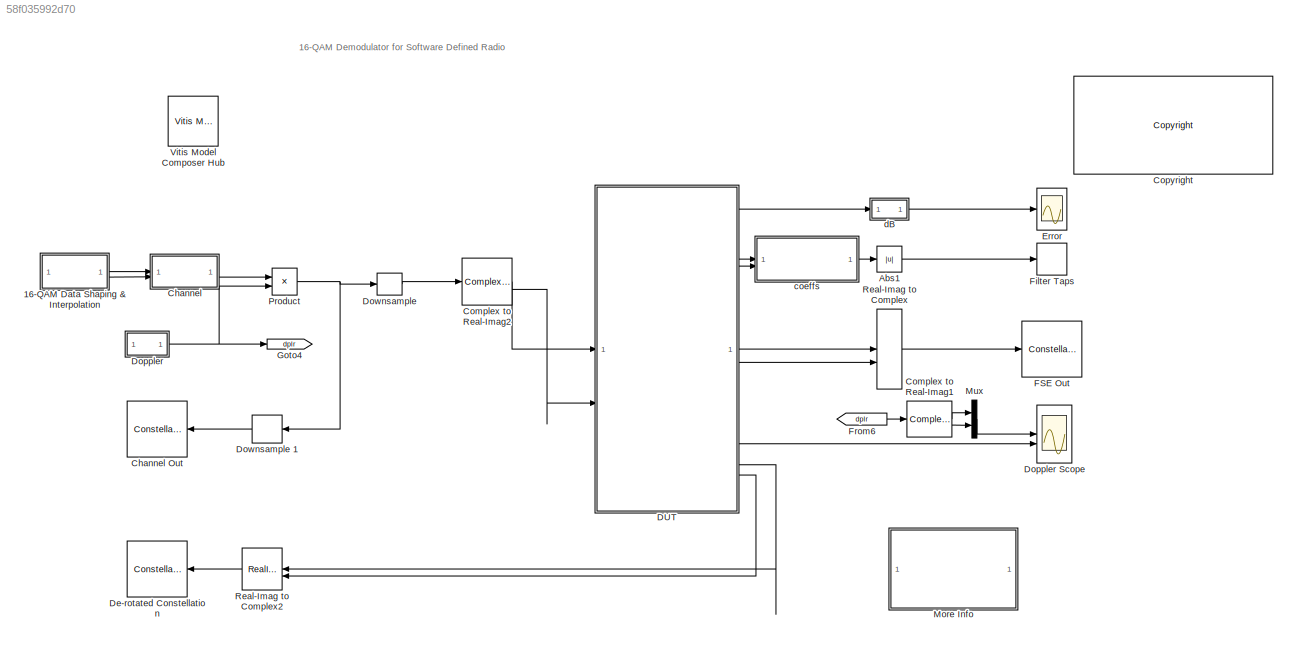
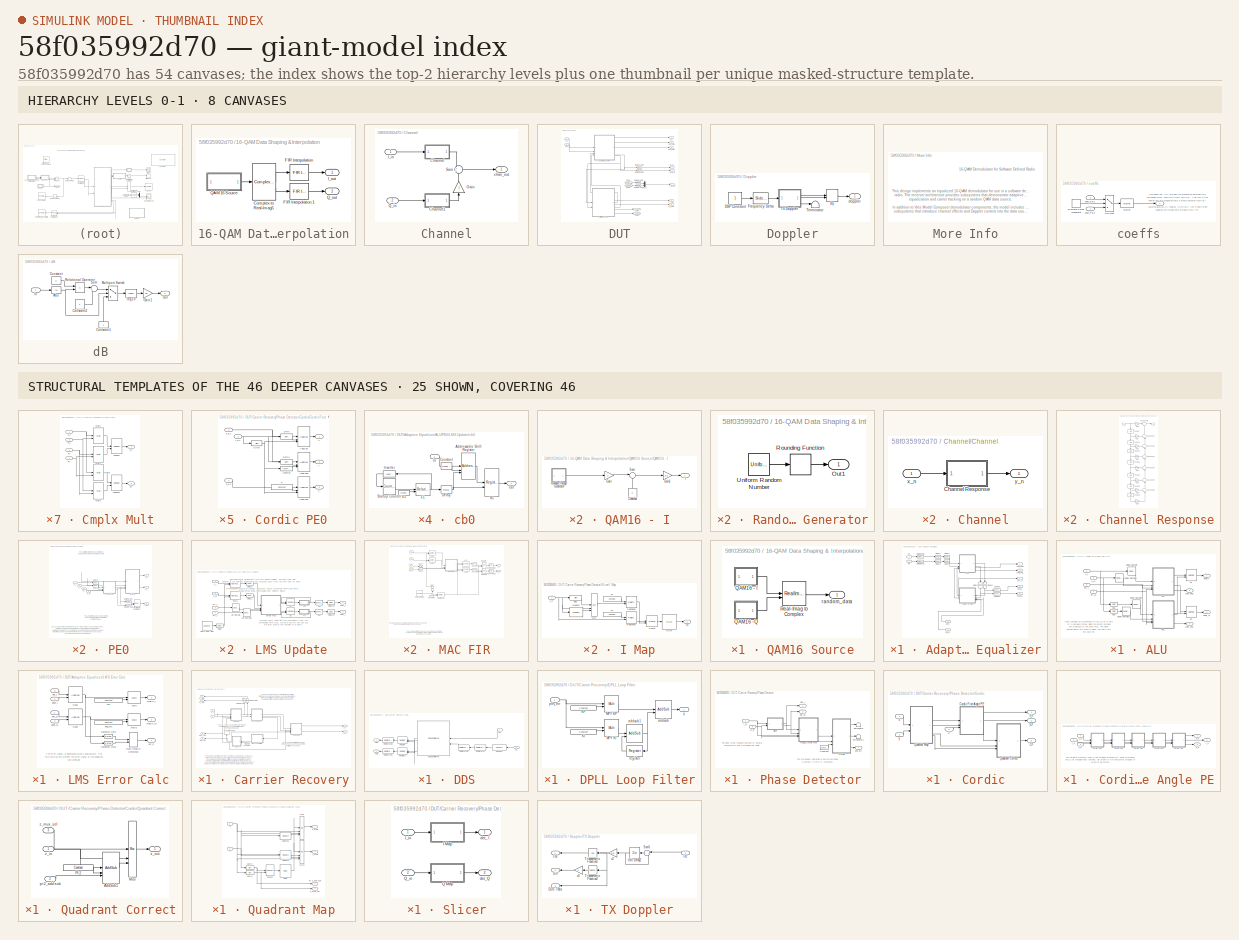
[diagram: thumbnail index - top-2 hierarchy levels (8 canvases) + 25 structural-template representatives of the remaining 46 canvases]
MODEL slx_58f035992d70
KIND model
CONFIG AbsTol = auto
CONFIG EnableMultiTasking = on
CONFIG FixedStep = auto
CONFIG MaxStep = auto
CONFIG MinStep = auto
CONFIG PreLoadFcn = QAM16_PreLoadFcn
CONFIG RelTol = 1e-3
CONFIG SampleTimeConstraint = Unconstrained
CONFIG SolverName = ode45
CONFIG StartTime = 0.0
CONFIG StopTime = 5000
BLOCK [SubSystem] 16-QAM Data Shaping & Interpolation
BLOCK [ComplexToRealImag] 16-QAM Data Shaping & Interpolation/Complex to Real-Imag5
BLOCK [Reference] 16-QAM Data Shaping & Interpolation/FIR Interpolation   REF=dspmlti4/FIR
Interpolation
  NameLocation = top
  SourceBlock = dspmlti4/FIR\nInterpolation
  SourceType = FIR Interpolation
  UserDataPersistent = on
BLOCK [Reference] 16-QAM Data Shaping & Interpolation/FIR Interpolation 1  REF=dspmlti4/FIR
Interpolation
  SourceBlock = dspmlti4/FIR\nInterpolation
  SourceType = FIR Interpolation
  UserDataPersistent = on
BLOCK [Outport] 16-QAM Data Shaping & Interpolation/I_out
  VectorParamsAs1DForOutWhenUnconnected = off
BLOCK [SubSystem] 16-QAM Data Shaping & Interpolation/QAM16 Source
BLOCK [SubSystem] 16-QAM Data Shaping & Interpolation/QAM16 Source/QAM16 - I
BLOCK [Constant] 16-QAM Data Shaping & Interpolation/QAM16 Source/QAM16 - I/Constant
  NameLocation = right
  Value = 3
BLOCK [Gain] 16-QAM Data Shaping & Interpolation/QAM16 Source/QAM16 - I/Gain
  Gain = 2
  OutDataTypeStr = Inherit: Same as input
  ParamDataTypeStr = Inherit: Same as input
  SaturateOnIntegerOverflow = on
BLOCK [Gain] 16-QAM Data Shaping & Interpolation/QAM16 Source/QAM16 - I/Gain1
  Gain = 1/3
  OutDataTypeStr = Inherit: Same as input
  ParamDataTypeStr = Inherit: Same as input
  SaturateOnIntegerOverflow = on
BLOCK [Outport] 16-QAM Data Shaping & Interpolation/QAM16 Source/QAM16 - I/I
  VectorParamsAs1DForOutWhenUnconnected = off
BLOCK [SubSystem] 16-QAM Data Shaping & Interpolation/QAM16 Source/QAM16 - I/Random Integer Generator
BLOCK [Outport] 16-QAM Data Shaping & Interpolation/QAM16 Source/QAM16 - I/Random Integer Generator/Out1
  VectorParamsAs1DForOutWhenUnconnected = off
BLOCK [Rounding] 16-QAM Data Shaping & Interpolation/QAM16 Source/QAM16 - I/Random Integer Generator/Rounding Function
  Operator = round
BLOCK [UniformRandomNumber] 16-QAM Data Shaping & Interpolation/QAM16 Source/QAM16 - I/Random Integer Generator/Uniform Random Number
  Maximum = M-1 + 0.49
  Minimum = -0.49
  SampleTime = Ts
  Seed = seed
BLOCK [Sum] 16-QAM Data Shaping & Interpolation/QAM16 Source/QAM16 - I/Sum
  InputSameDT = on
  Inputs = |+-
  OutDataTypeStr = Inherit: Same as first input
  SaturateOnIntegerOverflow = on
BLOCK [SubSystem] 16-QAM Data Shaping & Interpolation/QAM16 Source/QAM16 -Q
BLOCK [Constant] 16-QAM Data Shaping & Interpolation/QAM16 Source/QAM16 -Q/Constant
  NameLocation = right
  Value = 3
BLOCK [Gain] 16-QAM Data Shaping & Interpolation/QAM16 Source/QAM16 -Q/Gain
  Gain = 2
  OutDataTypeStr = Inherit: Same as input
  ParamDataTypeStr = Inherit: Same as input
  SaturateOnIntegerOverflow = on
BLOCK [Gain] 16-QAM Data Shaping & Interpolation/QAM16 Source/QAM16 -Q/Gain1
  Gain = 1/3
  OutDataTypeStr = Inherit: Same as input
  ParamDataTypeStr = Inherit: Same as input
  SaturateOnIntegerOverflow = on
BLOCK [Outport] 16-QAM Data Shaping & Interpolation/QAM16 Source/QAM16 -Q/Q
  VectorParamsAs1DForOutWhenUnconnected = off
BLOCK [SubSystem] 16-QAM Data Shaping & Interpolation/QAM16 Source/QAM16 -Q/Random Integer Generator
BLOCK [Outport] 16-QAM Data Shaping & Interpolation/QAM16 Source/QAM16 -Q/Random Integer Generator/Out1
  VectorParamsAs1DForOutWhenUnconnected = off
BLOCK [Rounding] 16-QAM Data Shaping & Interpolation/QAM16 Source/QAM16 -Q/Random Integer Generator/Rounding Function
  Operator = round
BLOCK [UniformRandomNumber] 16-QAM Data Shaping & Interpolation/QAM16 Source/QAM16 -Q/Random Integer Generator/Uniform Random Number
  Maximum = M-1 + 0.49
  Minimum = -0.49
  SampleTime = Ts
  Seed = seed
BLOCK [Sum] 16-QAM Data Shaping & Interpolation/QAM16 Source/QAM16 -Q/Sum
  InputSameDT = on
  Inputs = |+-
  OutDataTypeStr = Inherit: Same as first input
  SaturateOnIntegerOverflow = on
BLOCK [RealImagToComplex] 16-QAM Data Shaping & Interpolation/QAM16 Source/Real-Imag to Complex
BLOCK [Outport] 16-QAM Data Shaping & Interpolation/QAM16 Source/random_data
  VectorParamsAs1DForOutWhenUnconnected = off
BLOCK [Outport] 16-QAM Data Shaping & Interpolation/Q_out
  Port = 2
  VectorParamsAs1DForOutWhenUnconnected = off
BLOCK [Abs] Abs1
BLOCK [SubSystem] Channel
BLOCK [ConstellationDiagram] Channel Out
  DefaultConfigurationName = comm.scopes.ConstellationDiagramBlockCfg
  GraphicalSettings = {"GraphicalSettings":{"Style":{"AuxLineProperties":"struct","AxesProperties":"struct","Color":"[1 1 0.0666666666666667]","CurrentConfiguration":"extmgr.ConfigurationSet","GrReferenceConstellation":"16-QAM","LineColor":"[1 1 0.0666666666666667]","LineProperties":"struct","LineStyle":"-","LineWidth":"0.5","Marker":".","MarkerEdgeColor":"auto","MarkerFaceColor":"none","MarkerSize":"6","PhaseOffset":"...<+676ch>
  ReferenceConstellation = 16-QAM
  ScopeFrameLocation = window
  ScopeSpecificationString = comm.scopes.ConstellationDiagramBlockCfg('CurrentConfiguration', extmgr.ConfigurationSet(extmgr.Configuration('Core','General UI',true),extmgr.Configuration('Core','Source UI',true),extmgr.Configuration('Sources','WiredSimulink',true),extmgr.Configuration('Sources','SimulinkEvent',false),extmgr.Configuration('Sources','Simulink',false),extmgr.Configuration('Sources','Streaming',false),extmgr.Confi...<+1850ch>
  ShowReferenceConstellation = off
  SymbolsToDisplay = 1000
  SymbolsToDisplaySource = Property
  Visible = on
  WasSavedAsWebScope = on
  WindowPosition = [510.000000,97.000000,342.000000,335.000000,]
BLOCK [SubSystem] Channel/Channel
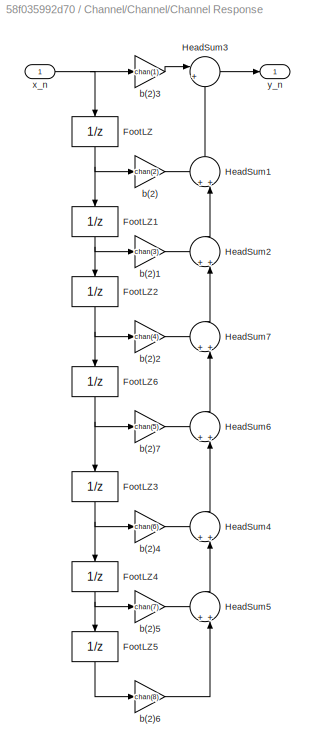
BLOCK [SubSystem] Channel/Channel/Channel Response
BLOCK [UnitDelay] Channel/Channel/Channel Response/FootLZ
  HasFrameUpgradeWarning = on
  NameLocation = right
BLOCK [UnitDelay] Channel/Channel/Channel Response/FootLZ1
  HasFrameUpgradeWarning = on
  NameLocation = right
  SampleTime = -1
BLOCK [UnitDelay] Channel/Channel/Channel Response/FootLZ2
  HasFrameUpgradeWarning = on
  NameLocation = right
  SampleTime = -1
BLOCK [UnitDelay] Channel/Channel/Channel Response/FootLZ3
  HasFrameUpgradeWarning = on
  NameLocation = right
BLOCK [UnitDelay] Channel/Channel/Channel Response/FootLZ4
  HasFrameUpgradeWarning = on
  NameLocation = right
  SampleTime = -1
BLOCK [UnitDelay] Channel/Channel/Channel Response/FootLZ5
  HasFrameUpgradeWarning = on
  NameLocation = right
  SampleTime = -1
BLOCK [UnitDelay] Channel/Channel/Channel Response/FootLZ6
  HasFrameUpgradeWarning = on
  NameLocation = right
  SampleTime = -1
BLOCK [Sum] Channel/Channel/Channel Response/HeadSum1
  InputSameDT = on
  Inputs = ++|
  NameLocation = right
  OutDataTypeStr = Inherit: Same as first input
  SaturateOnIntegerOverflow = on
BLOCK [Sum] Channel/Channel/Channel Response/HeadSum2
  InputSameDT = on
  Inputs = ++|
  NameLocation = right
  OutDataTypeStr = Inherit: Same as first input
  SaturateOnIntegerOverflow = on
BLOCK [Sum] Channel/Channel/Channel Response/HeadSum3
  InputSameDT = on
  Inputs = |++
  OutDataTypeStr = Inherit: Same as first input
  SaturateOnIntegerOverflow = on
BLOCK [Sum] Channel/Channel/Channel Response/HeadSum4
  InputSameDT = on
  Inputs = ++|
  NameLocation = right
  OutDataTypeStr = Inherit: Same as first input
  SaturateOnIntegerOverflow = on
BLOCK [Sum] Channel/Channel/Channel Response/HeadSum5
  InputSameDT = on
  Inputs = ++|
  NameLocation = right
  OutDataTypeStr = Inherit: Same as first input
  SaturateOnIntegerOverflow = on
BLOCK [Sum] Channel/Channel/Channel Response/HeadSum6
  InputSameDT = on
  Inputs = ++|
  NameLocation = right
  OutDataTypeStr = Inherit: Same as first input
  SaturateOnIntegerOverflow = on
BLOCK [Sum] Channel/Channel/Channel Response/HeadSum7
  InputSameDT = on
  Inputs = ++|
  NameLocation = right
  OutDataTypeStr = Inherit: Same as first input
  SaturateOnIntegerOverflow = on
BLOCK [Gain] Channel/Channel/Channel Response/b(2)
  Gain = chan(2)
  OutDataTypeStr = Inherit: Same as input
  ParamDataTypeStr = Inherit: Same as input
  SaturateOnIntegerOverflow = on
BLOCK [Gain] Channel/Channel/Channel Response/b(2)1
  Gain = chan(3)
  OutDataTypeStr = Inherit: Same as input
  ParamDataTypeStr = Inherit: Same as input
  SaturateOnIntegerOverflow = on
BLOCK [Gain] Channel/Channel/Channel Response/b(2)2
  Gain = chan(4)
  OutDataTypeStr = Inherit: Same as input
  ParamDataTypeStr = Inherit: Same as input
  SaturateOnIntegerOverflow = on
BLOCK [Gain] Channel/Channel/Channel Response/b(2)3
  Gain = chan(1)
  OutDataTypeStr = Inherit: Same as input
  ParamDataTypeStr = Inherit: Same as input
  SaturateOnIntegerOverflow = on
BLOCK [Gain] Channel/Channel/Channel Response/b(2)4
  Gain = chan(6)
  OutDataTypeStr = Inherit: Same as input
  ParamDataTypeStr = Inherit: Same as input
  SaturateOnIntegerOverflow = on
BLOCK [Gain] Channel/Channel/Channel Response/b(2)5
  Gain = chan(7)
  OutDataTypeStr = Inherit: Same as input
  ParamDataTypeStr = Inherit: Same as input
  SaturateOnIntegerOverflow = on
BLOCK [Gain] Channel/Channel/Channel Response/b(2)6
  Gain = chan(8)
  OutDataTypeStr = Inherit: Same as input
  ParamDataTypeStr = Inherit: Same as input
  SaturateOnIntegerOverflow = on
BLOCK [Gain] Channel/Channel/Channel Response/b(2)7
  Gain = chan(5)
  OutDataTypeStr = Inherit: Same as input
  ParamDataTypeStr = Inherit: Same as input
  SaturateOnIntegerOverflow = on
BLOCK [Inport] Channel/Channel/Channel Response/x_n
BLOCK [Outport] Channel/Channel/Channel Response/y_n
  VectorParamsAs1DForOutWhenUnconnected = off
BLOCK [Inport] Channel/Channel/x_n
BLOCK [Outport] Channel/Channel/y_n
  VectorParamsAs1DForOutWhenUnconnected = off
BLOCK [SubSystem] Channel/Channel1
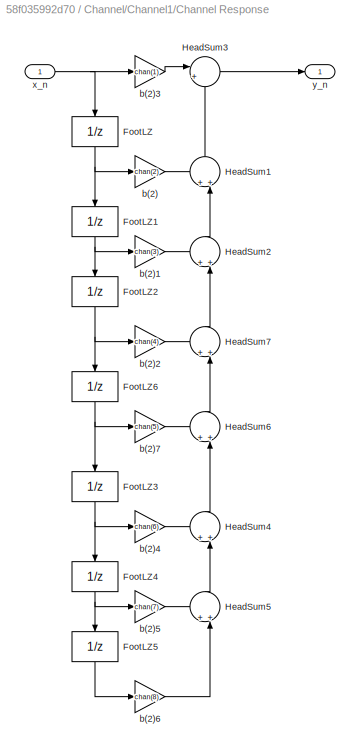
BLOCK [SubSystem] Channel/Channel1/Channel Response
BLOCK [UnitDelay] Channel/Channel1/Channel Response/FootLZ
  HasFrameUpgradeWarning = on
  NameLocation = right
BLOCK [UnitDelay] Channel/Channel1/Channel Response/FootLZ1
  HasFrameUpgradeWarning = on
  NameLocation = right
  SampleTime = -1
BLOCK [UnitDelay] Channel/Channel1/Channel Response/FootLZ2
  HasFrameUpgradeWarning = on
  NameLocation = right
  SampleTime = -1
BLOCK [UnitDelay] Channel/Channel1/Channel Response/FootLZ3
  HasFrameUpgradeWarning = on
  NameLocation = right
BLOCK [UnitDelay] Channel/Channel1/Channel Response/FootLZ4
  HasFrameUpgradeWarning = on
  NameLocation = right
  SampleTime = -1
BLOCK [UnitDelay] Channel/Channel1/Channel Response/FootLZ5
  HasFrameUpgradeWarning = on
  NameLocation = right
  SampleTime = -1
BLOCK [UnitDelay] Channel/Channel1/Channel Response/FootLZ6
  HasFrameUpgradeWarning = on
  NameLocation = right
  SampleTime = -1
BLOCK [Sum] Channel/Channel1/Channel Response/HeadSum1
  InputSameDT = on
  Inputs = ++|
  NameLocation = right
  OutDataTypeStr = Inherit: Same as first input
  SaturateOnIntegerOverflow = on
BLOCK [Sum] Channel/Channel1/Channel Response/HeadSum2
  InputSameDT = on
  Inputs = ++|
  NameLocation = right
  OutDataTypeStr = Inherit: Same as first input
  SaturateOnIntegerOverflow = on
BLOCK [Sum] Channel/Channel1/Channel Response/HeadSum3
  InputSameDT = on
  Inputs = |++
  OutDataTypeStr = Inherit: Same as first input
  SaturateOnIntegerOverflow = on
BLOCK [Sum] Channel/Channel1/Channel Response/HeadSum4
  InputSameDT = on
  Inputs = ++|
  NameLocation = right
  OutDataTypeStr = Inherit: Same as first input
  SaturateOnIntegerOverflow = on
BLOCK [Sum] Channel/Channel1/Channel Response/HeadSum5
  InputSameDT = on
  Inputs = ++|
  NameLocation = right
  OutDataTypeStr = Inherit: Same as first input
  SaturateOnIntegerOverflow = on
BLOCK [Sum] Channel/Channel1/Channel Response/HeadSum6
  InputSameDT = on
  Inputs = ++|
  NameLocation = right
  OutDataTypeStr = Inherit: Same as first input
  SaturateOnIntegerOverflow = on
BLOCK [Sum] Channel/Channel1/Channel Response/HeadSum7
  InputSameDT = on
  Inputs = ++|
  NameLocation = right
  OutDataTypeStr = Inherit: Same as first input
  SaturateOnIntegerOverflow = on
BLOCK [Gain] Channel/Channel1/Channel Response/b(2)
  Gain = chan(2)
  OutDataTypeStr = Inherit: Same as input
  ParamDataTypeStr = Inherit: Same as input
  SaturateOnIntegerOverflow = on
BLOCK [Gain] Channel/Channel1/Channel Response/b(2)1
  Gain = chan(3)
  OutDataTypeStr = Inherit: Same as input
  ParamDataTypeStr = Inherit: Same as input
  SaturateOnIntegerOverflow = on
BLOCK [Gain] Channel/Channel1/Channel Response/b(2)2
  Gain = chan(4)
  OutDataTypeStr = Inherit: Same as input
  ParamDataTypeStr = Inherit: Same as input
  SaturateOnIntegerOverflow = on
BLOCK [Gain] Channel/Channel1/Channel Response/b(2)3
  Gain = chan(1)
  OutDataTypeStr = Inherit: Same as input
  ParamDataTypeStr = Inherit: Same as input
  SaturateOnIntegerOverflow = on
BLOCK [Gain] Channel/Channel1/Channel Response/b(2)4
  Gain = chan(6)
  OutDataTypeStr = Inherit: Same as input
  ParamDataTypeStr = Inherit: Same as input
  SaturateOnIntegerOverflow = on
BLOCK [Gain] Channel/Channel1/Channel Response/b(2)5
  Gain = chan(7)
  OutDataTypeStr = Inherit: Same as input
  ParamDataTypeStr = Inherit: Same as input
  SaturateOnIntegerOverflow = on
BLOCK [Gain] Channel/Channel1/Channel Response/b(2)6
  Gain = chan(8)
  OutDataTypeStr = Inherit: Same as input
  ParamDataTypeStr = Inherit: Same as input
  SaturateOnIntegerOverflow = on
BLOCK [Gain] Channel/Channel1/Channel Response/b(2)7
  Gain = chan(5)
  OutDataTypeStr = Inherit: Same as input
  ParamDataTypeStr = Inherit: Same as input
  SaturateOnIntegerOverflow = on
BLOCK [Inport] Channel/Channel1/Channel Response/x_n
BLOCK [Outport] Channel/Channel1/Channel Response/y_n
  VectorParamsAs1DForOutWhenUnconnected = off
BLOCK [Inport] Channel/Channel1/x_n
BLOCK [Outport] Channel/Channel1/y_n
  VectorParamsAs1DForOutWhenUnconnected = off
BLOCK [Gain] Channel/Gain
  Gain = j
  NameLocation = right
  OutDataTypeStr = Inherit: Same as input
  ParamDataTypeStr = Inherit: Same as input
  SaturateOnIntegerOverflow = on
BLOCK [Inport] Channel/I_in
BLOCK [Inport] Channel/Q_in
  Port = 2
BLOCK [Sum] Channel/Sum
  InputSameDT = on
  OutDataTypeStr = Inherit: Same as first input
  SaturateOnIntegerOverflow = on
BLOCK [Outport] Channel/chan_out
  VectorParamsAs1DForOutWhenUnconnected = off
BLOCK [ComplexToRealImag] Complex to Real-Imag1
  NameLocation = top
BLOCK [ComplexToRealImag] Complex to Real-Imag2
BLOCK [Reference] <copyright redacted>
  SourceBlock = hdlUtilities/<copyright redacted>
  SourceType = Xilinx <copyright redacted>
BLOCK [SubSystem] DUT
BLOCK [SubSystem] DUT/Adaptive Equalizer
BLOCK [SubSystem] DUT/Adaptive Equalizer/ALU
BLOCK [Reference] DUT/Adaptive Equalizer/ALU/Down Sample  REF=hdlBasic/Down Sample
  SourceBlock = hdlBasic/Down Sample
  SourceType = Down Sampler Block
BLOCK [Reference] DUT/Adaptive Equalizer/ALU/Down Sample1  REF=hdlBasic/Down Sample
  SourceBlock = hdlBasic/Down Sample
  SourceType = Down Sampler Block
BLOCK [Reference] DUT/Adaptive Equalizer/ALU/Down Sample2  REF=hdlBasic/Down Sample
  SourceBlock = hdlBasic/Down Sample
  SourceType = Down Sampler Block
BLOCK [Reference] DUT/Adaptive Equalizer/ALU/Down Sample3  REF=hdlBasic/Down Sample
  SourceBlock = hdlBasic/Down Sample
  SourceType = Down Sampler Block
BLOCK [SubSystem] DUT/Adaptive Equalizer/ALU/PE0
BLOCK [Reference] DUT/Adaptive Equalizer/ALU/PE0/Delay3  REF=hdlBasic/Delay
  SourceBlock = hdlBasic/Delay
  SourceType = Delay Block
BLOCK [Reference] DUT/Adaptive Equalizer/ALU/PE0/Delay4  REF=hdlBasic/Delay
  SourceBlock = hdlBasic/Delay
  SourceType = Delay Block
BLOCK [Reference] DUT/Adaptive Equalizer/ALU/PE0/Gateway Out  REF=hdlBasic/Gateway Out
  SourceBlock = hdlBasic/Gateway Out
  SourceType = Gateway Out Block
BLOCK [Reference] DUT/Adaptive Equalizer/ALU/PE0/Gateway Out1  REF=hdlBasic/Gateway Out
  SourceBlock = hdlBasic/Gateway Out
  SourceType = Gateway Out Block
BLOCK [SubSystem] DUT/Adaptive Equalizer/ALU/PE0/LMS Update
BLOCK [SubSystem] DUT/Adaptive Equalizer/ALU/PE0/LMS Update/Cmplx Mult
BLOCK [Reference] DUT/Adaptive Equalizer/ALU/PE0/LMS Update/Cmplx Mult/AddSub  REF=hdlBasic/AddSub
  SourceBlock = hdlBasic/AddSub
  SourceType = Adder/Subtracter Block
BLOCK [Reference] DUT/Adaptive Equalizer/ALU/PE0/LMS Update/Cmplx Mult/AddSub1  REF=hdlBasic/AddSub
  SourceBlock = hdlBasic/AddSub
  SourceType = Adder/Subtracter Block
BLOCK [Reference] DUT/Adaptive Equalizer/ALU/PE0/LMS Update/Cmplx Mult/Mult1  REF=hdlBasic/Mult
  SourceBlock = hdlBasic/Mult
  SourceType = Multiplier Block
BLOCK [Reference] DUT/Adaptive Equalizer/ALU/PE0/LMS Update/Cmplx Mult/Mult2  REF=hdlBasic/Mult
  SourceBlock = hdlBasic/Mult
  SourceType = Multiplier Block
BLOCK [Reference] DUT/Adaptive Equalizer/ALU/PE0/LMS Update/Cmplx Mult/Mult3  REF=hdlBasic/Mult
  SourceBlock = hdlBasic/Mult
  SourceType = Multiplier Block
BLOCK [Reference] DUT/Adaptive Equalizer/ALU/PE0/LMS Update/Cmplx Mult/Mult4  REF=hdlBasic/Mult
  SourceBlock = hdlBasic/Mult
  SourceType = Multiplier Block
BLOCK [Inport] DUT/Adaptive Equalizer/ALU/PE0/LMS Update/Cmplx Mult/a_i
  Port = 2
BLOCK [Inport] DUT/Adaptive Equalizer/ALU/PE0/LMS Update/Cmplx Mult/a_r
BLOCK [Inport] DUT/Adaptive Equalizer/ALU/PE0/LMS Update/Cmplx Mult/b_i
  Port = 4
BLOCK [Inport] DUT/Adaptive Equalizer/ALU/PE0/LMS Update/Cmplx Mult/b_r
  Port = 3
BLOCK [Outport] DUT/Adaptive Equalizer/ALU/PE0/LMS Update/Cmplx Mult/p_i
  Port = 2
  VectorParamsAs1DForOutWhenUnconnected = off
BLOCK [Outport] DUT/Adaptive Equalizer/ALU/PE0/LMS Update/Cmplx Mult/p_r
  VectorParamsAs1DForOutWhenUnconnected = off
BLOCK [Reference] DUT/Adaptive Equalizer/ALU/PE0/LMS Update/Data Addr Gen  REF=hdlBasic/Counter
  SourceBlock = hdlBasic/Counter
  SourceType = Counter Block
BLOCK [Reference] DUT/Adaptive Equalizer/ALU/PE0/LMS Update/Delay  REF=hdlBasic/Delay
  SourceBlock = hdlBasic/Delay
  SourceType = Delay Block
BLOCK [Reference] DUT/Adaptive Equalizer/ALU/PE0/LMS Update/Delay1  REF=hdlBasic/Delay
  SourceBlock = hdlBasic/Delay
  SourceType = Delay Block
BLOCK [Reference] DUT/Adaptive Equalizer/ALU/PE0/LMS Update/Delay19  REF=hdlBasic/Delay
  SourceBlock = hdlBasic/Delay
  SourceType = Delay Block
BLOCK [Reference] DUT/Adaptive Equalizer/ALU/PE0/LMS Update/Delay20  REF=hdlBasic/Delay
  SourceBlock = hdlBasic/Delay
  SourceType = Delay Block
BLOCK [Reference] DUT/Adaptive Equalizer/ALU/PE0/LMS Update/Delay3  REF=hdlBasic/Delay
  SourceBlock = hdlBasic/Delay
  SourceType = Delay Block
BLOCK [Reference] DUT/Adaptive Equalizer/ALU/PE0/LMS Update/RVM0  REF=hdlBasic/Addressable Shift Register
  SourceBlock = hdlBasic/Addressable Shift Register
  SourceType = Addressable Shift Register Block
BLOCK [Reference] DUT/Adaptive Equalizer/ALU/PE0/LMS Update/RVM1  REF=hdlBasic/Addressable Shift Register
  SourceBlock = hdlBasic/Addressable Shift Register
  SourceType = Addressable Shift Register Block
BLOCK [Reference] DUT/Adaptive Equalizer/ALU/PE0/LMS Update/Up Sample  REF=hdlBasic/Up Sample
  SourceBlock = hdlBasic/Up Sample
  SourceType = Up Sampler Block
BLOCK [Reference] DUT/Adaptive Equalizer/ALU/PE0/LMS Update/Up Sample1  REF=hdlBasic/Up Sample
  SourceBlock = hdlBasic/Up Sample
  SourceType = Up Sampler Block
BLOCK [Reference] DUT/Adaptive Equalizer/ALU/PE0/LMS Update/a1  REF=hdlBasic/AddSub
  NameLocation = top
  SourceBlock = hdlBasic/AddSub
  SourceType = Adder/Subtracter Block
BLOCK [Reference] DUT/Adaptive Equalizer/ALU/PE0/LMS Update/a2  REF=hdlBasic/AddSub
  NameLocation = top
  SourceBlock = hdlBasic/AddSub
  SourceType = Adder/Subtracter Block
BLOCK [Reference] DUT/Adaptive Equalizer/ALU/PE0/LMS Update/c3  REF=hdlBasic/Convert
  NameLocation = top
  SourceBlock = hdlBasic/Convert
  SourceType = Type Converter Block
BLOCK [Reference] DUT/Adaptive Equalizer/ALU/PE0/LMS Update/c4  REF=hdlBasic/Convert
  SourceBlock = hdlBasic/Convert
  SourceType = Type Converter Block
BLOCK [SubSystem] DUT/Adaptive Equalizer/ALU/PE0/LMS Update/cb0
BLOCK [Reference] DUT/Adaptive Equalizer/ALU/PE0/LMS Update/cb0/Addressable Shift Register  REF=hdlBasic/Addressable Shift Register
  SourceBlock = hdlBasic/Addressable Shift Register
  SourceType = Addressable Shift Register Block
BLOCK [Reference] DUT/Adaptive Equalizer/ALU/PE0/LMS Update/cb0/Constant  REF=hdlBasic/Constant
  SourceBlock = hdlBasic/Constant
  SourceType = Constant Block Block
BLOCK [Reference] DUT/Adaptive Equalizer/ALU/PE0/LMS Update/cb0/Delay  REF=hdlBasic/Delay
  SourceBlock = hdlBasic/Delay
  SourceType = Delay Block
BLOCK [Reference] DUT/Adaptive Equalizer/ALU/PE0/LMS Update/cb0/F1  REF=hdlBasic/Relational
  SourceBlock = hdlBasic/Relational
  SourceType = Arithmetic Relational Operator Block
BLOCK [Inport] DUT/Adaptive Equalizer/ALU/PE0/LMS Update/cb0/In
BLOCK [Reference] DUT/Adaptive Equalizer/ALU/PE0/LMS Update/cb0/Inverter  REF=hdlBasic/Inverter
  NameLocation = top
  SourceBlock = hdlBasic/Inverter
  SourceType = Inverter Block
BLOCK [Reference] DUT/Adaptive Equalizer/ALU/PE0/LMS Update/cb0/K1  REF=hdlBasic/Constant
  SourceBlock = hdlBasic/Constant
  SourceType = Constant Block Block
BLOCK [Outport] DUT/Adaptive Equalizer/ALU/PE0/LMS Update/cb0/Out
  VectorParamsAs1DForOutWhenUnconnected = off
BLOCK [Reference] DUT/Adaptive Equalizer/ALU/PE0/LMS Update/cb0/R5  REF=hdlBasic/Register
  SourceBlock = hdlBasic/Register
  SourceType = Register Block
BLOCK [Reference] DUT/Adaptive Equalizer/ALU/PE0/LMS Update/cb0/Startup Counter  REF=hdlBasic/Counter
  SourceBlock = hdlBasic/Counter
  SourceType = Counter Block
BLOCK [SubSystem] DUT/Adaptive Equalizer/ALU/PE0/LMS Update/cb1
BLOCK [Reference] DUT/Adaptive Equalizer/ALU/PE0/LMS Update/cb1/Addressable Shift Register  REF=hdlBasic/Addressable Shift Register
  SourceBlock = hdlBasic/Addressable Shift Register
  SourceType = Addressable Shift Register Block
BLOCK [Reference] DUT/Adaptive Equalizer/ALU/PE0/LMS Update/cb1/Constant  REF=hdlBasic/Constant
  SourceBlock = hdlBasic/Constant
  SourceType = Constant Block Block
BLOCK [Reference] DUT/Adaptive Equalizer/ALU/PE0/LMS Update/cb1/Delay  REF=hdlBasic/Delay
  SourceBlock = hdlBasic/Delay
  SourceType = Delay Block
BLOCK [Reference] DUT/Adaptive Equalizer/ALU/PE0/LMS Update/cb1/F1  REF=hdlBasic/Relational
  SourceBlock = hdlBasic/Relational
  SourceType = Arithmetic Relational Operator Block
BLOCK [Inport] DUT/Adaptive Equalizer/ALU/PE0/LMS Update/cb1/In
BLOCK [Reference] DUT/Adaptive Equalizer/ALU/PE0/LMS Update/cb1/Inverter  REF=hdlBasic/Inverter
  NameLocation = top
  SourceBlock = hdlBasic/Inverter
  SourceType = Inverter Block
BLOCK [Reference] DUT/Adaptive Equalizer/ALU/PE0/LMS Update/cb1/K1  REF=hdlBasic/Constant
  SourceBlock = hdlBasic/Constant
  SourceType = Constant Block Block
BLOCK [Outport] DUT/Adaptive Equalizer/ALU/PE0/LMS Update/cb1/Out
  VectorParamsAs1DForOutWhenUnconnected = off
BLOCK [Reference] DUT/Adaptive Equalizer/ALU/PE0/LMS Update/cb1/R5  REF=hdlBasic/Register
  SourceBlock = hdlBasic/Register
  SourceType = Register Block
BLOCK [Reference] DUT/Adaptive Equalizer/ALU/PE0/LMS Update/cb1/Startup Counter  REF=hdlBasic/Counter
  SourceBlock = hdlBasic/Counter
  SourceType = Counter Block
BLOCK [Outport] DUT/Adaptive Equalizer/ALU/PE0/LMS Update/coef_i
  Port = 2
  VectorParamsAs1DForOutWhenUnconnected = off
BLOCK [Outport] DUT/Adaptive Equalizer/ALU/PE0/LMS Update/coef_r
  VectorParamsAs1DForOutWhenUnconnected = off
BLOCK [Inport] DUT/Adaptive Equalizer/ALU/PE0/LMS Update/err_i
  Port = 4
BLOCK [Inport] DUT/Adaptive Equalizer/ALU/PE0/LMS Update/err_r
  NameLocation = top
  Port = 3
BLOCK [Inport] DUT/Adaptive Equalizer/ALU/PE0/LMS Update/x_I
BLOCK [Inport] DUT/Adaptive Equalizer/ALU/PE0/LMS Update/x_Q
  Port = 2
BLOCK [SubSystem] DUT/Adaptive Equalizer/ALU/PE0/MAC FIR
BLOCK [Reference] DUT/Adaptive Equalizer/ALU/PE0/MAC FIR/ASR1  REF=hdlBasic/Addressable Shift Register
  SourceBlock = hdlBasic/Addressable Shift Register
  SourceType = Addressable Shift Register Block
BLOCK [Reference] DUT/Adaptive Equalizer/ALU/PE0/MAC FIR/ASR2  REF=hdlBasic/Addressable Shift Register
  SourceBlock = hdlBasic/Addressable Shift Register
  SourceType = Addressable Shift Register Block
BLOCK [Reference] DUT/Adaptive Equalizer/ALU/PE0/MAC FIR/Accr  REF=hdlBasic/Accumulator
  NameLocation = top
  SourceBlock = hdlBasic/Accumulator
  SourceType = Accumulator Block
BLOCK [Reference] DUT/Adaptive Equalizer/ALU/PE0/MAC FIR/Accr1  REF=hdlBasic/Accumulator
  NameLocation = top
  SourceBlock = hdlBasic/Accumulator
  SourceType = Accumulator Block
BLOCK [SubSystem] DUT/Adaptive Equalizer/ALU/PE0/MAC FIR/Cmplx Mult
BLOCK [Reference] DUT/Adaptive Equalizer/ALU/PE0/MAC FIR/Cmplx Mult/AddSub  REF=hdlBasic/AddSub
  SourceBlock = hdlBasic/AddSub
  SourceType = Adder/Subtracter Block
BLOCK [Reference] DUT/Adaptive Equalizer/ALU/PE0/MAC FIR/Cmplx Mult/AddSub1  REF=hdlBasic/AddSub
  SourceBlock = hdlBasic/AddSub
  SourceType = Adder/Subtracter Block
BLOCK [Reference] DUT/Adaptive Equalizer/ALU/PE0/MAC FIR/Cmplx Mult/Mult  REF=hdlBasic/Mult
  SourceBlock = hdlBasic/Mult
  SourceType = Multiplier Block
BLOCK [Reference] DUT/Adaptive Equalizer/ALU/PE0/MAC FIR/Cmplx Mult/Mult1  REF=hdlBasic/Mult
  SourceBlock = hdlBasic/Mult
  SourceType = Multiplier Block
BLOCK [Reference] DUT/Adaptive Equalizer/ALU/PE0/MAC FIR/Cmplx Mult/Mult2  REF=hdlBasic/Mult
  SourceBlock = hdlBasic/Mult
  SourceType = Multiplier Block
BLOCK [Reference] DUT/Adaptive Equalizer/ALU/PE0/MAC FIR/Cmplx Mult/Mult3  REF=hdlBasic/Mult
  SourceBlock = hdlBasic/Mult
  SourceType = Multiplier Block
BLOCK [Inport] DUT/Adaptive Equalizer/ALU/PE0/MAC FIR/Cmplx Mult/a_i
  Port = 2
BLOCK [Inport] DUT/Adaptive Equalizer/ALU/PE0/MAC FIR/Cmplx Mult/a_r
BLOCK [Inport] DUT/Adaptive Equalizer/ALU/PE0/MAC FIR/Cmplx Mult/b_i
  Port = 4
BLOCK [Inport] DUT/Adaptive Equalizer/ALU/PE0/MAC FIR/Cmplx Mult/b_r
  Port = 3
BLOCK [Outport] DUT/Adaptive Equalizer/ALU/PE0/MAC FIR/Cmplx Mult/p_i
  Port = 2
  VectorParamsAs1DForOutWhenUnconnected = off
BLOCK [Outport] DUT/Adaptive Equalizer/ALU/PE0/MAC FIR/Cmplx Mult/p_r
  VectorParamsAs1DForOutWhenUnconnected = off
BLOCK [Reference] DUT/Adaptive Equalizer/ALU/PE0/MAC FIR/Constant1  REF=hdlBasic/Constant
  SourceBlock = hdlBasic/Constant
  SourceType = Constant Block Block
BLOCK [Reference] DUT/Adaptive Equalizer/ALU/PE0/MAC FIR/Convert  REF=hdlBasic/Convert
  SourceBlock = hdlBasic/Convert
  SourceType = Type Converter Block
BLOCK [Reference] DUT/Adaptive Equalizer/ALU/PE0/MAC FIR/Convert1  REF=hdlBasic/Convert
  SourceBlock = hdlBasic/Convert
  SourceType = Type Converter Block
BLOCK [Reference] DUT/Adaptive Equalizer/ALU/PE0/MAC FIR/Data Addr Gen  REF=hdlBasic/Counter
  SourceBlock = hdlBasic/Counter
  SourceType = Counter Block
BLOCK [Reference] DUT/Adaptive Equalizer/ALU/PE0/MAC FIR/Delay  REF=hdlBasic/Delay
  NameLocation = right
  SourceBlock = hdlBasic/Delay
  SourceType = Delay Block
BLOCK [Reference] DUT/Adaptive Equalizer/ALU/PE0/MAC FIR/Delay1  REF=hdlBasic/Delay
  SourceBlock = hdlBasic/Delay
  SourceType = Delay Block
BLOCK [Reference] DUT/Adaptive Equalizer/ALU/PE0/MAC FIR/Delay2  REF=hdlBasic/Delay
  SourceBlock = hdlBasic/Delay
  SourceType = Delay Block
BLOCK [Reference] DUT/Adaptive Equalizer/ALU/PE0/MAC FIR/Down Sample  REF=hdlBasic/Down Sample
  SourceBlock = hdlBasic/Down Sample
  SourceType = Down Sampler Block
BLOCK [Reference] DUT/Adaptive Equalizer/ALU/PE0/MAC FIR/Down Sample1  REF=hdlBasic/Down Sample
  SourceBlock = hdlBasic/Down Sample
  SourceType = Down Sampler Block
BLOCK [Reference] DUT/Adaptive Equalizer/ALU/PE0/MAC FIR/Register  REF=hdlBasic/Register
  SourceBlock = hdlBasic/Register
  SourceType = Register Block
BLOCK [Reference] DUT/Adaptive Equalizer/ALU/PE0/MAC FIR/Register1  REF=hdlBasic/Register
  SourceBlock = hdlBasic/Register
  SourceType = Register Block
BLOCK [Reference] DUT/Adaptive Equalizer/ALU/PE0/MAC FIR/Relational1  REF=hdlBasic/Relational
  SourceBlock = hdlBasic/Relational
  SourceType = Arithmetic Relational Operator Block
BLOCK [Inport] DUT/Adaptive Equalizer/ALU/PE0/MAC FIR/coef_i
  Port = 4
BLOCK [Inport] DUT/Adaptive Equalizer/ALU/PE0/MAC FIR/coef_r
  NameLocation = top
  Port = 3
BLOCK [Inport] DUT/Adaptive Equalizer/ALU/PE0/MAC FIR/x_i
  Port = 2
BLOCK [Inport] DUT/Adaptive Equalizer/ALU/PE0/MAC FIR/x_r
BLOCK [Outport] DUT/Adaptive Equalizer/ALU/PE0/MAC FIR/y_i
  Port = 2
  VectorParamsAs1DForOutWhenUnconnected = off
BLOCK [Outport] DUT/Adaptive Equalizer/ALU/PE0/MAC FIR/y_r
  VectorParamsAs1DForOutWhenUnconnected = off
BLOCK [RealImagToComplex] DUT/Adaptive Equalizer/ALU/PE0/Real-Imag to Complex1
BLOCK [Outport] DUT/Adaptive Equalizer/ALU/PE0/coef
  Port = 3
  VectorParamsAs1DForOutWhenUnconnected = off
BLOCK [Outport] DUT/Adaptive Equalizer/ALU/PE0/d_i
  Port = 2
  VectorParamsAs1DForOutWhenUnconnected = off
BLOCK [Outport] DUT/Adaptive Equalizer/ALU/PE0/d_r
  VectorParamsAs1DForOutWhenUnconnected = off
BLOCK [Inport] DUT/Adaptive Equalizer/ALU/PE0/e_I
  Port = 3
BLOCK [Inport] DUT/Adaptive Equalizer/ALU/PE0/e_Q
  Port = 4
BLOCK [Inport] DUT/Adaptive Equalizer/ALU/PE0/x_i
  Port = 2
BLOCK [Inport] DUT/Adaptive Equalizer/ALU/PE0/x_r
BLOCK [SubSystem] DUT/Adaptive Equalizer/ALU/PE1
BLOCK [Reference] DUT/Adaptive Equalizer/ALU/PE1/Delay1  REF=hdlBasic/Delay
  SourceBlock = hdlBasic/Delay
  SourceType = Delay Block
BLOCK [Reference] DUT/Adaptive Equalizer/ALU/PE1/Delay2  REF=hdlBasic/Delay
  SourceBlock = hdlBasic/Delay
  SourceType = Delay Block
BLOCK [Reference] DUT/Adaptive Equalizer/ALU/PE1/Gateway Out2  REF=hdlBasic/Gateway Out
  SourceBlock = hdlBasic/Gateway Out
  SourceType = Gateway Out Block
BLOCK [Reference] DUT/Adaptive Equalizer/ALU/PE1/Gateway Out3  REF=hdlBasic/Gateway Out
  SourceBlock = hdlBasic/Gateway Out
  SourceType = Gateway Out Block
BLOCK [SubSystem] DUT/Adaptive Equalizer/ALU/PE1/LMS Update
BLOCK [SubSystem] DUT/Adaptive Equalizer/ALU/PE1/LMS Update/Cmplx Mult
BLOCK [Reference] DUT/Adaptive Equalizer/ALU/PE1/LMS Update/Cmplx Mult/AddSub  REF=hdlBasic/AddSub
  SourceBlock = hdlBasic/AddSub
  SourceType = Adder/Subtracter Block
BLOCK [Reference] DUT/Adaptive Equalizer/ALU/PE1/LMS Update/Cmplx Mult/AddSub1  REF=hdlBasic/AddSub
  SourceBlock = hdlBasic/AddSub
  SourceType = Adder/Subtracter Block
BLOCK [Reference] DUT/Adaptive Equalizer/ALU/PE1/LMS Update/Cmplx Mult/Mult1  REF=hdlBasic/Mult
  SourceBlock = hdlBasic/Mult
  SourceType = Multiplier Block
BLOCK [Reference] DUT/Adaptive Equalizer/ALU/PE1/LMS Update/Cmplx Mult/Mult2  REF=hdlBasic/Mult
  SourceBlock = hdlBasic/Mult
  SourceType = Multiplier Block
BLOCK [Reference] DUT/Adaptive Equalizer/ALU/PE1/LMS Update/Cmplx Mult/Mult3  REF=hdlBasic/Mult
  SourceBlock = hdlBasic/Mult
  SourceType = Multiplier Block
BLOCK [Reference] DUT/Adaptive Equalizer/ALU/PE1/LMS Update/Cmplx Mult/Mult4  REF=hdlBasic/Mult
  SourceBlock = hdlBasic/Mult
  SourceType = Multiplier Block
BLOCK [Inport] DUT/Adaptive Equalizer/ALU/PE1/LMS Update/Cmplx Mult/a_i
  Port = 2
BLOCK [Inport] DUT/Adaptive Equalizer/ALU/PE1/LMS Update/Cmplx Mult/a_r
BLOCK [Inport] DUT/Adaptive Equalizer/ALU/PE1/LMS Update/Cmplx Mult/b_i
  Port = 4
BLOCK [Inport] DUT/Adaptive Equalizer/ALU/PE1/LMS Update/Cmplx Mult/b_r
  Port = 3
BLOCK [Outport] DUT/Adaptive Equalizer/ALU/PE1/LMS Update/Cmplx Mult/p_i
  Port = 2
  VectorParamsAs1DForOutWhenUnconnected = off
BLOCK [Outport] DUT/Adaptive Equalizer/ALU/PE1/LMS Update/Cmplx Mult/p_r
  VectorParamsAs1DForOutWhenUnconnected = off
BLOCK [SubSystem] DUT/Adaptive Equalizer/ALU/PE1/LMS Update/Coeff Buffer1
  NameLocation = top
BLOCK [Reference] DUT/Adaptive Equalizer/ALU/PE1/LMS Update/Coeff Buffer1/Addressable Shift Register  REF=hdlBasic/Addressable Shift Register
  SourceBlock = hdlBasic/Addressable Shift Register
  SourceType = Addressable Shift Register Block
BLOCK [Reference] DUT/Adaptive Equalizer/ALU/PE1/LMS Update/Coeff Buffer1/Constant  REF=hdlBasic/Constant
  SourceBlock = hdlBasic/Constant
  SourceType = Constant Block Block
BLOCK [Reference] DUT/Adaptive Equalizer/ALU/PE1/LMS Update/Coeff Buffer1/Delay  REF=hdlBasic/Delay
  SourceBlock = hdlBasic/Delay
  SourceType = Delay Block
BLOCK [Reference] DUT/Adaptive Equalizer/ALU/PE1/LMS Update/Coeff Buffer1/F1  REF=hdlBasic/Relational
  SourceBlock = hdlBasic/Relational
  SourceType = Arithmetic Relational Operator Block
BLOCK [Inport] DUT/Adaptive Equalizer/ALU/PE1/LMS Update/Coeff Buffer1/In
BLOCK [Reference] DUT/Adaptive Equalizer/ALU/PE1/LMS Update/Coeff Buffer1/Inverter  REF=hdlBasic/Inverter
  NameLocation = top
  SourceBlock = hdlBasic/Inverter
  SourceType = Inverter Block
BLOCK [Reference] DUT/Adaptive Equalizer/ALU/PE1/LMS Update/Coeff Buffer1/K1  REF=hdlBasic/Constant
  SourceBlock = hdlBasic/Constant
  SourceType = Constant Block Block
BLOCK [Outport] DUT/Adaptive Equalizer/ALU/PE1/LMS Update/Coeff Buffer1/Out
  VectorParamsAs1DForOutWhenUnconnected = off
BLOCK [Reference] DUT/Adaptive Equalizer/ALU/PE1/LMS Update/Coeff Buffer1/R5  REF=hdlBasic/Register
  SourceBlock = hdlBasic/Register
  SourceType = Register Block
BLOCK [Reference] DUT/Adaptive Equalizer/ALU/PE1/LMS Update/Coeff Buffer1/Startup Counter  REF=hdlBasic/Counter
  SourceBlock = hdlBasic/Counter
  SourceType = Counter Block
BLOCK [SubSystem] DUT/Adaptive Equalizer/ALU/PE1/LMS Update/Coeff Buffer2
  NameLocation = top
BLOCK [Reference] DUT/Adaptive Equalizer/ALU/PE1/LMS Update/Coeff Buffer2/Addressable Shift Register  REF=hdlBasic/Addressable Shift Register
  SourceBlock = hdlBasic/Addressable Shift Register
  SourceType = Addressable Shift Register Block
BLOCK [Reference] DUT/Adaptive Equalizer/ALU/PE1/LMS Update/Coeff Buffer2/Constant  REF=hdlBasic/Constant
  SourceBlock = hdlBasic/Constant
  SourceType = Constant Block Block
BLOCK [Reference] DUT/Adaptive Equalizer/ALU/PE1/LMS Update/Coeff Buffer2/Delay  REF=hdlBasic/Delay
  SourceBlock = hdlBasic/Delay
  SourceType = Delay Block
BLOCK [Reference] DUT/Adaptive Equalizer/ALU/PE1/LMS Update/Coeff Buffer2/F1  REF=hdlBasic/Relational
  SourceBlock = hdlBasic/Relational
  SourceType = Arithmetic Relational Operator Block
BLOCK [Inport] DUT/Adaptive Equalizer/ALU/PE1/LMS Update/Coeff Buffer2/In
BLOCK [Reference] DUT/Adaptive Equalizer/ALU/PE1/LMS Update/Coeff Buffer2/Inverter  REF=hdlBasic/Inverter
  NameLocation = top
  SourceBlock = hdlBasic/Inverter
  SourceType = Inverter Block
BLOCK [Reference] DUT/Adaptive Equalizer/ALU/PE1/LMS Update/Coeff Buffer2/K1  REF=hdlBasic/Constant
  SourceBlock = hdlBasic/Constant
  SourceType = Constant Block Block
BLOCK [Outport] DUT/Adaptive Equalizer/ALU/PE1/LMS Update/Coeff Buffer2/Out
  VectorParamsAs1DForOutWhenUnconnected = off
BLOCK [Reference] DUT/Adaptive Equalizer/ALU/PE1/LMS Update/Coeff Buffer2/R5  REF=hdlBasic/Register
  SourceBlock = hdlBasic/Register
  SourceType = Register Block
BLOCK [Reference] DUT/Adaptive Equalizer/ALU/PE1/LMS Update/Coeff Buffer2/Startup Counter  REF=hdlBasic/Counter
  SourceBlock = hdlBasic/Counter
  SourceType = Counter Block
BLOCK [Reference] DUT/Adaptive Equalizer/ALU/PE1/LMS Update/Data Addr Gen  REF=hdlBasic/Counter
  SourceBlock = hdlBasic/Counter
  SourceType = Counter Block
BLOCK [Reference] DUT/Adaptive Equalizer/ALU/PE1/LMS Update/Delay  REF=hdlBasic/Delay
  SourceBlock = hdlBasic/Delay
  SourceType = Delay Block
BLOCK [Reference] DUT/Adaptive Equalizer/ALU/PE1/LMS Update/Delay1  REF=hdlBasic/Delay
  SourceBlock = hdlBasic/Delay
  SourceType = Delay Block
BLOCK [Reference] DUT/Adaptive Equalizer/ALU/PE1/LMS Update/Delay19  REF=hdlBasic/Delay
  SourceBlock = hdlBasic/Delay
  SourceType = Delay Block
BLOCK [Reference] DUT/Adaptive Equalizer/ALU/PE1/LMS Update/Delay20  REF=hdlBasic/Delay
  SourceBlock = hdlBasic/Delay
  SourceType = Delay Block
BLOCK [Reference] DUT/Adaptive Equalizer/ALU/PE1/LMS Update/Delay3  REF=hdlBasic/Delay
  SourceBlock = hdlBasic/Delay
  SourceType = Delay Block
BLOCK [Reference] DUT/Adaptive Equalizer/ALU/PE1/LMS Update/RVM0  REF=hdlBasic/Addressable Shift Register
  SourceBlock = hdlBasic/Addressable Shift Register
  SourceType = Addressable Shift Register Block
BLOCK [Reference] DUT/Adaptive Equalizer/ALU/PE1/LMS Update/RVM1  REF=hdlBasic/Addressable Shift Register
  SourceBlock = hdlBasic/Addressable Shift Register
  SourceType = Addressable Shift Register Block
BLOCK [Reference] DUT/Adaptive Equalizer/ALU/PE1/LMS Update/Up Sample  REF=hdlBasic/Up Sample
  SourceBlock = hdlBasic/Up Sample
  SourceType = Up Sampler Block
BLOCK [Reference] DUT/Adaptive Equalizer/ALU/PE1/LMS Update/Up Sample1  REF=hdlBasic/Up Sample
  SourceBlock = hdlBasic/Up Sample
  SourceType = Up Sampler Block
BLOCK [Reference] DUT/Adaptive Equalizer/ALU/PE1/LMS Update/a1  REF=hdlBasic/AddSub
  NameLocation = top
  SourceBlock = hdlBasic/AddSub
  SourceType = Adder/Subtracter Block
BLOCK [Reference] DUT/Adaptive Equalizer/ALU/PE1/LMS Update/a2  REF=hdlBasic/AddSub
  NameLocation = top
  SourceBlock = hdlBasic/AddSub
  SourceType = Adder/Subtracter Block
BLOCK [Reference] DUT/Adaptive Equalizer/ALU/PE1/LMS Update/c3  REF=hdlBasic/Convert
  NameLocation = top
  SourceBlock = hdlBasic/Convert
  SourceType = Type Converter Block
BLOCK [Reference] DUT/Adaptive Equalizer/ALU/PE1/LMS Update/c4  REF=hdlBasic/Convert
  SourceBlock = hdlBasic/Convert
  SourceType = Type Converter Block
BLOCK [Outport] DUT/Adaptive Equalizer/ALU/PE1/LMS Update/coef_i
  Port = 2
  VectorParamsAs1DForOutWhenUnconnected = off
BLOCK [Outport] DUT/Adaptive Equalizer/ALU/PE1/LMS Update/coef_r
  VectorParamsAs1DForOutWhenUnconnected = off
BLOCK [Inport] DUT/Adaptive Equalizer/ALU/PE1/LMS Update/err_i
  Port = 4
BLOCK [Inport] DUT/Adaptive Equalizer/ALU/PE1/LMS Update/err_r
  NameLocation = top
  Port = 3
BLOCK [Inport] DUT/Adaptive Equalizer/ALU/PE1/LMS Update/x_I
BLOCK [Inport] DUT/Adaptive Equalizer/ALU/PE1/LMS Update/x_Q
  Port = 2
BLOCK [SubSystem] DUT/Adaptive Equalizer/ALU/PE1/MAC FIR
BLOCK [Reference] DUT/Adaptive Equalizer/ALU/PE1/MAC FIR/ASR1  REF=hdlBasic/Addressable Shift Register
  SourceBlock = hdlBasic/Addressable Shift Register
  SourceType = Addressable Shift Register Block
BLOCK [Reference] DUT/Adaptive Equalizer/ALU/PE1/MAC FIR/ASR2  REF=hdlBasic/Addressable Shift Register
  SourceBlock = hdlBasic/Addressable Shift Register
  SourceType = Addressable Shift Register Block
BLOCK [Reference] DUT/Adaptive Equalizer/ALU/PE1/MAC FIR/Accr  REF=hdlBasic/Accumulator
  NameLocation = top
  SourceBlock = hdlBasic/Accumulator
  SourceType = Accumulator Block
BLOCK [Reference] DUT/Adaptive Equalizer/ALU/PE1/MAC FIR/Accr1  REF=hdlBasic/Accumulator
  NameLocation = top
  SourceBlock = hdlBasic/Accumulator
  SourceType = Accumulator Block
BLOCK [SubSystem] DUT/Adaptive Equalizer/ALU/PE1/MAC FIR/Cmplx Mult
BLOCK [Reference] DUT/Adaptive Equalizer/ALU/PE1/MAC FIR/Cmplx Mult/AddSub  REF=hdlBasic/AddSub
  SourceBlock = hdlBasic/AddSub
  SourceType = Adder/Subtracter Block
BLOCK [Reference] DUT/Adaptive Equalizer/ALU/PE1/MAC FIR/Cmplx Mult/AddSub1  REF=hdlBasic/AddSub
  SourceBlock = hdlBasic/AddSub
  SourceType = Adder/Subtracter Block
BLOCK [Reference] DUT/Adaptive Equalizer/ALU/PE1/MAC FIR/Cmplx Mult/Mult  REF=hdlBasic/Mult
  SourceBlock = hdlBasic/Mult
  SourceType = Multiplier Block
BLOCK [Reference] DUT/Adaptive Equalizer/ALU/PE1/MAC FIR/Cmplx Mult/Mult1  REF=hdlBasic/Mult
  SourceBlock = hdlBasic/Mult
  SourceType = Multiplier Block
BLOCK [Reference] DUT/Adaptive Equalizer/ALU/PE1/MAC FIR/Cmplx Mult/Mult2  REF=hdlBasic/Mult
  SourceBlock = hdlBasic/Mult
  SourceType = Multiplier Block
BLOCK [Reference] DUT/Adaptive Equalizer/ALU/PE1/MAC FIR/Cmplx Mult/Mult3  REF=hdlBasic/Mult
  SourceBlock = hdlBasic/Mult
  SourceType = Multiplier Block
BLOCK [Inport] DUT/Adaptive Equalizer/ALU/PE1/MAC FIR/Cmplx Mult/a_i
  Port = 2
BLOCK [Inport] DUT/Adaptive Equalizer/ALU/PE1/MAC FIR/Cmplx Mult/a_r
BLOCK [Inport] DUT/Adaptive Equalizer/ALU/PE1/MAC FIR/Cmplx Mult/b_i
  Port = 4
BLOCK [Inport] DUT/Adaptive Equalizer/ALU/PE1/MAC FIR/Cmplx Mult/b_r
  Port = 3
BLOCK [Outport] DUT/Adaptive Equalizer/ALU/PE1/MAC FIR/Cmplx Mult/p_i
  Port = 2
  VectorParamsAs1DForOutWhenUnconnected = off
BLOCK [Outport] DUT/Adaptive Equalizer/ALU/PE1/MAC FIR/Cmplx Mult/p_r
  VectorParamsAs1DForOutWhenUnconnected = off
BLOCK [Reference] DUT/Adaptive Equalizer/ALU/PE1/MAC FIR/Constant1  REF=hdlBasic/Constant
  SourceBlock = hdlBasic/Constant
  SourceType = Constant Block Block
BLOCK [Reference] DUT/Adaptive Equalizer/ALU/PE1/MAC FIR/Convert  REF=hdlBasic/Convert
  SourceBlock = hdlBasic/Convert
  SourceType = Type Converter Block
BLOCK [Reference] DUT/Adaptive Equalizer/ALU/PE1/MAC FIR/Convert1  REF=hdlBasic/Convert
  SourceBlock = hdlBasic/Convert
  SourceType = Type Converter Block
BLOCK [Reference] DUT/Adaptive Equalizer/ALU/PE1/MAC FIR/Data Addr Gen  REF=hdlBasic/Counter
  SourceBlock = hdlBasic/Counter
  SourceType = Counter Block
BLOCK [Reference] DUT/Adaptive Equalizer/ALU/PE1/MAC FIR/Delay  REF=hdlBasic/Delay
  NameLocation = right
  SourceBlock = hdlBasic/Delay
  SourceType = Delay Block
BLOCK [Reference] DUT/Adaptive Equalizer/ALU/PE1/MAC FIR/Delay1  REF=hdlBasic/Delay
  SourceBlock = hdlBasic/Delay
  SourceType = Delay Block
BLOCK [Reference] DUT/Adaptive Equalizer/ALU/PE1/MAC FIR/Delay2  REF=hdlBasic/Delay
  SourceBlock = hdlBasic/Delay
  SourceType = Delay Block
BLOCK [Reference] DUT/Adaptive Equalizer/ALU/PE1/MAC FIR/Down Sample  REF=hdlBasic/Down Sample
  SourceBlock = hdlBasic/Down Sample
  SourceType = Down Sampler Block
BLOCK [Reference] DUT/Adaptive Equalizer/ALU/PE1/MAC FIR/Down Sample1  REF=hdlBasic/Down Sample
  SourceBlock = hdlBasic/Down Sample
  SourceType = Down Sampler Block
BLOCK [Reference] DUT/Adaptive Equalizer/ALU/PE1/MAC FIR/Register  REF=hdlBasic/Register
  SourceBlock = hdlBasic/Register
  SourceType = Register Block
BLOCK [Reference] DUT/Adaptive Equalizer/ALU/PE1/MAC FIR/Register1  REF=hdlBasic/Register
  SourceBlock = hdlBasic/Register
  SourceType = Register Block
BLOCK [Reference] DUT/Adaptive Equalizer/ALU/PE1/MAC FIR/Relational1  REF=hdlBasic/Relational
  SourceBlock = hdlBasic/Relational
  SourceType = Arithmetic Relational Operator Block
BLOCK [Inport] DUT/Adaptive Equalizer/ALU/PE1/MAC FIR/coef_i
  Port = 4
BLOCK [Inport] DUT/Adaptive Equalizer/ALU/PE1/MAC FIR/coef_r
  NameLocation = top
  Port = 3
BLOCK [Inport] DUT/Adaptive Equalizer/ALU/PE1/MAC FIR/x_i
  Port = 2
BLOCK [Inport] DUT/Adaptive Equalizer/ALU/PE1/MAC FIR/x_r
BLOCK [Outport] DUT/Adaptive Equalizer/ALU/PE1/MAC FIR/y_i
  Port = 2
  VectorParamsAs1DForOutWhenUnconnected = off
BLOCK [Outport] DUT/Adaptive Equalizer/ALU/PE1/MAC FIR/y_r
  VectorParamsAs1DForOutWhenUnconnected = off
BLOCK [RealImagToComplex] DUT/Adaptive Equalizer/ALU/PE1/Real-Imag to Complex2
BLOCK [Outport] DUT/Adaptive Equalizer/ALU/PE1/coef
  Port = 3
  VectorParamsAs1DForOutWhenUnconnected = off
BLOCK [Outport] DUT/Adaptive Equalizer/ALU/PE1/d_i
  Port = 2
  VectorParamsAs1DForOutWhenUnconnected = off
BLOCK [Outport] DUT/Adaptive Equalizer/ALU/PE1/d_r
  VectorParamsAs1DForOutWhenUnconnected = off
BLOCK [Inport] DUT/Adaptive Equalizer/ALU/PE1/e_I
  Port = 3
BLOCK [Inport] DUT/Adaptive Equalizer/ALU/PE1/e_Q
  Port = 4
BLOCK [Inport] DUT/Adaptive Equalizer/ALU/PE1/x_i
  Port = 2
BLOCK [Inport] DUT/Adaptive Equalizer/ALU/PE1/x_r
BLOCK [Reference] DUT/Adaptive Equalizer/ALU/a1  REF=hdlBasic/AddSub
  SourceBlock = hdlBasic/AddSub
  SourceType = Adder/Subtracter Block
BLOCK [Reference] DUT/Adaptive Equalizer/ALU/a2  REF=hdlBasic/AddSub
  SourceBlock = hdlBasic/AddSub
  SourceType = Adder/Subtracter Block
BLOCK [Outport] DUT/Adaptive Equalizer/ALU/coef_PE0
  Port = 3
  VectorParamsAs1DForOutWhenUnconnected = off
BLOCK [Outport] DUT/Adaptive Equalizer/ALU/coef_PE1
  Port = 4
  VectorParamsAs1DForOutWhenUnconnected = off
BLOCK [Reference] DUT/Adaptive Equalizer/ALU/db1  REF=hdlBasic/Delay
  NameLocation = top
  SourceBlock = hdlBasic/Delay
  SourceType = Delay Block
BLOCK [Reference] DUT/Adaptive Equalizer/ALU/db2  REF=hdlBasic/Delay
  SourceBlock = hdlBasic/Delay
  SourceType = Delay Block
BLOCK [Outport] DUT/Adaptive Equalizer/ALU/dhat_I
  VectorParamsAs1DForOutWhenUnconnected = off
BLOCK [Outport] DUT/Adaptive Equalizer/ALU/dhat_Q
  Port = 2
  VectorParamsAs1DForOutWhenUnconnected = off
BLOCK [Inport] DUT/Adaptive Equalizer/ALU/err_I
  Port = 3
BLOCK [Inport] DUT/Adaptive Equalizer/ALU/err_Q
  Port = 4
BLOCK [Inport] DUT/Adaptive Equalizer/ALU/x_I
BLOCK [Inport] DUT/Adaptive Equalizer/ALU/x_Q
  Port = 2
BLOCK [Reference] DUT/Adaptive Equalizer/CNVRT3  REF=hdlBasic/Convert
  SourceBlock = hdlBasic/Convert
  SourceType = Type Converter Block
BLOCK [Reference] DUT/Adaptive Equalizer/CNVRT4  REF=hdlBasic/Convert
  SourceBlock = hdlBasic/Convert
  SourceType = Type Converter Block
BLOCK [Reference] DUT/Adaptive Equalizer/Delay1  REF=hdlBasic/Delay
  SourceBlock = hdlBasic/Delay
  SourceType = Delay Block
BLOCK [Reference] DUT/Adaptive Equalizer/Delay2  REF=hdlBasic/Delay
  SourceBlock = hdlBasic/Delay
  SourceType = Delay Block
BLOCK [Reference] DUT/Adaptive Equalizer/Delay3  REF=hdlBasic/Delay
  SourceBlock = hdlBasic/Delay
  SourceType = Delay Block
BLOCK [Reference] DUT/Adaptive Equalizer/Delay4  REF=hdlBasic/Delay
  SourceBlock = hdlBasic/Delay
  SourceType = Delay Block
BLOCK [Reference] DUT/Adaptive Equalizer/Delay8  REF=hdlBasic/Delay
  NameLocation = left
  SourceBlock = hdlBasic/Delay
  SourceType = Delay Block
BLOCK [Reference] DUT/Adaptive Equalizer/Delay9  REF=hdlBasic/Delay
  NameLocation = left
  SourceBlock = hdlBasic/Delay
  SourceType = Delay Block
BLOCK [Reference] DUT/Adaptive Equalizer/Gateway In1  REF=hdlBasic/Gateway In
  SourceBlock = hdlBasic/Gateway In
  SourceType = Gateway In Block
BLOCK [Reference] DUT/Adaptive Equalizer/Gateway In5  REF=hdlBasic/Gateway In
  SourceBlock = hdlBasic/Gateway In
  SourceType = Gateway In Block
BLOCK [Inport] DUT/Adaptive Equalizer/In1
BLOCK [Inport] DUT/Adaptive Equalizer/In2
  Port = 2
BLOCK [SubSystem] DUT/Adaptive Equalizer/LMS Error Calc
BLOCK [Reference] DUT/Adaptive Equalizer/LMS Error Calc/Gateway Out4  REF=hdlBasic/Gateway Out
  SourceBlock = hdlBasic/Gateway Out
  SourceType = Gateway Out Block
BLOCK [Reference] DUT/Adaptive Equalizer/LMS Error Calc/Gateway Out5  REF=hdlBasic/Gateway Out
  SourceBlock = hdlBasic/Gateway Out
  SourceType = Gateway Out Block
BLOCK [Reference] DUT/Adaptive Equalizer/LMS Error Calc/Mult  REF=hdlBasic/Mult
  SourceBlock = hdlBasic/Mult
  SourceType = Multiplier Block
BLOCK [Reference] DUT/Adaptive Equalizer/LMS Error Calc/Mult1  REF=hdlBasic/Mult
  SourceBlock = hdlBasic/Mult
  SourceType = Multiplier Block
BLOCK [RealImagToComplex] DUT/Adaptive Equalizer/LMS Error Calc/Real-Imag to Complex2
BLOCK [Reference] DUT/Adaptive Equalizer/LMS Error Calc/Sub1  REF=hdlBasic/AddSub
  SourceBlock = hdlBasic/AddSub
  SourceType = Adder/Subtracter Block
BLOCK [Reference] DUT/Adaptive Equalizer/LMS Error Calc/Sub2  REF=hdlBasic/AddSub
  SourceBlock = hdlBasic/AddSub
  SourceType = Adder/Subtracter Block
BLOCK [Inport] DUT/Adaptive Equalizer/LMS Error Calc/det_I
  NameLocation = top
  Port = 3
BLOCK [Inport] DUT/Adaptive Equalizer/LMS Error Calc/det_Q
  NameLocation = top
  Port = 4
BLOCK [Inport] DUT/Adaptive Equalizer/LMS Error Calc/dhat_I
BLOCK [Inport] DUT/Adaptive Equalizer/LMS Error Calc/dhat_Q
  Port = 2
BLOCK [Outport] DUT/Adaptive Equalizer/LMS Error Calc/err_n
  Port = 3
  VectorParamsAs1DForOutWhenUnconnected = off
BLOCK [Reference] DUT/Adaptive Equalizer/LMS Error Calc/mu  REF=hdlBasic/Constant
  SourceBlock = hdlBasic/Constant
  SourceType = Constant Block Block
BLOCK [Outport] DUT/Adaptive Equalizer/LMS Error Calc/muErr_I
  VectorParamsAs1DForOutWhenUnconnected = off
BLOCK [Outport] DUT/Adaptive Equalizer/LMS Error Calc/muErr_Q
  Port = 2
  VectorParamsAs1DForOutWhenUnconnected = off
BLOCK [Reference] DUT/Adaptive Equalizer/LMS Error Calc/neg_mu  REF=hdlBasic/Constant
  SourceBlock = hdlBasic/Constant
  SourceType = Constant Block Block
BLOCK [Outport] DUT/Adaptive Equalizer/coef_PE0
  Port = 2
BLOCK [Outport] DUT/Adaptive Equalizer/coef_PE1
  Port = 3
BLOCK [Inport] DUT/Adaptive Equalizer/det_I
  Port = 3
BLOCK [Inport] DUT/Adaptive Equalizer/det_Q
  Port = 4
BLOCK [Outport] DUT/Adaptive Equalizer/dhat_I
  Port = 4
BLOCK [Outport] DUT/Adaptive Equalizer/dhat_Q
  Port = 5
BLOCK [Outport] DUT/Adaptive Equalizer/err_n
BLOCK [SubSystem] DUT/Carrier Recovery
BLOCK [SubSystem] DUT/Carrier Recovery/Cmplx Mult
BLOCK [Reference] DUT/Carrier Recovery/Cmplx Mult/AddSub  REF=hdlBasic/AddSub
  SourceBlock = hdlBasic/AddSub
  SourceType = Adder/Subtracter Block
BLOCK [Reference] DUT/Carrier Recovery/Cmplx Mult/AddSub1  REF=hdlBasic/AddSub
  SourceBlock = hdlBasic/AddSub
  SourceType = Adder/Subtracter Block
BLOCK [Reference] DUT/Carrier Recovery/Cmplx Mult/Mult1  REF=hdlBasic/Mult
  SourceBlock = hdlBasic/Mult
  SourceType = Multiplier Block
BLOCK [Reference] DUT/Carrier Recovery/Cmplx Mult/Mult2  REF=hdlBasic/Mult
  SourceBlock = hdlBasic/Mult
  SourceType = Multiplier Block
BLOCK [Reference] DUT/Carrier Recovery/Cmplx Mult/Mult3  REF=hdlBasic/Mult
  SourceBlock = hdlBasic/Mult
  SourceType = Multiplier Block
BLOCK [Reference] DUT/Carrier Recovery/Cmplx Mult/Mult4  REF=hdlBasic/Mult
  SourceBlock = hdlBasic/Mult
  SourceType = Multiplier Block
BLOCK [Inport] DUT/Carrier Recovery/Cmplx Mult/a_i
  Port = 2
BLOCK [Inport] DUT/Carrier Recovery/Cmplx Mult/a_r
BLOCK [Inport] DUT/Carrier Recovery/Cmplx Mult/b_i
  Port = 4
BLOCK [Inport] DUT/Carrier Recovery/Cmplx Mult/b_r
  Port = 3
BLOCK [Outport] DUT/Carrier Recovery/Cmplx Mult/p_i
  Port = 2
  VectorParamsAs1DForOutWhenUnconnected = off
BLOCK [Outport] DUT/Carrier Recovery/Cmplx Mult/p_r
  VectorParamsAs1DForOutWhenUnconnected = off
BLOCK [SubSystem] DUT/Carrier Recovery/Cmplx Mult1
BLOCK [Reference] DUT/Carrier Recovery/Cmplx Mult1/AddSub  REF=hdlBasic/AddSub
  SourceBlock = hdlBasic/AddSub
  SourceType = Adder/Subtracter Block
BLOCK [Reference] DUT/Carrier Recovery/Cmplx Mult1/AddSub1  REF=hdlBasic/AddSub
  SourceBlock = hdlBasic/AddSub
  SourceType = Adder/Subtracter Block
BLOCK [Reference] DUT/Carrier Recovery/Cmplx Mult1/Mult1  REF=hdlBasic/Mult
  SourceBlock = hdlBasic/Mult
  SourceType = Multiplier Block
BLOCK [Reference] DUT/Carrier Recovery/Cmplx Mult1/Mult2  REF=hdlBasic/Mult
  SourceBlock = hdlBasic/Mult
  SourceType = Multiplier Block
BLOCK [Reference] DUT/Carrier Recovery/Cmplx Mult1/Mult3  REF=hdlBasic/Mult
  SourceBlock = hdlBasic/Mult
  SourceType = Multiplier Block
BLOCK [Reference] DUT/Carrier Recovery/Cmplx Mult1/Mult4  REF=hdlBasic/Mult
  SourceBlock = hdlBasic/Mult
  SourceType = Multiplier Block
BLOCK [Inport] DUT/Carrier Recovery/Cmplx Mult1/a_i
  Port = 2
BLOCK [Inport] DUT/Carrier Recovery/Cmplx Mult1/a_r
BLOCK [Inport] DUT/Carrier Recovery/Cmplx Mult1/b_i
  Port = 4
BLOCK [Inport] DUT/Carrier Recovery/Cmplx Mult1/b_r
  Port = 3
BLOCK [Outport] DUT/Carrier Recovery/Cmplx Mult1/p_i
  Port = 2
  VectorParamsAs1DForOutWhenUnconnected = off
BLOCK [Outport] DUT/Carrier Recovery/Cmplx Mult1/p_r
  VectorParamsAs1DForOutWhenUnconnected = off
BLOCK [Reference] DUT/Carrier Recovery/Constant  REF=hdlBasic/Constant
  NameLocation = top
  SourceBlock = hdlBasic/Constant
  SourceType = Constant Block Block
BLOCK [SubSystem] DUT/Carrier Recovery/DDS
BLOCK [Reference] DUT/Carrier Recovery/DDS/Convert  REF=hdlBasic/Convert
  SourceBlock = hdlBasic/Convert
  SourceType = Type Converter Block
BLOCK [Reference] DUT/Carrier Recovery/DDS/DDS Compiler 6.0   REF=hdlDSPIP/DDS Compiler 6.0 
  SourceBlock = hdlDSPIP/DDS Compiler 6.0
  SourceType = DDS Compiler 6.0 Block
BLOCK [Inport] DUT/Carrier Recovery/DDS/In1
BLOCK [Inport] DUT/Carrier Recovery/DDS/In2
  Port = 2
BLOCK [Outport] DUT/Carrier Recovery/DDS/Out1
  VectorParamsAs1DForOutWhenUnconnected = off
BLOCK [Outport] DUT/Carrier Recovery/DDS/Out2
  Port = 2
  VectorParamsAs1DForOutWhenUnconnected = off
BLOCK [Reference] DUT/Carrier Recovery/DDS/Register  REF=hdlBasic/Register
  NameLocation = top
  SourceBlock = hdlBasic/Register
  SourceType = Register Block
BLOCK [Reference] DUT/Carrier Recovery/DDS/Register1  REF=hdlBasic/Register
  NameLocation = top
  SourceBlock = hdlBasic/Register
  SourceType = Register Block
BLOCK [Reference] DUT/Carrier Recovery/DDS/Reinterpret  REF=hdlBasic/Reinterpret
  SourceBlock = hdlBasic/Reinterpret
  SourceType = Type Reinterpreter Block
BLOCK [Reference] DUT/Carrier Recovery/DDS/Reinterpret1  REF=hdlBasic/Reinterpret
  SourceBlock = hdlBasic/Reinterpret
  SourceType = Type Reinterpreter Block
BLOCK [Reference] DUT/Carrier Recovery/DDS/Reinterpret2  REF=hdlBasic/Reinterpret
  SourceBlock = hdlBasic/Reinterpret
  SourceType = Type Reinterpreter Block
BLOCK [Reference] DUT/Carrier Recovery/DDS/Reinterpret3  REF=hdlBasic/Reinterpret
  SourceBlock = hdlBasic/Reinterpret
  SourceType = Type Reinterpreter Block
BLOCK [SubSystem] DUT/Carrier Recovery/DPLL Loop Filter
BLOCK [Reference] DUT/Carrier Recovery/DPLL Loop Filter/KI  REF=hdlBasic/Constant
  Priority = 5
  SourceBlock = hdlBasic/Constant
  SourceType = Constant Block Block
BLOCK [Reference] DUT/Carrier Recovery/DPLL Loop Filter/KP  REF=hdlBasic/Constant
  Priority = 5
  SourceBlock = hdlBasic/Constant
  SourceType = Constant Block Block
BLOCK [Reference] DUT/Carrier Recovery/DPLL Loop Filter/MPY KI  REF=hdlBasic/Mult
  SourceBlock = hdlBasic/Mult
  SourceType = Multiplier Block
BLOCK [Reference] DUT/Carrier Recovery/DPLL Loop Filter/MPY KP  REF=hdlBasic/Mult
  SourceBlock = hdlBasic/Mult
  SourceType = Multiplier Block
BLOCK [Reference] DUT/Carrier Recovery/DPLL Loop Filter/addsub  REF=hdlBasic/AddSub
  SourceBlock = hdlBasic/AddSub
  SourceType = Adder/Subtracter Block
BLOCK [Reference] DUT/Carrier Recovery/DPLL Loop Filter/addsub1  REF=hdlBasic/AddSub
  SourceBlock = hdlBasic/AddSub
  SourceType = Adder/Subtracter Block
BLOCK [Inport] DUT/Carrier Recovery/DPLL Loop Filter/phs_err
BLOCK [Reference] DUT/Carrier Recovery/DPLL Loop Filter/register  REF=hdlBasic/Register
  SourceBlock = hdlBasic/Register
  SourceType = Register Block
BLOCK [Outport] DUT/Carrier Recovery/DPLL Loop Filter/y
  VectorParamsAs1DForOutWhenUnconnected = off
BLOCK [Reference] DUT/Carrier Recovery/Gateway Out4  REF=hdlBasic/Gateway Out
  NameLocation = right
  SourceBlock = hdlBasic/Gateway Out
  SourceType = Gateway Out Block
BLOCK [Reference] DUT/Carrier Recovery/Gateway Out5  REF=hdlBasic/Gateway Out
  NameLocation = right
  SourceBlock = hdlBasic/Gateway Out
  SourceType = Gateway Out Block
BLOCK [Reference] DUT/Carrier Recovery/Negate  REF=hdlBasic/Negate
  NameLocation = right
  SourceBlock = hdlBasic/Negate
  SourceType = Negate Block Block
BLOCK [SubSystem] DUT/Carrier Recovery/Phase Detector
BLOCK [Reference] DUT/Carrier Recovery/Phase Detector/Constant  REF=hdlBasic/Constant
  SourceBlock = hdlBasic/Constant
  SourceType = Constant Block Block
BLOCK [SubSystem] DUT/Carrier Recovery/Phase Detector/Cordic
BLOCK [SubSystem] DUT/Carrier Recovery/Phase Detector/Cordic/Cordic Fine Angle PE
BLOCK [SubSystem] DUT/Carrier Recovery/Phase Detector/Cordic/Cordic Fine Angle PE/Cordic PE0
BLOCK [Reference] DUT/Carrier Recovery/Phase Detector/Cordic/Cordic Fine Angle PE/Cordic PE0/AddSub  REF=hdlBasic/AddSub
  SourceBlock = hdlBasic/AddSub
  SourceType = Adder/Subtracter Block
BLOCK [Reference] DUT/Carrier Recovery/Phase Detector/Cordic/Cordic Fine Angle PE/Cordic PE0/AddSub1  REF=hdlBasic/AddSub
  SourceBlock = hdlBasic/AddSub
  SourceType = Adder/Subtracter Block
BLOCK [Reference] DUT/Carrier Recovery/Phase Detector/Cordic/Cordic Fine Angle PE/Cordic PE0/AddSub2  REF=hdlBasic/AddSub
  SourceBlock = hdlBasic/AddSub
  SourceType = Adder/Subtracter Block
BLOCK [Reference] DUT/Carrier Recovery/Phase Detector/Cordic/Cordic Fine Angle PE/Cordic PE0/Inverter  REF=hdlBasic/Inverter
  SourceBlock = hdlBasic/Inverter
  SourceType = Inverter Block
BLOCK [Reference] DUT/Carrier Recovery/Phase Detector/Cordic/Cordic Fine Angle PE/Cordic PE0/K  REF=hdlBasic/Constant
  SourceBlock = hdlBasic/Constant
  SourceType = Constant Block Block
BLOCK [Reference] DUT/Carrier Recovery/Phase Detector/Cordic/Cordic Fine Angle PE/Cordic PE0/Shift  REF=hdlBasic/Shift
  SourceBlock = hdlBasic/Shift
  SourceType = Binary Shift Operator Block
BLOCK [Reference] DUT/Carrier Recovery/Phase Detector/Cordic/Cordic Fine Angle PE/Cordic PE0/Shift1  REF=hdlBasic/Shift
  SourceBlock = hdlBasic/Shift
  SourceType = Binary Shift Operator Block
BLOCK [Reference] DUT/Carrier Recovery/Phase Detector/Cordic/Cordic Fine Angle PE/Cordic PE0/Slice  REF=hdlBasic/Slice
  SourceBlock = hdlBasic/Slice
  SourceType = Bit Slice Extractor Block
BLOCK [Outport] DUT/Carrier Recovery/Phase Detector/Cordic/Cordic Fine Angle PE/Cordic PE0/x
  VectorParamsAs1DForOutWhenUnconnected = off
BLOCK [Inport] DUT/Carrier Recovery/Phase Detector/Cordic/Cordic Fine Angle PE/Cordic PE0/x_n-1
BLOCK [Outport] DUT/Carrier Recovery/Phase Detector/Cordic/Cordic Fine Angle PE/Cordic PE0/y
  Port = 2
  VectorParamsAs1DForOutWhenUnconnected = off
BLOCK [Inport] DUT/Carrier Recovery/Phase Detector/Cordic/Cordic Fine Angle PE/Cordic PE0/y_n-1
  Port = 2
BLOCK [Outport] DUT/Carrier Recovery/Phase Detector/Cordic/Cordic Fine Angle PE/Cordic PE0/z
  Port = 3
  VectorParamsAs1DForOutWhenUnconnected = off
BLOCK [Inport] DUT/Carrier Recovery/Phase Detector/Cordic/Cordic Fine Angle PE/Cordic PE0/z_n-1
  Port = 3
BLOCK [SubSystem] DUT/Carrier Recovery/Phase Detector/Cordic/Cordic Fine Angle PE/Cordic PE1
BLOCK [Reference] DUT/Carrier Recovery/Phase Detector/Cordic/Cordic Fine Angle PE/Cordic PE1/AddSub  REF=hdlBasic/AddSub
  SourceBlock = hdlBasic/AddSub
  SourceType = Adder/Subtracter Block
BLOCK [Reference] DUT/Carrier Recovery/Phase Detector/Cordic/Cordic Fine Angle PE/Cordic PE1/AddSub1  REF=hdlBasic/AddSub
  SourceBlock = hdlBasic/AddSub
  SourceType = Adder/Subtracter Block
BLOCK [Reference] DUT/Carrier Recovery/Phase Detector/Cordic/Cordic Fine Angle PE/Cordic PE1/AddSub2  REF=hdlBasic/AddSub
  SourceBlock = hdlBasic/AddSub
  SourceType = Adder/Subtracter Block
BLOCK [Reference] DUT/Carrier Recovery/Phase Detector/Cordic/Cordic Fine Angle PE/Cordic PE1/Inverter  REF=hdlBasic/Inverter
  SourceBlock = hdlBasic/Inverter
  SourceType = Inverter Block
BLOCK [Reference] DUT/Carrier Recovery/Phase Detector/Cordic/Cordic Fine Angle PE/Cordic PE1/K  REF=hdlBasic/Constant
  SourceBlock = hdlBasic/Constant
  SourceType = Constant Block Block
BLOCK [Reference] DUT/Carrier Recovery/Phase Detector/Cordic/Cordic Fine Angle PE/Cordic PE1/Shift  REF=hdlBasic/Shift
  SourceBlock = hdlBasic/Shift
  SourceType = Binary Shift Operator Block
BLOCK [Reference] DUT/Carrier Recovery/Phase Detector/Cordic/Cordic Fine Angle PE/Cordic PE1/Shift1  REF=hdlBasic/Shift
  SourceBlock = hdlBasic/Shift
  SourceType = Binary Shift Operator Block
BLOCK [Reference] DUT/Carrier Recovery/Phase Detector/Cordic/Cordic Fine Angle PE/Cordic PE1/Slice  REF=hdlBasic/Slice
  SourceBlock = hdlBasic/Slice
  SourceType = Bit Slice Extractor Block
BLOCK [Outport] DUT/Carrier Recovery/Phase Detector/Cordic/Cordic Fine Angle PE/Cordic PE1/x
  VectorParamsAs1DForOutWhenUnconnected = off
BLOCK [Inport] DUT/Carrier Recovery/Phase Detector/Cordic/Cordic Fine Angle PE/Cordic PE1/x_n-1
BLOCK [Outport] DUT/Carrier Recovery/Phase Detector/Cordic/Cordic Fine Angle PE/Cordic PE1/y
  Port = 2
  VectorParamsAs1DForOutWhenUnconnected = off
BLOCK [Inport] DUT/Carrier Recovery/Phase Detector/Cordic/Cordic Fine Angle PE/Cordic PE1/y_n-1
  Port = 2
BLOCK [Outport] DUT/Carrier Recovery/Phase Detector/Cordic/Cordic Fine Angle PE/Cordic PE1/z
  Port = 3
  VectorParamsAs1DForOutWhenUnconnected = off
BLOCK [Inport] DUT/Carrier Recovery/Phase Detector/Cordic/Cordic Fine Angle PE/Cordic PE1/z_n-1
  Port = 3
BLOCK [SubSystem] DUT/Carrier Recovery/Phase Detector/Cordic/Cordic Fine Angle PE/Cordic PE2
BLOCK [Reference] DUT/Carrier Recovery/Phase Detector/Cordic/Cordic Fine Angle PE/Cordic PE2/AddSub  REF=hdlBasic/AddSub
  SourceBlock = hdlBasic/AddSub
  SourceType = Adder/Subtracter Block
BLOCK [Reference] DUT/Carrier Recovery/Phase Detector/Cordic/Cordic Fine Angle PE/Cordic PE2/AddSub1  REF=hdlBasic/AddSub
  SourceBlock = hdlBasic/AddSub
  SourceType = Adder/Subtracter Block
BLOCK [Reference] DUT/Carrier Recovery/Phase Detector/Cordic/Cordic Fine Angle PE/Cordic PE2/AddSub2  REF=hdlBasic/AddSub
  SourceBlock = hdlBasic/AddSub
  SourceType = Adder/Subtracter Block
BLOCK [Reference] DUT/Carrier Recovery/Phase Detector/Cordic/Cordic Fine Angle PE/Cordic PE2/Inverter  REF=hdlBasic/Inverter
  SourceBlock = hdlBasic/Inverter
  SourceType = Inverter Block
BLOCK [Reference] DUT/Carrier Recovery/Phase Detector/Cordic/Cordic Fine Angle PE/Cordic PE2/K  REF=hdlBasic/Constant
  SourceBlock = hdlBasic/Constant
  SourceType = Constant Block Block
BLOCK [Reference] DUT/Carrier Recovery/Phase Detector/Cordic/Cordic Fine Angle PE/Cordic PE2/Shift  REF=hdlBasic/Shift
  SourceBlock = hdlBasic/Shift
  SourceType = Binary Shift Operator Block
BLOCK [Reference] DUT/Carrier Recovery/Phase Detector/Cordic/Cordic Fine Angle PE/Cordic PE2/Shift1  REF=hdlBasic/Shift
  SourceBlock = hdlBasic/Shift
  SourceType = Binary Shift Operator Block
BLOCK [Reference] DUT/Carrier Recovery/Phase Detector/Cordic/Cordic Fine Angle PE/Cordic PE2/Slice  REF=hdlBasic/Slice
  SourceBlock = hdlBasic/Slice
  SourceType = Bit Slice Extractor Block
BLOCK [Outport] DUT/Carrier Recovery/Phase Detector/Cordic/Cordic Fine Angle PE/Cordic PE2/x
  VectorParamsAs1DForOutWhenUnconnected = off
BLOCK [Inport] DUT/Carrier Recovery/Phase Detector/Cordic/Cordic Fine Angle PE/Cordic PE2/x_n-1
BLOCK [Outport] DUT/Carrier Recovery/Phase Detector/Cordic/Cordic Fine Angle PE/Cordic PE2/y
  Port = 2
  VectorParamsAs1DForOutWhenUnconnected = off
BLOCK [Inport] DUT/Carrier Recovery/Phase Detector/Cordic/Cordic Fine Angle PE/Cordic PE2/y_n-1
  Port = 2
BLOCK [Outport] DUT/Carrier Recovery/Phase Detector/Cordic/Cordic Fine Angle PE/Cordic PE2/z
  Port = 3
  VectorParamsAs1DForOutWhenUnconnected = off
BLOCK [Inport] DUT/Carrier Recovery/Phase Detector/Cordic/Cordic Fine Angle PE/Cordic PE2/z_n-1
  Port = 3
BLOCK [SubSystem] DUT/Carrier Recovery/Phase Detector/Cordic/Cordic Fine Angle PE/Cordic PE3
BLOCK [Reference] DUT/Carrier Recovery/Phase Detector/Cordic/Cordic Fine Angle PE/Cordic PE3/AddSub  REF=hdlBasic/AddSub
  SourceBlock = hdlBasic/AddSub
  SourceType = Adder/Subtracter Block
BLOCK [Reference] DUT/Carrier Recovery/Phase Detector/Cordic/Cordic Fine Angle PE/Cordic PE3/AddSub1  REF=hdlBasic/AddSub
  SourceBlock = hdlBasic/AddSub
  SourceType = Adder/Subtracter Block
BLOCK [Reference] DUT/Carrier Recovery/Phase Detector/Cordic/Cordic Fine Angle PE/Cordic PE3/AddSub2  REF=hdlBasic/AddSub
  SourceBlock = hdlBasic/AddSub
  SourceType = Adder/Subtracter Block
BLOCK [Reference] DUT/Carrier Recovery/Phase Detector/Cordic/Cordic Fine Angle PE/Cordic PE3/Inverter  REF=hdlBasic/Inverter
  SourceBlock = hdlBasic/Inverter
  SourceType = Inverter Block
BLOCK [Reference] DUT/Carrier Recovery/Phase Detector/Cordic/Cordic Fine Angle PE/Cordic PE3/K  REF=hdlBasic/Constant
  SourceBlock = hdlBasic/Constant
  SourceType = Constant Block Block
BLOCK [Reference] DUT/Carrier Recovery/Phase Detector/Cordic/Cordic Fine Angle PE/Cordic PE3/Shift  REF=hdlBasic/Shift
  SourceBlock = hdlBasic/Shift
  SourceType = Binary Shift Operator Block
BLOCK [Reference] DUT/Carrier Recovery/Phase Detector/Cordic/Cordic Fine Angle PE/Cordic PE3/Shift1  REF=hdlBasic/Shift
  SourceBlock = hdlBasic/Shift
  SourceType = Binary Shift Operator Block
BLOCK [Reference] DUT/Carrier Recovery/Phase Detector/Cordic/Cordic Fine Angle PE/Cordic PE3/Slice  REF=hdlBasic/Slice
  SourceBlock = hdlBasic/Slice
  SourceType = Bit Slice Extractor Block
BLOCK [Outport] DUT/Carrier Recovery/Phase Detector/Cordic/Cordic Fine Angle PE/Cordic PE3/x
  VectorParamsAs1DForOutWhenUnconnected = off
BLOCK [Inport] DUT/Carrier Recovery/Phase Detector/Cordic/Cordic Fine Angle PE/Cordic PE3/x_n-1
BLOCK [Outport] DUT/Carrier Recovery/Phase Detector/Cordic/Cordic Fine Angle PE/Cordic PE3/y
  Port = 2
  VectorParamsAs1DForOutWhenUnconnected = off
BLOCK [Inport] DUT/Carrier Recovery/Phase Detector/Cordic/Cordic Fine Angle PE/Cordic PE3/y_n-1
  Port = 2
BLOCK [Outport] DUT/Carrier Recovery/Phase Detector/Cordic/Cordic Fine Angle PE/Cordic PE3/z
  Port = 3
  VectorParamsAs1DForOutWhenUnconnected = off
BLOCK [Inport] DUT/Carrier Recovery/Phase Detector/Cordic/Cordic Fine Angle PE/Cordic PE3/z_n-1
  Port = 3
BLOCK [SubSystem] DUT/Carrier Recovery/Phase Detector/Cordic/Cordic Fine Angle PE/Cordic PE4
BLOCK [Reference] DUT/Carrier Recovery/Phase Detector/Cordic/Cordic Fine Angle PE/Cordic PE4/AddSub  REF=hdlBasic/AddSub
  SourceBlock = hdlBasic/AddSub
  SourceType = Adder/Subtracter Block
BLOCK [Reference] DUT/Carrier Recovery/Phase Detector/Cordic/Cordic Fine Angle PE/Cordic PE4/AddSub1  REF=hdlBasic/AddSub
  SourceBlock = hdlBasic/AddSub
  SourceType = Adder/Subtracter Block
BLOCK [Reference] DUT/Carrier Recovery/Phase Detector/Cordic/Cordic Fine Angle PE/Cordic PE4/AddSub2  REF=hdlBasic/AddSub
  SourceBlock = hdlBasic/AddSub
  SourceType = Adder/Subtracter Block
BLOCK [Reference] DUT/Carrier Recovery/Phase Detector/Cordic/Cordic Fine Angle PE/Cordic PE4/Inverter  REF=hdlBasic/Inverter
  SourceBlock = hdlBasic/Inverter
  SourceType = Inverter Block
BLOCK [Reference] DUT/Carrier Recovery/Phase Detector/Cordic/Cordic Fine Angle PE/Cordic PE4/K  REF=hdlBasic/Constant
  SourceBlock = hdlBasic/Constant
  SourceType = Constant Block Block
BLOCK [Reference] DUT/Carrier Recovery/Phase Detector/Cordic/Cordic Fine Angle PE/Cordic PE4/Shift  REF=hdlBasic/Shift
  SourceBlock = hdlBasic/Shift
  SourceType = Binary Shift Operator Block
BLOCK [Reference] DUT/Carrier Recovery/Phase Detector/Cordic/Cordic Fine Angle PE/Cordic PE4/Shift1  REF=hdlBasic/Shift
  SourceBlock = hdlBasic/Shift
  SourceType = Binary Shift Operator Block
BLOCK [Reference] DUT/Carrier Recovery/Phase Detector/Cordic/Cordic Fine Angle PE/Cordic PE4/Slice  REF=hdlBasic/Slice
  SourceBlock = hdlBasic/Slice
  SourceType = Bit Slice Extractor Block
BLOCK [Outport] DUT/Carrier Recovery/Phase Detector/Cordic/Cordic Fine Angle PE/Cordic PE4/x
  VectorParamsAs1DForOutWhenUnconnected = off
BLOCK [Inport] DUT/Carrier Recovery/Phase Detector/Cordic/Cordic Fine Angle PE/Cordic PE4/x_n-1
BLOCK [Outport] DUT/Carrier Recovery/Phase Detector/Cordic/Cordic Fine Angle PE/Cordic PE4/y
  Port = 2
  VectorParamsAs1DForOutWhenUnconnected = off
BLOCK [Inport] DUT/Carrier Recovery/Phase Detector/Cordic/Cordic Fine Angle PE/Cordic PE4/y_n-1
  Port = 2
BLOCK [Outport] DUT/Carrier Recovery/Phase Detector/Cordic/Cordic Fine Angle PE/Cordic PE4/z
  Port = 3
  VectorParamsAs1DForOutWhenUnconnected = off
BLOCK [Inport] DUT/Carrier Recovery/Phase Detector/Cordic/Cordic Fine Angle PE/Cordic PE4/z_n-1
  Port = 3
BLOCK [Inport] DUT/Carrier Recovery/Phase Detector/Cordic/Cordic Fine Angle PE/x_0
  NameLocation = top
BLOCK [Outport] DUT/Carrier Recovery/Phase Detector/Cordic/Cordic Fine Angle PE/x_n
  NameLocation = top
  VectorParamsAs1DForOutWhenUnconnected = off
BLOCK [Inport] DUT/Carrier Recovery/Phase Detector/Cordic/Cordic Fine Angle PE/y_0
  Port = 2
BLOCK [Outport] DUT/Carrier Recovery/Phase Detector/Cordic/Cordic Fine Angle PE/y_n
  Port = 2
  VectorParamsAs1DForOutWhenUnconnected = off
BLOCK [Inport] DUT/Carrier Recovery/Phase Detector/Cordic/Cordic Fine Angle PE/z_0
  Port = 3
BLOCK [Outport] DUT/Carrier Recovery/Phase Detector/Cordic/Cordic Fine Angle PE/z_n
  Port = 3
  VectorParamsAs1DForOutWhenUnconnected = off
BLOCK [SubSystem] DUT/Carrier Recovery/Phase Detector/Cordic/Quadrant Correct
BLOCK [Reference] DUT/Carrier Recovery/Phase Detector/Cordic/Quadrant Correct/AddSub1  REF=hdlBasic/AddSub
  SourceBlock = hdlBasic/AddSub
  SourceType = Adder/Subtracter Block
BLOCK [Reference] DUT/Carrier Recovery/Phase Detector/Cordic/Quadrant Correct/Mux  REF=hdlBasic/Mux
  SourceBlock = hdlBasic/Mux
  SourceType = Bus Multiplexer Block
BLOCK [Reference] DUT/Carrier Recovery/Phase Detector/Cordic/Quadrant Correct/PI:2  REF=hdlBasic/Constant
  NameLocation = top
  SourceBlock = hdlBasic/Constant
  SourceType = Constant Block Block
BLOCK [Inport] DUT/Carrier Recovery/Phase Detector/Cordic/Quadrant Correct/pi:2_add:sub
  Port = 2
BLOCK [Inport] DUT/Carrier Recovery/Phase Detector/Cordic/Quadrant Correct/z_in
BLOCK [Inport] DUT/Carrier Recovery/Phase Detector/Cordic/Quadrant Correct/z_mux_sel
  Port = 3
BLOCK [Outport] DUT/Carrier Recovery/Phase Detector/Cordic/Quadrant Correct/z_out
  VectorParamsAs1DForOutWhenUnconnected = off
BLOCK [SubSystem] DUT/Carrier Recovery/Phase Detector/Cordic/Quadrant Map
BLOCK [Outport] DUT/Carrier Recovery/Phase Detector/Cordic/Quadrant Map/ PI:2_add:sub
  NameLocation = top
  Port = 3
  VectorParamsAs1DForOutWhenUnconnected = off
BLOCK [Reference] DUT/Carrier Recovery/Phase Detector/Cordic/Quadrant Map/Concat  REF=hdlBasic/Concat
  SourceBlock = hdlBasic/Concat
  SourceType = Bus Concatenator Block
BLOCK [Reference] DUT/Carrier Recovery/Phase Detector/Cordic/Quadrant Map/Mux  REF=hdlBasic/Mux
  SourceBlock = hdlBasic/Mux
  SourceType = Bus Multiplexer Block
BLOCK [Reference] DUT/Carrier Recovery/Phase Detector/Cordic/Quadrant Map/Mux1  REF=hdlBasic/Mux
  SourceBlock = hdlBasic/Mux
  SourceType = Bus Multiplexer Block
BLOCK [Reference] DUT/Carrier Recovery/Phase Detector/Cordic/Quadrant Map/Negate  REF=hdlBasic/Negate
  SourceBlock = hdlBasic/Negate
  SourceType = Negate Block Block
BLOCK [Reference] DUT/Carrier Recovery/Phase Detector/Cordic/Quadrant Map/Negate1  REF=hdlBasic/Negate
  SourceBlock = hdlBasic/Negate
  SourceType = Negate Block Block
BLOCK [Reference] DUT/Carrier Recovery/Phase Detector/Cordic/Quadrant Map/ROM  REF=hdlBasic/ROM
  SourceBlock = hdlBasic/ROM
  SourceType = Single Port Read-Only Memory Block
BLOCK [Reference] DUT/Carrier Recovery/Phase Detector/Cordic/Quadrant Map/sgn(x)  REF=hdlBasic/Slice
  SourceBlock = hdlBasic/Slice
  SourceType = Bit Slice Extractor Block
BLOCK [Reference] DUT/Carrier Recovery/Phase Detector/Cordic/Quadrant Map/sgn(y)  REF=hdlBasic/Slice
  NameLocation = top
  SourceBlock = hdlBasic/Slice
  SourceType = Bit Slice Extractor Block
BLOCK [Inport] DUT/Carrier Recovery/Phase Detector/Cordic/Quadrant Map/x
BLOCK [Outport] DUT/Carrier Recovery/Phase Detector/Cordic/Quadrant Map/x_map
  VectorParamsAs1DForOutWhenUnconnected = off
BLOCK [Inport] DUT/Carrier Recovery/Phase Detector/Cordic/Quadrant Map/y
  Port = 2
BLOCK [Outport] DUT/Carrier Recovery/Phase Detector/Cordic/Quadrant Map/y_map
  Port = 2
  VectorParamsAs1DForOutWhenUnconnected = off
BLOCK [Outport] DUT/Carrier Recovery/Phase Detector/Cordic/Quadrant Map/z_mux_sel
  Port = 4
  VectorParamsAs1DForOutWhenUnconnected = off
BLOCK [Inport] DUT/Carrier Recovery/Phase Detector/Cordic/x
BLOCK [Outport] DUT/Carrier Recovery/Phase Detector/Cordic/x_n
  NameLocation = top
  VectorParamsAs1DForOutWhenUnconnected = off
BLOCK [Inport] DUT/Carrier Recovery/Phase Detector/Cordic/y
  Port = 2
BLOCK [Outport] DUT/Carrier Recovery/Phase Detector/Cordic/y_n
  Port = 2
  VectorParamsAs1DForOutWhenUnconnected = off
BLOCK [Inport] DUT/Carrier Recovery/Phase Detector/Cordic/z
  Port = 3
BLOCK [Outport] DUT/Carrier Recovery/Phase Detector/Cordic/z_n
  Port = 3
  VectorParamsAs1DForOutWhenUnconnected = off
BLOCK [Inport] DUT/Carrier Recovery/Phase Detector/I_in
BLOCK [SubSystem] DUT/Carrier Recovery/Phase Detector/NegB_Cmplx Mult
BLOCK [Reference] DUT/Carrier Recovery/Phase Detector/NegB_Cmplx Mult/AddSub  REF=hdlBasic/AddSub
  SourceBlock = hdlBasic/AddSub
  SourceType = Adder/Subtracter Block
BLOCK [Reference] DUT/Carrier Recovery/Phase Detector/NegB_Cmplx Mult/AddSub1  REF=hdlBasic/AddSub
  SourceBlock = hdlBasic/AddSub
  SourceType = Adder/Subtracter Block
BLOCK [Reference] DUT/Carrier Recovery/Phase Detector/NegB_Cmplx Mult/Mult1  REF=hdlBasic/Mult
  SourceBlock = hdlBasic/Mult
  SourceType = Multiplier Block
BLOCK [Reference] DUT/Carrier Recovery/Phase Detector/NegB_Cmplx Mult/Mult2  REF=hdlBasic/Mult
  SourceBlock = hdlBasic/Mult
  SourceType = Multiplier Block
BLOCK [Reference] DUT/Carrier Recovery/Phase Detector/NegB_Cmplx Mult/Mult3  REF=hdlBasic/Mult
  SourceBlock = hdlBasic/Mult
  SourceType = Multiplier Block
BLOCK [Reference] DUT/Carrier Recovery/Phase Detector/NegB_Cmplx Mult/Mult4  REF=hdlBasic/Mult
  SourceBlock = hdlBasic/Mult
  SourceType = Multiplier Block
BLOCK [Inport] DUT/Carrier Recovery/Phase Detector/NegB_Cmplx Mult/a_i
  Port = 2
BLOCK [Inport] DUT/Carrier Recovery/Phase Detector/NegB_Cmplx Mult/a_r
BLOCK [Inport] DUT/Carrier Recovery/Phase Detector/NegB_Cmplx Mult/b_i
  Port = 4
BLOCK [Inport] DUT/Carrier Recovery/Phase Detector/NegB_Cmplx Mult/b_r
  Port = 3
BLOCK [Outport] DUT/Carrier Recovery/Phase Detector/NegB_Cmplx Mult/p_i
  Port = 2
  VectorParamsAs1DForOutWhenUnconnected = off
BLOCK [Outport] DUT/Carrier Recovery/Phase Detector/NegB_Cmplx Mult/p_r
  VectorParamsAs1DForOutWhenUnconnected = off
BLOCK [Inport] DUT/Carrier Recovery/Phase Detector/Q_in
  Port = 2
BLOCK [SubSystem] DUT/Carrier Recovery/Phase Detector/Slicer
  NameLocation = top
BLOCK [SubSystem] DUT/Carrier Recovery/Phase Detector/Slicer/I Map
BLOCK [Reference] DUT/Carrier Recovery/Phase Detector/Slicer/I Map/Concat  REF=hdlBasic/Concat
  SourceBlock = hdlBasic/Concat
  SourceType = Bus Concatenator Block
BLOCK [Reference] DUT/Carrier Recovery/Phase Detector/Slicer/I Map/Mux  REF=hdlBasic/Mux
  SourceBlock = hdlBasic/Mux
  SourceType = Bus Multiplexer Block
BLOCK [Reference] DUT/Carrier Recovery/Phase Detector/Slicer/I Map/Negate  REF=hdlBasic/Negate
  SourceBlock = hdlBasic/Negate
  SourceType = Negate Block Block
BLOCK [Reference] DUT/Carrier Recovery/Phase Detector/Slicer/I Map/ROM  REF=hdlBasic/ROM
  SourceBlock = hdlBasic/ROM
  SourceType = Single Port Read-Only Memory Block
BLOCK [Reference] DUT/Carrier Recovery/Phase Detector/Slicer/I Map/Relational  REF=hdlBasic/Relational
  SourceBlock = hdlBasic/Relational
  SourceType = Arithmetic Relational Operator Block
BLOCK [Reference] DUT/Carrier Recovery/Phase Detector/Slicer/I Map/Relational1  REF=hdlBasic/Relational
  SourceBlock = hdlBasic/Relational
  SourceType = Arithmetic Relational Operator Block
BLOCK [Reference] DUT/Carrier Recovery/Phase Detector/Slicer/I Map/Slice  REF=hdlBasic/Slice
  NameLocation = top
  SourceBlock = hdlBasic/Slice
  SourceType = Bit Slice Extractor Block
BLOCK [Outport] DUT/Carrier Recovery/Phase Detector/Slicer/I Map/det
  VectorParamsAs1DForOutWhenUnconnected = off
BLOCK [Reference] DUT/Carrier Recovery/Phase Detector/Slicer/I Map/k1  REF=hdlBasic/Constant
  SourceBlock = hdlBasic/Constant
  SourceType = Constant Block Block
BLOCK [Reference] DUT/Carrier Recovery/Phase Detector/Slicer/I Map/k2  REF=hdlBasic/Constant
  SourceBlock = hdlBasic/Constant
  SourceType = Constant Block Block
BLOCK [Inport] DUT/Carrier Recovery/Phase Detector/Slicer/I Map/x_n
BLOCK [Inport] DUT/Carrier Recovery/Phase Detector/Slicer/I_in
BLOCK [SubSystem] DUT/Carrier Recovery/Phase Detector/Slicer/Q Map
BLOCK [Reference] DUT/Carrier Recovery/Phase Detector/Slicer/Q Map/Concat  REF=hdlBasic/Concat
  SourceBlock = hdlBasic/Concat
  SourceType = Bus Concatenator Block
BLOCK [Reference] DUT/Carrier Recovery/Phase Detector/Slicer/Q Map/Mux  REF=hdlBasic/Mux
  SourceBlock = hdlBasic/Mux
  SourceType = Bus Multiplexer Block
BLOCK [Reference] DUT/Carrier Recovery/Phase Detector/Slicer/Q Map/Negate  REF=hdlBasic/Negate
  SourceBlock = hdlBasic/Negate
  SourceType = Negate Block Block
BLOCK [Reference] DUT/Carrier Recovery/Phase Detector/Slicer/Q Map/ROM  REF=hdlBasic/ROM
  SourceBlock = hdlBasic/ROM
  SourceType = Single Port Read-Only Memory Block
BLOCK [Reference] DUT/Carrier Recovery/Phase Detector/Slicer/Q Map/Relational  REF=hdlBasic/Relational
  SourceBlock = hdlBasic/Relational
  SourceType = Arithmetic Relational Operator Block
BLOCK [Reference] DUT/Carrier Recovery/Phase Detector/Slicer/Q Map/Relational1  REF=hdlBasic/Relational
  SourceBlock = hdlBasic/Relational
  SourceType = Arithmetic Relational Operator Block
BLOCK [Reference] DUT/Carrier Recovery/Phase Detector/Slicer/Q Map/Slice  REF=hdlBasic/Slice
  NameLocation = top
  SourceBlock = hdlBasic/Slice
  SourceType = Bit Slice Extractor Block
BLOCK [Outport] DUT/Carrier Recovery/Phase Detector/Slicer/Q Map/det
  VectorParamsAs1DForOutWhenUnconnected = off
BLOCK [Reference] DUT/Carrier Recovery/Phase Detector/Slicer/Q Map/k1  REF=hdlBasic/Constant
  SourceBlock = hdlBasic/Constant
  SourceType = Constant Block Block
BLOCK [Reference] DUT/Carrier Recovery/Phase Detector/Slicer/Q Map/k2  REF=hdlBasic/Constant
  SourceBlock = hdlBasic/Constant
  SourceType = Constant Block Block
BLOCK [Inport] DUT/Carrier Recovery/Phase Detector/Slicer/Q Map/x_n
BLOCK [Inport] DUT/Carrier Recovery/Phase Detector/Slicer/Q_in
  Port = 2
BLOCK [Outport] DUT/Carrier Recovery/Phase Detector/Slicer/det_ I
  VectorParamsAs1DForOutWhenUnconnected = off
BLOCK [Outport] DUT/Carrier Recovery/Phase Detector/Slicer/det_Q
  Port = 2
  VectorParamsAs1DForOutWhenUnconnected = off
BLOCK [Terminator] DUT/Carrier Recovery/Phase Detector/Terminator
BLOCK [Terminator] DUT/Carrier Recovery/Phase Detector/Terminator1
BLOCK [Outport] DUT/Carrier Recovery/Phase Detector/det_I
  NameLocation = top
  VectorParamsAs1DForOutWhenUnconnected = off
BLOCK [Outport] DUT/Carrier Recovery/Phase Detector/det_Q
  Port = 2
  VectorParamsAs1DForOutWhenUnconnected = off
BLOCK [Outport] DUT/Carrier Recovery/Phase Detector/phs_err
  Port = 3
  VectorParamsAs1DForOutWhenUnconnected = off
BLOCK [Inport] DUT/Carrier Recovery/a_i
  Port = 2
BLOCK [Inport] DUT/Carrier Recovery/a_r
BLOCK [Outport] DUT/Carrier Recovery/dds_cos
  Port = 5
BLOCK [Outport] DUT/Carrier Recovery/dds_sin
  Port = 6
BLOCK [Outport] DUT/Carrier Recovery/p_i
  Port = 2
BLOCK [Outport] DUT/Carrier Recovery/p_i_inter
  Port = 4
BLOCK [Outport] DUT/Carrier Recovery/p_r
BLOCK [Outport] DUT/Carrier Recovery/p_r_inter
  Port = 3
BLOCK [From] DUT/From4
  GotoTag = cnvrt_I
BLOCK [From] DUT/From5
  GotoTag = cnvrt_Q
BLOCK [Reference] DUT/Gateway Out1  REF=hdlBasic/Gateway Out
  SourceBlock = hdlBasic/Gateway Out
  SourceType = Gateway Out Block
BLOCK [Reference] DUT/Gateway Out2  REF=hdlBasic/Gateway Out
  SourceBlock = hdlBasic/Gateway Out
  SourceType = Gateway Out Block
BLOCK [Reference] DUT/Gateway Out3  REF=hdlBasic/Gateway Out
  SourceBlock = hdlBasic/Gateway Out
  SourceType = Gateway Out Block
BLOCK [Reference] DUT/Gateway Out9  REF=hdlBasic/Gateway Out
  SourceBlock = hdlBasic/Gateway Out
  SourceType = Gateway Out Block
BLOCK [Goto] DUT/Goto1
  GotoTag = cnvrt_I
BLOCK [Goto] DUT/Goto2
  GotoTag = cnvrt_Q
BLOCK [Outport] DUT/I_Q_mux
  Port = 7
BLOCK [Inport] DUT/In1
BLOCK [Inport] DUT/In2
  Port = 2
BLOCK [Mux] DUT/Mux1
  DisplayOption = bar
  Inputs = 2
BLOCK [Outport] DUT/coef_PE0
  Port = 2
BLOCK [Outport] DUT/coef_PE1
  Port = 3
BLOCK [Outport] DUT/dhat_I
  Port = 4
BLOCK [Outport] DUT/dhat_Q
  Port = 5
BLOCK [Outport] DUT/err_n
BLOCK [Outport] DUT/p_i_inter
  Port = 8
BLOCK [Outport] DUT/p_r_inter
  Port = 6
BLOCK [ConstellationDiagram] De-rotated Constellation
  DefaultConfigurationName = comm.scopes.ConstellationDiagramBlockCfg
  GraphicalSettings = {"GraphicalSettings":{"Style":{"AuxLineProperties":"struct","AxesProperties":"struct","Color":"[1 1 0.0666666666666667]","CurrentConfiguration":"extmgr.ConfigurationSet","GrReferenceConstellation":"16-QAM","LineColor":"[1 1 0.0666666666666667]","LineProperties":"struct","LineStyle":"-","LineWidth":"0.5","Marker":".","MarkerEdgeColor":"auto","MarkerFaceColor":"none","MarkerSize":"6","PhaseOffset":"...<+677ch>
  ReferenceConstellation = 16-QAM
  ScopeFrameLocation = window
  ScopeSpecificationString = comm.scopes.ConstellationDiagramBlockCfg('CurrentConfiguration', extmgr.ConfigurationSet(extmgr.Configuration('Core','General UI',true),extmgr.Configuration('Core','Source UI',true),extmgr.Configuration('Sources','WiredSimulink',true),extmgr.Configuration('Sources','Simulink',false),extmgr.Configuration('Sources','SPTool',false),extmgr.Configuration('Sources','Workspace',false),extmgr.Configuratio...<+1822ch>
  SymbolsToDisplay = 1000
  SymbolsToDisplaySource = Property
  Visible = on
  WasSavedAsWebScope = on
  WindowPosition = [176.000000,360.000000,339.000000,337.000000,]
BLOCK [SubSystem] Doppler
BLOCK [Scope] Doppler Scope
  Floating = off
  NumInputPorts = 2
  ScopeSpecificationString = Simulink.scopes.TimeScopeBlockCfg('CurrentConfiguration', extmgr.ConfigurationSet(extmgr.Configuration('Core','General UI',true),extmgr.Configuration('Sources','WiredSimulink',true,'DataLoggingVariableName','ScopeData1','DataLoggingLimitDataPoints',true,'DataLoggingDecimateData',true,'DataLoggingDecimation','1','DataLoggingSaveFormat','Structure With Time'),extmgr.Configuration('Visuals','Time Dom...<+2306ch>
BLOCK [Constant] Doppler/DSP Constant
  SampleTime = 1
  VectorParams1D = off
BLOCK [Reference] Doppler/Frequency Delta  REF=simulink/Math
Operations/Slider
Gain
  SourceBlock = simulink/Math\nOperations/Slider\nGain
  SourceType = Slider Gain
BLOCK [RealImagToComplex] Doppler/R:I
BLOCK [SubSystem] Doppler/TX Doppler
BLOCK [Outport] Doppler/TX Doppler/Cos
  VectorParamsAs1DForOutWhenUnconnected = off
BLOCK [Outport] Doppler/TX Doppler/DDS Theta
  Port = 3
  VectorParamsAs1DForOutWhenUnconnected = off
BLOCK [Inport] Doppler/TX Doppler/In1
BLOCK [Outport] Doppler/TX Doppler/Sin
  Port = 2
  VectorParamsAs1DForOutWhenUnconnected = off
BLOCK [Sum] Doppler/TX Doppler/Sum5
  InputSameDT = on
  Inputs = |++
  OutDataTypeStr = Inherit: Same as first input
  SaturateOnIntegerOverflow = on
BLOCK [Trigonometry] Doppler/TX Doppler/Trigonometric Function1
  Operator = cos
BLOCK [Trigonometry] Doppler/TX Doppler/Trigonometric Function2
BLOCK [UnitDelay] Doppler/TX Doppler/Unit Delay2
  HasFrameUpgradeWarning = on
BLOCK [Gain] Doppler/TX Doppler/c2
  Gain = 2*pi
  OutDataTypeStr = Inherit: Same as input
  ParamDataTypeStr = Inherit: Same as input
  SaturateOnIntegerOverflow = on
BLOCK [Gain] Doppler/TX Doppler/c3
  OutDataTypeStr = Inherit: Same as input
  ParamDataTypeStr = Inherit: Same as input
  SaturateOnIntegerOverflow = on
BLOCK [Terminator] Doppler/Terminator
BLOCK [Outport] Doppler/doppler
  VectorParamsAs1DForOutWhenUnconnected = off
BLOCK [DownSample] Downsample 
  InputProcessing = Elements as channels (sample based)
  RateOptions = Allow multirate processing
  UserDataPersistent = on
BLOCK [DownSample] Downsample 1
  InputProcessing = Elements as channels (sample based)
  N = 4
  NameLocation = top
  RateOptions = Allow multirate processing
  UserDataPersistent = on
BLOCK [Scope] Error
  Floating = off
  NameLocation = top
  NumInputPorts = 1
  ScopeSpecificationString = Simulink.scopes.TimeScopeBlockCfg('CurrentConfiguration', extmgr.ConfigurationSet(extmgr.Configuration('Core','General UI',true),extmgr.Configuration('Sources','WiredSimulink',true,'DataLoggingLimitDataPoints',true,'DataLoggingDecimateData',true,'DataLoggingDecimation','1','DataLoggingSaveFormat','Structure With Time'),extmgr.Configuration('Visuals','Time Domain',true,'SerializedDisplays',{struct(...<+1486ch>
BLOCK [ConstellationDiagram] FSE Out
  DefaultConfigurationName = comm.scopes.ConstellationDiagramBlockCfg
  GraphicalSettings = {"GraphicalSettings":{"Style":{"AuxLineProperties":"struct","AxesProperties":"struct","Color":"[1 1 0.0666666666666667]","CurrentConfiguration":"extmgr.ConfigurationSet","GrReferenceConstellation":"16-QAM","LineColor":"[1 1 0.0666666666666667]","LineProperties":"struct","LineStyle":"-","LineWidth":"0.5","Marker":".","MarkerEdgeColor":"auto","MarkerFaceColor":"none","MarkerSize":"6","PhaseOffset":"...<+677ch>
  ReferenceConstellation = 16-QAM
  ScopeFrameLocation = window
  ScopeSpecificationString = comm.scopes.ConstellationDiagramBlockCfg('CurrentConfiguration', extmgr.ConfigurationSet(extmgr.Configuration('Core','General UI',true),extmgr.Configuration('Core','Source UI',true),extmgr.Configuration('Sources','WiredSimulink',true),extmgr.Configuration('Sources','SimulinkEvent',false),extmgr.Configuration('Sources','Streaming',false),extmgr.Configuration('Sources','File',false),extmgr.Configura...<+1851ch>
  ShowReferenceConstellation = off
  SymbolsToDisplay = 1000
  SymbolsToDisplaySource = Property
  Visible = on
  WasSavedAsWebScope = on
  WindowPosition = [845.000000,304.000000,340.000000,342.000000,]
BLOCK [ArrayPlot] Filter Taps
  AxesScaling = Manual
  DefaultConfigurationName = dsp.scopes.ArrayPlotBlockSpecification
  GraphicalSettings = {'Style':{'AxesColor':[0,0,0],'LabelsColor':[0.686274509803922,0.686274509803922,0.686274509803922],'LineColor':[[1,1,0.0666666666666667],[66,260,329,270],[66,260,329,270]],'LineStyle':[':'],'LineWidth':[0.75],'Marker':['.',',6,',',',',','none']}}
  MaximizeAxes = On
  PlotType = Line
  ScopeFrameLocation = window
  Visible = on
  WasSavedAsWebScope = on
  WindowPosition = [66.000000,260.000000,329.000000,270.000000,]
  XLabel = Samples
  YLabel = Filter Coefficients
  YLimits = [0.005979,1.0369]
BLOCK [From] From6
  GotoTag = dplr
BLOCK [Goto] Goto4
  GotoTag = dplr
BLOCK [SubSystem] More Info
BLOCK [Mux] Mux
  DisplayOption = bar
  Inputs = 2
BLOCK [Product] Product
  InputSameDT = on
  OutDataTypeStr = Inherit: Same as first input
  SaturateOnIntegerOverflow = on
BLOCK [RealImagToComplex] Real-Imag to Complex
BLOCK [RealImagToComplex] Real-Imag to Complex2
BLOCK [Reference] Vitis Model Composer Hub  REF=vmcUtilities/Vitis Model Composer Hub
  SourceBlock = vmcUtilities/Vitis Model Composer Hub
  SourceType = VMC Hub
  Tag = genX
  UserDataPersistent = on
BLOCK [SubSystem] coeffs
BLOCK [Buffer] coeffs/Buffer
  N = 8
BLOCK [DiscretePulseGenerator] coeffs/Discrete Pulse Generator
  SampleTime = .5
BLOCK [Switch] coeffs/Switch1
  Threshold = .5
BLOCK [Inport] coeffs/coef_PE0
BLOCK [Inport] coeffs/coef_PE1
  Port = 2
BLOCK [Outport] coeffs/coeffs
BLOCK [SubSystem] dB
BLOCK [Abs] dB/Abs
BLOCK [Constant] dB/Constant
  Value = 0
BLOCK [Constant] dB/Constant1
  NameLocation = right
BLOCK [Constant] dB/Constant2
BLOCK [Gain] dB/Gain1
  Gain = 20
  OutDataTypeStr = Inherit: Same as input
  ParamDataTypeStr = Inherit: Same as input
  SaturateOnIntegerOverflow = on
BLOCK [Inport] dB/In
BLOCK [MultiPortSwitch] dB/Multiport Switch
  Inputs = 2
BLOCK [Outport] dB/Out
  VectorParamsAs1DForOutWhenUnconnected = off
BLOCK [RelationalOperator] dB/Relational Operator
  Operator = ==
BLOCK [Sum] dB/Sum
  InputSameDT = on
  Inputs = |++
  OutDataTypeStr = Inherit: Same as first input
  SaturateOnIntegerOverflow = on
BLOCK [Math] dB/log10
  NameLocation = top
  Operator = log10
  SignedPower = on
ANNOTATION (root): 16-QAM Demodulator for Software Defined Radio
ANNOTATION DUT/Adaptive Equalizer/ALU: Input samples are presented to the ALU at a rate of 2 samples/symbol, while the output samples are produced at the baud rate. The Down Sample blocks are used to adjust the data rate into each PE.
ANNOTATION DUT/Adaptive Equalizer/ALU/PE0: Each LMS and FIR have their own local copy of the complex channel data. The reason is hardware performance related, and in particular associated with the desire to pipeline the design to achieve a suitable clock frequency. The memory systems in the FIR and LMS processors are skewed in time with respect to each other. This effectively decouples the processes and permits the filter and LMS engines t...<+23ch>
ANNOTATION DUT/Adaptive Equalizer/ALU/PE0: The LMS error is used in conjunction with delayed input data to update the filter coefficient values.
ANNOTATION DUT/Adaptive Equalizer/ALU/PE0: The LMS filter coefficients and current input data samples are presented to the MAC FIR.
ANNOTATION DUT/Adaptive Equalizer/ALU/PE0/LMS Update: The input data, along with the coefficients from the preceeding time-step, stored in buffers cb1 and cb2 are later used in the complex MAC filters.
ANNOTATION DUT/Adaptive Equalizer/ALU/PE0/LMS Update: This subsystem implements the LMS update engine. The Data Addr Gen counter is the address generator that accesses data from the two (one for each of the in-phase and quadrature signals) regressor vector memories RVM0 and RVM1 implemented using Addressable Shift Register blocks.
ANNOTATION DUT/Adaptive Equalizer/ALU/PE0/MAC FIR: The Data Addr Gen counter generates the address values for the input sample memories, ASR1 and ASR2.
ANNOTATION DUT/Adaptive Equalizer/ALU/PE0/MAC FIR: The sample data from ASR1 and ASR2 are presented to the complex MAC along with the current coefficient data to compute the required convolution.
ANNOTATION DUT/Adaptive Equalizer/LMS Error Calc: The error signal is generated using a subtractors. The two multipliers weight the error signal by the adaption rate constant.
ANNOTATION DUT/Carrier Recovery: Every complex multiplier in the model is implemented using 4 dedicated Virtex-II multipliers and 2 adders.
ANNOTATION DUT/Carrier Recovery: The DPLL employs a proportional plus integral loop filter formed by a scaled digital integrator and a scaled direct path.
ANNOTATION DUT/Carrier Recovery: The Doppler content of the signal means that the equalizer slicer cannot be used to drive the decision directed LMS coefficient update. The required decisions must be supplied by the detector in the carrier recovery loop. Further, these decisions must be available at the same rotation rate, and direction, as the received constellation. To achieve this, the DDS output is conjugated to produce a het...<+115ch>
ANNOTATION DUT/Carrier Recovery: The Phase Detector subsystem strips the modulation from the received signal and produces a signal proportional to the phase difference between the locally generated quadrature carriers and those of the received signal.
ANNOTATION DUT/Carrier Recovery/Phase Detector: The arctangent operation is performed using a custom CORDIC processor.
ANNOTATION DUT/Carrier Recovery/Phase Detector: The slicer circuit consistis primarily of several comparators and a small look-up table.
ANNOTATION DUT/Carrier Recovery/Phase Detector/Cordic/Cordic Fine Angle PE: The CORDIC processor uses a fully unfolded architecture, using 5 iterations and 11-bit precision input samples. Bit-growth to the final output precision of 16-bits is permitted.
ANNOTATION More Info: 16-QAM Demodulator for Software Defined Radio
ANNOTATION More Info: This design implements an equalized 16-QAM demodulator for use in a software defined radio. The receiver architecture provides subsystems that demonstrate adaptive channel equalization and carrier tracking on a random QAM data source. In addition to Vitis Model Composer demodulator components, the model includes Simulink subsystems that introduce channel effects and Doppler content into the data s...<+443ch>
ANNOTATION coeffs: The equalizer ALU divides the processing between two polyphase arms. each with their own PE. The four filter operations are scheduled onto a single complex multiply -accumulate (MAC) engine. Similarly, the 4 coefficient updates are folded onto a single LMS PE.
LINE 16-QAM Data Shaping & Interpolation/Complex to Real-Imag5:1 -> 16-QAM Data Shaping & Interpolation/FIR Interpolation :1
LINE 16-QAM Data Shaping & Interpolation/Complex to Real-Imag5:2 -> 16-QAM Data Shaping & Interpolation/FIR Interpolation 1:1
LINE 16-QAM Data Shaping & Interpolation/FIR Interpolation 1:1 -> 16-QAM Data Shaping & Interpolation/Q_out:1
LINE 16-QAM Data Shaping & Interpolation/FIR Interpolation :1 -> 16-QAM Data Shaping & Interpolation/I_out:1
LINE 16-QAM Data Shaping & Interpolation/QAM16 Source/QAM16 - I/Constant:1 -> 16-QAM Data Shaping & Interpolation/QAM16 Source/QAM16 - I/Sum:2
LINE 16-QAM Data Shaping & Interpolation/QAM16 Source/QAM16 - I/Gain1:1 -> 16-QAM Data Shaping & Interpolation/QAM16 Source/QAM16 - I/I:1
LINE 16-QAM Data Shaping & Interpolation/QAM16 Source/QAM16 - I/Gain:1 -> 16-QAM Data Shaping & Interpolation/QAM16 Source/QAM16 - I/Sum:1
LINE 16-QAM Data Shaping & Interpolation/QAM16 Source/QAM16 - I/Random Integer Generator/Rounding Function:1 -> 16-QAM Data Shaping & Interpolation/QAM16 Source/QAM16 - I/Random Integer Generator/Out1:1
LINE 16-QAM Data Shaping & Interpolation/QAM16 Source/QAM16 - I/Random Integer Generator/Uniform Random Number:1 -> 16-QAM Data Shaping & Interpolation/QAM16 Source/QAM16 - I/Random Integer Generator/Rounding Function:1
LINE 16-QAM Data Shaping & Interpolation/QAM16 Source/QAM16 - I/Random Integer Generator:1 -> 16-QAM Data Shaping & Interpolation/QAM16 Source/QAM16 - I/Gain:1
LINE 16-QAM Data Shaping & Interpolation/QAM16 Source/QAM16 - I/Sum:1 -> 16-QAM Data Shaping & Interpolation/QAM16 Source/QAM16 - I/Gain1:1
LINE 16-QAM Data Shaping & Interpolation/QAM16 Source/QAM16 - I:1 -> 16-QAM Data Shaping & Interpolation/QAM16 Source/Real-Imag to Complex:1
LINE 16-QAM Data Shaping & Interpolation/QAM16 Source/QAM16 -Q/Constant:1 -> 16-QAM Data Shaping & Interpolation/QAM16 Source/QAM16 -Q/Sum:2
LINE 16-QAM Data Shaping & Interpolation/QAM16 Source/QAM16 -Q/Gain1:1 -> 16-QAM Data Shaping & Interpolation/QAM16 Source/QAM16 -Q/Q:1
LINE 16-QAM Data Shaping & Interpolation/QAM16 Source/QAM16 -Q/Gain:1 -> 16-QAM Data Shaping & Interpolation/QAM16 Source/QAM16 -Q/Sum:1
LINE 16-QAM Data Shaping & Interpolation/QAM16 Source/QAM16 -Q/Random Integer Generator/Rounding Function:1 -> 16-QAM Data Shaping & Interpolation/QAM16 Source/QAM16 -Q/Random Integer Generator/Out1:1
LINE 16-QAM Data Shaping & Interpolation/QAM16 Source/QAM16 -Q/Random Integer Generator/Uniform Random Number:1 -> 16-QAM Data Shaping & Interpolation/QAM16 Source/QAM16 -Q/Random Integer Generator/Rounding Function:1
LINE 16-QAM Data Shaping & Interpolation/QAM16 Source/QAM16 -Q/Random Integer Generator:1 -> 16-QAM Data Shaping & Interpolation/QAM16 Source/QAM16 -Q/Gain:1
LINE 16-QAM Data Shaping & Interpolation/QAM16 Source/QAM16 -Q/Sum:1 -> 16-QAM Data Shaping & Interpolation/QAM16 Source/QAM16 -Q/Gain1:1
LINE 16-QAM Data Shaping & Interpolation/QAM16 Source/QAM16 -Q:1 -> 16-QAM Data Shaping & Interpolation/QAM16 Source/Real-Imag to Complex:2
LINE 16-QAM Data Shaping & Interpolation/QAM16 Source/Real-Imag to Complex:1 -> 16-QAM Data Shaping & Interpolation/QAM16 Source/random_data:1
LINE 16-QAM Data Shaping & Interpolation/QAM16 Source:1 -> 16-QAM Data Shaping & Interpolation/Complex to Real-Imag5:1
LINE 16-QAM Data Shaping & Interpolation:1 -> Channel:1
LINE 16-QAM Data Shaping & Interpolation:2 -> Channel:2
LINE Abs1:1 -> Filter Taps:1
NET Channel/Channel/Channel Response/FootLZ1:1 -> Channel/Channel/Channel Response/FootLZ2:1, Channel/Channel/Channel Response/b(2)1:1
NET Channel/Channel/Channel Response/FootLZ2:1 -> Channel/Channel/Channel Response/FootLZ6:1, Channel/Channel/Channel Response/b(2)2:1
NET Channel/Channel/Channel Response/FootLZ3:1 -> Channel/Channel/Channel Response/FootLZ4:1, Channel/Channel/Channel Response/b(2)4:1
NET Channel/Channel/Channel Response/FootLZ4:1 -> Channel/Channel/Channel Response/FootLZ5:1, Channel/Channel/Channel Response/b(2)5:1
LINE Channel/Channel/Channel Response/FootLZ5:1 -> Channel/Channel/Channel Response/b(2)6:1
NET Channel/Channel/Channel Response/FootLZ6:1 -> Channel/Channel/Channel Response/FootLZ3:1, Channel/Channel/Channel Response/b(2)7:1
NET Channel/Channel/Channel Response/FootLZ:1 -> Channel/Channel/Channel Response/FootLZ1:1, Channel/Channel/Channel Response/b(2):1
LINE Channel/Channel/Channel Response/HeadSum1:1 -> Channel/Channel/Channel Response/HeadSum3:2
LINE Channel/Channel/Channel Response/HeadSum2:1 -> Channel/Channel/Channel Response/HeadSum1:2
LINE Channel/Channel/Channel Response/HeadSum3:1 -> Channel/Channel/Channel Response/y_n:1
LINE Channel/Channel/Channel Response/HeadSum4:1 -> Channel/Channel/Channel Response/HeadSum6:2
LINE Channel/Channel/Channel Response/HeadSum5:1 -> Channel/Channel/Channel Response/HeadSum4:2
LINE Channel/Channel/Channel Response/HeadSum6:1 -> Channel/Channel/Channel Response/HeadSum7:2
LINE Channel/Channel/Channel Response/HeadSum7:1 -> Channel/Channel/Channel Response/HeadSum2:2
LINE Channel/Channel/Channel Response/b(2)1:1 -> Channel/Channel/Channel Response/HeadSum2:1
LINE Channel/Channel/Channel Response/b(2)2:1 -> Channel/Channel/Channel Response/HeadSum7:1
LINE Channel/Channel/Channel Response/b(2)3:1 -> Channel/Channel/Channel Response/HeadSum3:1
LINE Channel/Channel/Channel Response/b(2)4:1 -> Channel/Channel/Channel Response/HeadSum4:1
LINE Channel/Channel/Channel Response/b(2)5:1 -> Channel/Channel/Channel Response/HeadSum5:1
LINE Channel/Channel/Channel Response/b(2)6:1 -> Channel/Channel/Channel Response/HeadSum5:2
LINE Channel/Channel/Channel Response/b(2)7:1 -> Channel/Channel/Channel Response/HeadSum6:1
LINE Channel/Channel/Channel Response/b(2):1 -> Channel/Channel/Channel Response/HeadSum1:1
NET Channel/Channel/Channel Response/x_n:1 -> Channel/Channel/Channel Response/FootLZ:1, Channel/Channel/Channel Response/b(2)3:1
LINE Channel/Channel/Channel Response:1 -> Channel/Channel/y_n:1
LINE Channel/Channel/x_n:1 -> Channel/Channel/Channel Response:1
NET Channel/Channel1/Channel Response/FootLZ1:1 -> Channel/Channel1/Channel Response/FootLZ2:1, Channel/Channel1/Channel Response/b(2)1:1
NET Channel/Channel1/Channel Response/FootLZ2:1 -> Channel/Channel1/Channel Response/FootLZ6:1, Channel/Channel1/Channel Response/b(2)2:1
NET Channel/Channel1/Channel Response/FootLZ3:1 -> Channel/Channel1/Channel Response/FootLZ4:1, Channel/Channel1/Channel Response/b(2)4:1
NET Channel/Channel1/Channel Response/FootLZ4:1 -> Channel/Channel1/Channel Response/FootLZ5:1, Channel/Channel1/Channel Response/b(2)5:1
LINE Channel/Channel1/Channel Response/FootLZ5:1 -> Channel/Channel1/Channel Response/b(2)6:1
NET Channel/Channel1/Channel Response/FootLZ6:1 -> Channel/Channel1/Channel Response/FootLZ3:1, Channel/Channel1/Channel Response/b(2)7:1
NET Channel/Channel1/Channel Response/FootLZ:1 -> Channel/Channel1/Channel Response/FootLZ1:1, Channel/Channel1/Channel Response/b(2):1
LINE Channel/Channel1/Channel Response/HeadSum1:1 -> Channel/Channel1/Channel Response/HeadSum3:2
LINE Channel/Channel1/Channel Response/HeadSum2:1 -> Channel/Channel1/Channel Response/HeadSum1:2
LINE Channel/Channel1/Channel Response/HeadSum3:1 -> Channel/Channel1/Channel Response/y_n:1
LINE Channel/Channel1/Channel Response/HeadSum4:1 -> Channel/Channel1/Channel Response/HeadSum6:2
LINE Channel/Channel1/Channel Response/HeadSum5:1 -> Channel/Channel1/Channel Response/HeadSum4:2
LINE Channel/Channel1/Channel Response/HeadSum6:1 -> Channel/Channel1/Channel Response/HeadSum7:2
LINE Channel/Channel1/Channel Response/HeadSum7:1 -> Channel/Channel1/Channel Response/HeadSum2:2
LINE Channel/Channel1/Channel Response/b(2)1:1 -> Channel/Channel1/Channel Response/HeadSum2:1
LINE Channel/Channel1/Channel Response/b(2)2:1 -> Channel/Channel1/Channel Response/HeadSum7:1
LINE Channel/Channel1/Channel Response/b(2)3:1 -> Channel/Channel1/Channel Response/HeadSum3:1
LINE Channel/Channel1/Channel Response/b(2)4:1 -> Channel/Channel1/Channel Response/HeadSum4:1
LINE Channel/Channel1/Channel Response/b(2)5:1 -> Channel/Channel1/Channel Response/HeadSum5:1
LINE Channel/Channel1/Channel Response/b(2)6:1 -> Channel/Channel1/Channel Response/HeadSum5:2
LINE Channel/Channel1/Channel Response/b(2)7:1 -> Channel/Channel1/Channel Response/HeadSum6:1
LINE Channel/Channel1/Channel Response/b(2):1 -> Channel/Channel1/Channel Response/HeadSum1:1
NET Channel/Channel1/Channel Response/x_n:1 -> Channel/Channel1/Channel Response/FootLZ:1, Channel/Channel1/Channel Response/b(2)3:1
LINE Channel/Channel1/Channel Response:1 -> Channel/Channel1/y_n:1
LINE Channel/Channel1/x_n:1 -> Channel/Channel1/Channel Response:1
LINE Channel/Channel1:1 -> Channel/Gain:1
LINE Channel/Channel:1 -> Channel/Sum:1
LINE Channel/Gain:1 -> Channel/Sum:2
LINE Channel/I_in:1 -> Channel/Channel:1
LINE Channel/Q_in:1 -> Channel/Channel1:1
LINE Channel/Sum:1 -> Channel/chan_out:1
LINE Channel:1 -> Product:1
LINE Complex to Real-Imag1:1 -> Mux:1
LINE Complex to Real-Imag1:2 -> Mux:2
LINE Complex to Real-Imag2:1 -> DUT:1
LINE Complex to Real-Imag2:2 -> DUT:2
LINE DUT/Adaptive Equalizer/ALU/Down Sample1:1 -> DUT/Adaptive Equalizer/ALU/PE0:2
LINE DUT/Adaptive Equalizer/ALU/Down Sample2:1 -> DUT/Adaptive Equalizer/ALU/PE1:1
LINE DUT/Adaptive Equalizer/ALU/Down Sample3:1 -> DUT/Adaptive Equalizer/ALU/PE1:2
LINE DUT/Adaptive Equalizer/ALU/Down Sample:1 -> DUT/Adaptive Equalizer/ALU/PE0:1
LINE DUT/Adaptive Equalizer/ALU/PE0/Delay3:1 -> DUT/Adaptive Equalizer/ALU/PE0/LMS Update:1
LINE DUT/Adaptive Equalizer/ALU/PE0/Delay4:1 -> DUT/Adaptive Equalizer/ALU/PE0/LMS Update:2
LINE DUT/Adaptive Equalizer/ALU/PE0/Gateway Out1:1 -> DUT/Adaptive Equalizer/ALU/PE0/Real-Imag to Complex1:2
LINE DUT/Adaptive Equalizer/ALU/PE0/Gateway Out:1 -> DUT/Adaptive Equalizer/ALU/PE0/Real-Imag to Complex1:1
LINE DUT/Adaptive Equalizer/ALU/PE0/LMS Update/Cmplx Mult/AddSub1:1 -> DUT/Adaptive Equalizer/ALU/PE0/LMS Update/Cmplx Mult/p_i:1
LINE DUT/Adaptive Equalizer/ALU/PE0/LMS Update/Cmplx Mult/AddSub:1 -> DUT/Adaptive Equalizer/ALU/PE0/LMS Update/Cmplx Mult/p_r:1
LINE DUT/Adaptive Equalizer/ALU/PE0/LMS Update/Cmplx Mult/Mult1:1 -> DUT/Adaptive Equalizer/ALU/PE0/LMS Update/Cmplx Mult/AddSub:2
LINE DUT/Adaptive Equalizer/ALU/PE0/LMS Update/Cmplx Mult/Mult2:1 -> DUT/Adaptive Equalizer/ALU/PE0/LMS Update/Cmplx Mult/AddSub1:1
LINE DUT/Adaptive Equalizer/ALU/PE0/LMS Update/Cmplx Mult/Mult3:1 -> DUT/Adaptive Equalizer/ALU/PE0/LMS Update/Cmplx Mult/AddSub1:2
LINE DUT/Adaptive Equalizer/ALU/PE0/LMS Update/Cmplx Mult/Mult4:1 -> DUT/Adaptive Equalizer/ALU/PE0/LMS Update/Cmplx Mult/AddSub:1
NET DUT/Adaptive Equalizer/ALU/PE0/LMS Update/Cmplx Mult/a_i:1 -> DUT/Adaptive Equalizer/ALU/PE0/LMS Update/Cmplx Mult/Mult1:1, DUT/Adaptive Equalizer/ALU/PE0/LMS Update/Cmplx Mult/Mult3:2
NET DUT/Adaptive Equalizer/ALU/PE0/LMS Update/Cmplx Mult/a_r:1 -> DUT/Adaptive Equalizer/ALU/PE0/LMS Update/Cmplx Mult/Mult2:1, DUT/Adaptive Equalizer/ALU/PE0/LMS Update/Cmplx Mult/Mult4:1
NET DUT/Adaptive Equalizer/ALU/PE0/LMS Update/Cmplx Mult/b_i:1 -> DUT/Adaptive Equalizer/ALU/PE0/LMS Update/Cmplx Mult/Mult1:2, DUT/Adaptive Equalizer/ALU/PE0/LMS Update/Cmplx Mult/Mult2:2
NET DUT/Adaptive Equalizer/ALU/PE0/LMS Update/Cmplx Mult/b_r:1 -> DUT/Adaptive Equalizer/ALU/PE0/LMS Update/Cmplx Mult/Mult3:1, DUT/Adaptive Equalizer/ALU/PE0/LMS Update/Cmplx Mult/Mult4:2
LINE DUT/Adaptive Equalizer/ALU/PE0/LMS Update/Cmplx Mult:1 -> DUT/Adaptive Equalizer/ALU/PE0/LMS Update/a1:1
LINE DUT/Adaptive Equalizer/ALU/PE0/LMS Update/Cmplx Mult:2 -> DUT/Adaptive Equalizer/ALU/PE0/LMS Update/a2:1
LINE DUT/Adaptive Equalizer/ALU/PE0/LMS Update/Data Addr Gen:1 -> DUT/Adaptive Equalizer/ALU/PE0/LMS Update/Delay:1
LINE DUT/Adaptive Equalizer/ALU/PE0/LMS Update/Delay19:1 -> DUT/Adaptive Equalizer/ALU/PE0/LMS Update/coef_i:1
LINE DUT/Adaptive Equalizer/ALU/PE0/LMS Update/Delay1:1 -> DUT/Adaptive Equalizer/ALU/PE0/LMS Update/Cmplx Mult:2
LINE DUT/Adaptive Equalizer/ALU/PE0/LMS Update/Delay20:1 -> DUT/Adaptive Equalizer/ALU/PE0/LMS Update/coef_r:1
LINE DUT/Adaptive Equalizer/ALU/PE0/LMS Update/Delay3:1 -> DUT/Adaptive Equalizer/ALU/PE0/LMS Update/Cmplx Mult:1
NET DUT/Adaptive Equalizer/ALU/PE0/LMS Update/Delay:1 -> DUT/Adaptive Equalizer/ALU/PE0/LMS Update/RVM0:2, DUT/Adaptive Equalizer/ALU/PE0/LMS Update/RVM1:2
LINE DUT/Adaptive Equalizer/ALU/PE0/LMS Update/RVM0:1 -> DUT/Adaptive Equalizer/ALU/PE0/LMS Update/Delay3:1
LINE DUT/Adaptive Equalizer/ALU/PE0/LMS Update/RVM1:1 -> DUT/Adaptive Equalizer/ALU/PE0/LMS Update/Delay1:1
LINE DUT/Adaptive Equalizer/ALU/PE0/LMS Update/Up Sample1:1 -> DUT/Adaptive Equalizer/ALU/PE0/LMS Update/Cmplx Mult:4
LINE DUT/Adaptive Equalizer/ALU/PE0/LMS Update/Up Sample:1 -> DUT/Adaptive Equalizer/ALU/PE0/LMS Update/Cmplx Mult:3
LINE DUT/Adaptive Equalizer/ALU/PE0/LMS Update/a1:1 -> DUT/Adaptive Equalizer/ALU/PE0/LMS Update/cb0:1
LINE DUT/Adaptive Equalizer/ALU/PE0/LMS Update/a2:1 -> DUT/Adaptive Equalizer/ALU/PE0/LMS Update/cb1:1
LINE DUT/Adaptive Equalizer/ALU/PE0/LMS Update/c3:1 -> DUT/Adaptive Equalizer/ALU/PE0/LMS Update/Delay20:1
LINE DUT/Adaptive Equalizer/ALU/PE0/LMS Update/c4:1 -> DUT/Adaptive Equalizer/ALU/PE0/LMS Update/Delay19:1
LINE DUT/Adaptive Equalizer/ALU/PE0/LMS Update/cb0/Addressable Shift Register:1 -> DUT/Adaptive Equalizer/ALU/PE0/LMS Update/cb0/R5:1
LINE DUT/Adaptive Equalizer/ALU/PE0/LMS Update/cb0/Constant:1 -> DUT/Adaptive Equalizer/ALU/PE0/LMS Update/cb0/Addressable Shift Register:2
NET DUT/Adaptive Equalizer/ALU/PE0/LMS Update/cb0/Delay:1 -> DUT/Adaptive Equalizer/ALU/PE0/LMS Update/cb0/Addressable Shift Register:3, DUT/Adaptive Equalizer/ALU/PE0/LMS Update/cb0/R5:2
NET DUT/Adaptive Equalizer/ALU/PE0/LMS Update/cb0/F1:1 -> DUT/Adaptive Equalizer/ALU/PE0/LMS Update/cb0/Delay:1, DUT/Adaptive Equalizer/ALU/PE0/LMS Update/cb0/Inverter:1
LINE DUT/Adaptive Equalizer/ALU/PE0/LMS Update/cb0/In:1 -> DUT/Adaptive Equalizer/ALU/PE0/LMS Update/cb0/Addressable Shift Register:1
LINE DUT/Adaptive Equalizer/ALU/PE0/LMS Update/cb0/Inverter:1 -> DUT/Adaptive Equalizer/ALU/PE0/LMS Update/cb0/Startup Counter:1
LINE DUT/Adaptive Equalizer/ALU/PE0/LMS Update/cb0/K1:1 -> DUT/Adaptive Equalizer/ALU/PE0/LMS Update/cb0/F1:2
LINE DUT/Adaptive Equalizer/ALU/PE0/LMS Update/cb0/R5:1 -> DUT/Adaptive Equalizer/ALU/PE0/LMS Update/cb0/Out:1
LINE DUT/Adaptive Equalizer/ALU/PE0/LMS Update/cb0/Startup Counter:1 -> DUT/Adaptive Equalizer/ALU/PE0/LMS Update/cb0/F1:1
NET DUT/Adaptive Equalizer/ALU/PE0/LMS Update/cb0:1 -> DUT/Adaptive Equalizer/ALU/PE0/LMS Update/a1:2, DUT/Adaptive Equalizer/ALU/PE0/LMS Update/c3:1
LINE DUT/Adaptive Equalizer/ALU/PE0/LMS Update/cb1/Addressable Shift Register:1 -> DUT/Adaptive Equalizer/ALU/PE0/LMS Update/cb1/R5:1
LINE DUT/Adaptive Equalizer/ALU/PE0/LMS Update/cb1/Constant:1 -> DUT/Adaptive Equalizer/ALU/PE0/LMS Update/cb1/Addressable Shift Register:2
NET DUT/Adaptive Equalizer/ALU/PE0/LMS Update/cb1/Delay:1 -> DUT/Adaptive Equalizer/ALU/PE0/LMS Update/cb1/Addressable Shift Register:3, DUT/Adaptive Equalizer/ALU/PE0/LMS Update/cb1/R5:2
NET DUT/Adaptive Equalizer/ALU/PE0/LMS Update/cb1/F1:1 -> DUT/Adaptive Equalizer/ALU/PE0/LMS Update/cb1/Delay:1, DUT/Adaptive Equalizer/ALU/PE0/LMS Update/cb1/Inverter:1
LINE DUT/Adaptive Equalizer/ALU/PE0/LMS Update/cb1/In:1 -> DUT/Adaptive Equalizer/ALU/PE0/LMS Update/cb1/Addressable Shift Register:1
LINE DUT/Adaptive Equalizer/ALU/PE0/LMS Update/cb1/Inverter:1 -> DUT/Adaptive Equalizer/ALU/PE0/LMS Update/cb1/Startup Counter:1
LINE DUT/Adaptive Equalizer/ALU/PE0/LMS Update/cb1/K1:1 -> DUT/Adaptive Equalizer/ALU/PE0/LMS Update/cb1/F1:2
LINE DUT/Adaptive Equalizer/ALU/PE0/LMS Update/cb1/R5:1 -> DUT/Adaptive Equalizer/ALU/PE0/LMS Update/cb1/Out:1
LINE DUT/Adaptive Equalizer/ALU/PE0/LMS Update/cb1/Startup Counter:1 -> DUT/Adaptive Equalizer/ALU/PE0/LMS Update/cb1/F1:1
NET DUT/Adaptive Equalizer/ALU/PE0/LMS Update/cb1:1 -> DUT/Adaptive Equalizer/ALU/PE0/LMS Update/a2:2, DUT/Adaptive Equalizer/ALU/PE0/LMS Update/c4:1
LINE DUT/Adaptive Equalizer/ALU/PE0/LMS Update/err_i:1 -> DUT/Adaptive Equalizer/ALU/PE0/LMS Update/Up Sample1:1
LINE DUT/Adaptive Equalizer/ALU/PE0/LMS Update/err_r:1 -> DUT/Adaptive Equalizer/ALU/PE0/LMS Update/Up Sample:1
LINE DUT/Adaptive Equalizer/ALU/PE0/LMS Update/x_I:1 -> DUT/Adaptive Equalizer/ALU/PE0/LMS Update/RVM0:1
LINE DUT/Adaptive Equalizer/ALU/PE0/LMS Update/x_Q:1 -> DUT/Adaptive Equalizer/ALU/PE0/LMS Update/RVM1:1
NET DUT/Adaptive Equalizer/ALU/PE0/LMS Update:1 -> DUT/Adaptive Equalizer/ALU/PE0/Gateway Out:1, DUT/Adaptive Equalizer/ALU/PE0/MAC FIR:3
NET DUT/Adaptive Equalizer/ALU/PE0/LMS Update:2 -> DUT/Adaptive Equalizer/ALU/PE0/Gateway Out1:1, DUT/Adaptive Equalizer/ALU/PE0/MAC FIR:4
LINE DUT/Adaptive Equalizer/ALU/PE0/MAC FIR/ASR1:1 -> DUT/Adaptive Equalizer/ALU/PE0/MAC FIR/Cmplx Mult:1
LINE DUT/Adaptive Equalizer/ALU/PE0/MAC FIR/ASR2:1 -> DUT/Adaptive Equalizer/ALU/PE0/MAC FIR/Cmplx Mult:2
LINE DUT/Adaptive Equalizer/ALU/PE0/MAC FIR/Accr1:1 -> DUT/Adaptive Equalizer/ALU/PE0/MAC FIR/Convert1:1
LINE DUT/Adaptive Equalizer/ALU/PE0/MAC FIR/Accr:1 -> DUT/Adaptive Equalizer/ALU/PE0/MAC FIR/Convert:1
LINE DUT/Adaptive Equalizer/ALU/PE0/MAC FIR/Cmplx Mult/AddSub1:1 -> DUT/Adaptive Equalizer/ALU/PE0/MAC FIR/Cmplx Mult/p_i:1
LINE DUT/Adaptive Equalizer/ALU/PE0/MAC FIR/Cmplx Mult/AddSub:1 -> DUT/Adaptive Equalizer/ALU/PE0/MAC FIR/Cmplx Mult/p_r:1
LINE DUT/Adaptive Equalizer/ALU/PE0/MAC FIR/Cmplx Mult/Mult1:1 -> DUT/Adaptive Equalizer/ALU/PE0/MAC FIR/Cmplx Mult/AddSub:2
LINE DUT/Adaptive Equalizer/ALU/PE0/MAC FIR/Cmplx Mult/Mult2:1 -> DUT/Adaptive Equalizer/ALU/PE0/MAC FIR/Cmplx Mult/AddSub1:2
LINE DUT/Adaptive Equalizer/ALU/PE0/MAC FIR/Cmplx Mult/Mult3:1 -> DUT/Adaptive Equalizer/ALU/PE0/MAC FIR/Cmplx Mult/AddSub1:1
LINE DUT/Adaptive Equalizer/ALU/PE0/MAC FIR/Cmplx Mult/Mult:1 -> DUT/Adaptive Equalizer/ALU/PE0/MAC FIR/Cmplx Mult/AddSub:1
NET DUT/Adaptive Equalizer/ALU/PE0/MAC FIR/Cmplx Mult/a_i:1 -> DUT/Adaptive Equalizer/ALU/PE0/MAC FIR/Cmplx Mult/Mult1:1, DUT/Adaptive Equalizer/ALU/PE0/MAC FIR/Cmplx Mult/Mult3:2
NET DUT/Adaptive Equalizer/ALU/PE0/MAC FIR/Cmplx Mult/a_r:1 -> DUT/Adaptive Equalizer/ALU/PE0/MAC FIR/Cmplx Mult/Mult2:1, DUT/Adaptive Equalizer/ALU/PE0/MAC FIR/Cmplx Mult/Mult:1
NET DUT/Adaptive Equalizer/ALU/PE0/MAC FIR/Cmplx Mult/b_i:1 -> DUT/Adaptive Equalizer/ALU/PE0/MAC FIR/Cmplx Mult/Mult1:2, DUT/Adaptive Equalizer/ALU/PE0/MAC FIR/Cmplx Mult/Mult2:2
NET DUT/Adaptive Equalizer/ALU/PE0/MAC FIR/Cmplx Mult/b_r:1 -> DUT/Adaptive Equalizer/ALU/PE0/MAC FIR/Cmplx Mult/Mult3:1, DUT/Adaptive Equalizer/ALU/PE0/MAC FIR/Cmplx Mult/Mult:2
LINE DUT/Adaptive Equalizer/ALU/PE0/MAC FIR/Cmplx Mult:1 -> DUT/Adaptive Equalizer/ALU/PE0/MAC FIR/Accr:1
LINE DUT/Adaptive Equalizer/ALU/PE0/MAC FIR/Cmplx Mult:2 -> DUT/Adaptive Equalizer/ALU/PE0/MAC FIR/Accr1:1
LINE DUT/Adaptive Equalizer/ALU/PE0/MAC FIR/Constant1:1 -> DUT/Adaptive Equalizer/ALU/PE0/MAC FIR/Relational1:2
LINE DUT/Adaptive Equalizer/ALU/PE0/MAC FIR/Convert1:1 -> DUT/Adaptive Equalizer/ALU/PE0/MAC FIR/Register1:1
LINE DUT/Adaptive Equalizer/ALU/PE0/MAC FIR/Convert:1 -> DUT/Adaptive Equalizer/ALU/PE0/MAC FIR/Register:1
NET DUT/Adaptive Equalizer/ALU/PE0/MAC FIR/Data Addr Gen:1 -> DUT/Adaptive Equalizer/ALU/PE0/MAC FIR/Delay:1, DUT/Adaptive Equalizer/ALU/PE0/MAC FIR/Relational1:1
LINE DUT/Adaptive Equalizer/ALU/PE0/MAC FIR/Delay1:1 -> DUT/Adaptive Equalizer/ALU/PE0/MAC FIR/Cmplx Mult:3
LINE DUT/Adaptive Equalizer/ALU/PE0/MAC FIR/Delay2:1 -> DUT/Adaptive Equalizer/ALU/PE0/MAC FIR/Cmplx Mult:4
NET DUT/Adaptive Equalizer/ALU/PE0/MAC FIR/Delay:1 -> DUT/Adaptive Equalizer/ALU/PE0/MAC FIR/ASR1:2, DUT/Adaptive Equalizer/ALU/PE0/MAC FIR/ASR2:2
LINE DUT/Adaptive Equalizer/ALU/PE0/MAC FIR/Down Sample1:1 -> DUT/Adaptive Equalizer/ALU/PE0/MAC FIR/y_i:1
LINE DUT/Adaptive Equalizer/ALU/PE0/MAC FIR/Down Sample:1 -> DUT/Adaptive Equalizer/ALU/PE0/MAC FIR/y_r:1
LINE DUT/Adaptive Equalizer/ALU/PE0/MAC FIR/Register1:1 -> DUT/Adaptive Equalizer/ALU/PE0/MAC FIR/Down Sample1:1
LINE DUT/Adaptive Equalizer/ALU/PE0/MAC FIR/Register:1 -> DUT/Adaptive Equalizer/ALU/PE0/MAC FIR/Down Sample:1
NET DUT/Adaptive Equalizer/ALU/PE0/MAC FIR/Relational1:1 -> DUT/Adaptive Equalizer/ALU/PE0/MAC FIR/Accr1:2, DUT/Adaptive Equalizer/ALU/PE0/MAC FIR/Accr:2, DUT/Adaptive Equalizer/ALU/PE0/MAC FIR/Register1:2, DUT/Adaptive Equalizer/ALU/PE0/MAC FIR/Register:2
LINE DUT/Adaptive Equalizer/ALU/PE0/MAC FIR/coef_i:1 -> DUT/Adaptive Equalizer/ALU/PE0/MAC FIR/Delay2:1
LINE DUT/Adaptive Equalizer/ALU/PE0/MAC FIR/coef_r:1 -> DUT/Adaptive Equalizer/ALU/PE0/MAC FIR/Delay1:1
LINE DUT/Adaptive Equalizer/ALU/PE0/MAC FIR/x_i:1 -> DUT/Adaptive Equalizer/ALU/PE0/MAC FIR/ASR2:1
LINE DUT/Adaptive Equalizer/ALU/PE0/MAC FIR/x_r:1 -> DUT/Adaptive Equalizer/ALU/PE0/MAC FIR/ASR1:1
LINE DUT/Adaptive Equalizer/ALU/PE0/MAC FIR:1 -> DUT/Adaptive Equalizer/ALU/PE0/d_r:1
LINE DUT/Adaptive Equalizer/ALU/PE0/MAC FIR:2 -> DUT/Adaptive Equalizer/ALU/PE0/d_i:1
LINE DUT/Adaptive Equalizer/ALU/PE0/Real-Imag to Complex1:1 -> DUT/Adaptive Equalizer/ALU/PE0/coef:1
LINE DUT/Adaptive Equalizer/ALU/PE0/e_I:1 -> DUT/Adaptive Equalizer/ALU/PE0/LMS Update:3
LINE DUT/Adaptive Equalizer/ALU/PE0/e_Q:1 -> DUT/Adaptive Equalizer/ALU/PE0/LMS Update:4
NET DUT/Adaptive Equalizer/ALU/PE0/x_i:1 -> DUT/Adaptive Equalizer/ALU/PE0/Delay4:1, DUT/Adaptive Equalizer/ALU/PE0/MAC FIR:2
NET DUT/Adaptive Equalizer/ALU/PE0/x_r:1 -> DUT/Adaptive Equalizer/ALU/PE0/Delay3:1, DUT/Adaptive Equalizer/ALU/PE0/MAC FIR:1
LINE DUT/Adaptive Equalizer/ALU/PE0:1 -> DUT/Adaptive Equalizer/ALU/a1:1
LINE DUT/Adaptive Equalizer/ALU/PE0:2 -> DUT/Adaptive Equalizer/ALU/a2:1
LINE DUT/Adaptive Equalizer/ALU/PE0:3 -> DUT/Adaptive Equalizer/ALU/coef_PE0:1
LINE DUT/Adaptive Equalizer/ALU/PE1/Delay1:1 -> DUT/Adaptive Equalizer/ALU/PE1/LMS Update:1
LINE DUT/Adaptive Equalizer/ALU/PE1/Delay2:1 -> DUT/Adaptive Equalizer/ALU/PE1/LMS Update:2
LINE DUT/Adaptive Equalizer/ALU/PE1/Gateway Out2:1 -> DUT/Adaptive Equalizer/ALU/PE1/Real-Imag to Complex2:1
LINE DUT/Adaptive Equalizer/ALU/PE1/Gateway Out3:1 -> DUT/Adaptive Equalizer/ALU/PE1/Real-Imag to Complex2:2
LINE DUT/Adaptive Equalizer/ALU/PE1/LMS Update/Cmplx Mult/AddSub1:1 -> DUT/Adaptive Equalizer/ALU/PE1/LMS Update/Cmplx Mult/p_i:1
LINE DUT/Adaptive Equalizer/ALU/PE1/LMS Update/Cmplx Mult/AddSub:1 -> DUT/Adaptive Equalizer/ALU/PE1/LMS Update/Cmplx Mult/p_r:1
LINE DUT/Adaptive Equalizer/ALU/PE1/LMS Update/Cmplx Mult/Mult1:1 -> DUT/Adaptive Equalizer/ALU/PE1/LMS Update/Cmplx Mult/AddSub:2
LINE DUT/Adaptive Equalizer/ALU/PE1/LMS Update/Cmplx Mult/Mult2:1 -> DUT/Adaptive Equalizer/ALU/PE1/LMS Update/Cmplx Mult/AddSub1:1
LINE DUT/Adaptive Equalizer/ALU/PE1/LMS Update/Cmplx Mult/Mult3:1 -> DUT/Adaptive Equalizer/ALU/PE1/LMS Update/Cmplx Mult/AddSub1:2
LINE DUT/Adaptive Equalizer/ALU/PE1/LMS Update/Cmplx Mult/Mult4:1 -> DUT/Adaptive Equalizer/ALU/PE1/LMS Update/Cmplx Mult/AddSub:1
NET DUT/Adaptive Equalizer/ALU/PE1/LMS Update/Cmplx Mult/a_i:1 -> DUT/Adaptive Equalizer/ALU/PE1/LMS Update/Cmplx Mult/Mult1:1, DUT/Adaptive Equalizer/ALU/PE1/LMS Update/Cmplx Mult/Mult3:2
NET DUT/Adaptive Equalizer/ALU/PE1/LMS Update/Cmplx Mult/a_r:1 -> DUT/Adaptive Equalizer/ALU/PE1/LMS Update/Cmplx Mult/Mult2:1, DUT/Adaptive Equalizer/ALU/PE1/LMS Update/Cmplx Mult/Mult4:1
NET DUT/Adaptive Equalizer/ALU/PE1/LMS Update/Cmplx Mult/b_i:1 -> DUT/Adaptive Equalizer/ALU/PE1/LMS Update/Cmplx Mult/Mult1:2, DUT/Adaptive Equalizer/ALU/PE1/LMS Update/Cmplx Mult/Mult2:2
NET DUT/Adaptive Equalizer/ALU/PE1/LMS Update/Cmplx Mult/b_r:1 -> DUT/Adaptive Equalizer/ALU/PE1/LMS Update/Cmplx Mult/Mult3:1, DUT/Adaptive Equalizer/ALU/PE1/LMS Update/Cmplx Mult/Mult4:2
LINE DUT/Adaptive Equalizer/ALU/PE1/LMS Update/Cmplx Mult:1 -> DUT/Adaptive Equalizer/ALU/PE1/LMS Update/a1:1
LINE DUT/Adaptive Equalizer/ALU/PE1/LMS Update/Cmplx Mult:2 -> DUT/Adaptive Equalizer/ALU/PE1/LMS Update/a2:1
LINE DUT/Adaptive Equalizer/ALU/PE1/LMS Update/Coeff Buffer1/Addressable Shift Register:1 -> DUT/Adaptive Equalizer/ALU/PE1/LMS Update/Coeff Buffer1/R5:1
LINE DUT/Adaptive Equalizer/ALU/PE1/LMS Update/Coeff Buffer1/Constant:1 -> DUT/Adaptive Equalizer/ALU/PE1/LMS Update/Coeff Buffer1/Addressable Shift Register:2
NET DUT/Adaptive Equalizer/ALU/PE1/LMS Update/Coeff Buffer1/Delay:1 -> DUT/Adaptive Equalizer/ALU/PE1/LMS Update/Coeff Buffer1/Addressable Shift Register:3, DUT/Adaptive Equalizer/ALU/PE1/LMS Update/Coeff Buffer1/R5:2
NET DUT/Adaptive Equalizer/ALU/PE1/LMS Update/Coeff Buffer1/F1:1 -> DUT/Adaptive Equalizer/ALU/PE1/LMS Update/Coeff Buffer1/Delay:1, DUT/Adaptive Equalizer/ALU/PE1/LMS Update/Coeff Buffer1/Inverter:1
LINE DUT/Adaptive Equalizer/ALU/PE1/LMS Update/Coeff Buffer1/In:1 -> DUT/Adaptive Equalizer/ALU/PE1/LMS Update/Coeff Buffer1/Addressable Shift Register:1
LINE DUT/Adaptive Equalizer/ALU/PE1/LMS Update/Coeff Buffer1/Inverter:1 -> DUT/Adaptive Equalizer/ALU/PE1/LMS Update/Coeff Buffer1/Startup Counter:1
LINE DUT/Adaptive Equalizer/ALU/PE1/LMS Update/Coeff Buffer1/K1:1 -> DUT/Adaptive Equalizer/ALU/PE1/LMS Update/Coeff Buffer1/F1:2
LINE DUT/Adaptive Equalizer/ALU/PE1/LMS Update/Coeff Buffer1/R5:1 -> DUT/Adaptive Equalizer/ALU/PE1/LMS Update/Coeff Buffer1/Out:1
LINE DUT/Adaptive Equalizer/ALU/PE1/LMS Update/Coeff Buffer1/Startup Counter:1 -> DUT/Adaptive Equalizer/ALU/PE1/LMS Update/Coeff Buffer1/F1:1
NET DUT/Adaptive Equalizer/ALU/PE1/LMS Update/Coeff Buffer1:1 -> DUT/Adaptive Equalizer/ALU/PE1/LMS Update/a2:2, DUT/Adaptive Equalizer/ALU/PE1/LMS Update/c4:1
LINE DUT/Adaptive Equalizer/ALU/PE1/LMS Update/Coeff Buffer2/Addressable Shift Register:1 -> DUT/Adaptive Equalizer/ALU/PE1/LMS Update/Coeff Buffer2/R5:1
LINE DUT/Adaptive Equalizer/ALU/PE1/LMS Update/Coeff Buffer2/Constant:1 -> DUT/Adaptive Equalizer/ALU/PE1/LMS Update/Coeff Buffer2/Addressable Shift Register:2
NET DUT/Adaptive Equalizer/ALU/PE1/LMS Update/Coeff Buffer2/Delay:1 -> DUT/Adaptive Equalizer/ALU/PE1/LMS Update/Coeff Buffer2/Addressable Shift Register:3, DUT/Adaptive Equalizer/ALU/PE1/LMS Update/Coeff Buffer2/R5:2
NET DUT/Adaptive Equalizer/ALU/PE1/LMS Update/Coeff Buffer2/F1:1 -> DUT/Adaptive Equalizer/ALU/PE1/LMS Update/Coeff Buffer2/Delay:1, DUT/Adaptive Equalizer/ALU/PE1/LMS Update/Coeff Buffer2/Inverter:1
LINE DUT/Adaptive Equalizer/ALU/PE1/LMS Update/Coeff Buffer2/In:1 -> DUT/Adaptive Equalizer/ALU/PE1/LMS Update/Coeff Buffer2/Addressable Shift Register:1
LINE DUT/Adaptive Equalizer/ALU/PE1/LMS Update/Coeff Buffer2/Inverter:1 -> DUT/Adaptive Equalizer/ALU/PE1/LMS Update/Coeff Buffer2/Startup Counter:1
LINE DUT/Adaptive Equalizer/ALU/PE1/LMS Update/Coeff Buffer2/K1:1 -> DUT/Adaptive Equalizer/ALU/PE1/LMS Update/Coeff Buffer2/F1:2
LINE DUT/Adaptive Equalizer/ALU/PE1/LMS Update/Coeff Buffer2/R5:1 -> DUT/Adaptive Equalizer/ALU/PE1/LMS Update/Coeff Buffer2/Out:1
LINE DUT/Adaptive Equalizer/ALU/PE1/LMS Update/Coeff Buffer2/Startup Counter:1 -> DUT/Adaptive Equalizer/ALU/PE1/LMS Update/Coeff Buffer2/F1:1
NET DUT/Adaptive Equalizer/ALU/PE1/LMS Update/Coeff Buffer2:1 -> DUT/Adaptive Equalizer/ALU/PE1/LMS Update/a1:2, DUT/Adaptive Equalizer/ALU/PE1/LMS Update/c3:1
LINE DUT/Adaptive Equalizer/ALU/PE1/LMS Update/Data Addr Gen:1 -> DUT/Adaptive Equalizer/ALU/PE1/LMS Update/Delay:1
LINE DUT/Adaptive Equalizer/ALU/PE1/LMS Update/Delay19:1 -> DUT/Adaptive Equalizer/ALU/PE1/LMS Update/coef_i:1
LINE DUT/Adaptive Equalizer/ALU/PE1/LMS Update/Delay1:1 -> DUT/Adaptive Equalizer/ALU/PE1/LMS Update/Cmplx Mult:2
LINE DUT/Adaptive Equalizer/ALU/PE1/LMS Update/Delay20:1 -> DUT/Adaptive Equalizer/ALU/PE1/LMS Update/coef_r:1
LINE DUT/Adaptive Equalizer/ALU/PE1/LMS Update/Delay3:1 -> DUT/Adaptive Equalizer/ALU/PE1/LMS Update/Cmplx Mult:1
NET DUT/Adaptive Equalizer/ALU/PE1/LMS Update/Delay:1 -> DUT/Adaptive Equalizer/ALU/PE1/LMS Update/RVM0:2, DUT/Adaptive Equalizer/ALU/PE1/LMS Update/RVM1:2
LINE DUT/Adaptive Equalizer/ALU/PE1/LMS Update/RVM0:1 -> DUT/Adaptive Equalizer/ALU/PE1/LMS Update/Delay3:1
LINE DUT/Adaptive Equalizer/ALU/PE1/LMS Update/RVM1:1 -> DUT/Adaptive Equalizer/ALU/PE1/LMS Update/Delay1:1
LINE DUT/Adaptive Equalizer/ALU/PE1/LMS Update/Up Sample1:1 -> DUT/Adaptive Equalizer/ALU/PE1/LMS Update/Cmplx Mult:4
LINE DUT/Adaptive Equalizer/ALU/PE1/LMS Update/Up Sample:1 -> DUT/Adaptive Equalizer/ALU/PE1/LMS Update/Cmplx Mult:3
LINE DUT/Adaptive Equalizer/ALU/PE1/LMS Update/a1:1 -> DUT/Adaptive Equalizer/ALU/PE1/LMS Update/Coeff Buffer2:1
LINE DUT/Adaptive Equalizer/ALU/PE1/LMS Update/a2:1 -> DUT/Adaptive Equalizer/ALU/PE1/LMS Update/Coeff Buffer1:1
LINE DUT/Adaptive Equalizer/ALU/PE1/LMS Update/c3:1 -> DUT/Adaptive Equalizer/ALU/PE1/LMS Update/Delay20:1
LINE DUT/Adaptive Equalizer/ALU/PE1/LMS Update/c4:1 -> DUT/Adaptive Equalizer/ALU/PE1/LMS Update/Delay19:1
LINE DUT/Adaptive Equalizer/ALU/PE1/LMS Update/err_i:1 -> DUT/Adaptive Equalizer/ALU/PE1/LMS Update/Up Sample1:1
LINE DUT/Adaptive Equalizer/ALU/PE1/LMS Update/err_r:1 -> DUT/Adaptive Equalizer/ALU/PE1/LMS Update/Up Sample:1
LINE DUT/Adaptive Equalizer/ALU/PE1/LMS Update/x_I:1 -> DUT/Adaptive Equalizer/ALU/PE1/LMS Update/RVM0:1
LINE DUT/Adaptive Equalizer/ALU/PE1/LMS Update/x_Q:1 -> DUT/Adaptive Equalizer/ALU/PE1/LMS Update/RVM1:1
NET DUT/Adaptive Equalizer/ALU/PE1/LMS Update:1 -> DUT/Adaptive Equalizer/ALU/PE1/Gateway Out2:1, DUT/Adaptive Equalizer/ALU/PE1/MAC FIR:3
NET DUT/Adaptive Equalizer/ALU/PE1/LMS Update:2 -> DUT/Adaptive Equalizer/ALU/PE1/Gateway Out3:1, DUT/Adaptive Equalizer/ALU/PE1/MAC FIR:4
LINE DUT/Adaptive Equalizer/ALU/PE1/MAC FIR/ASR1:1 -> DUT/Adaptive Equalizer/ALU/PE1/MAC FIR/Cmplx Mult:1
LINE DUT/Adaptive Equalizer/ALU/PE1/MAC FIR/ASR2:1 -> DUT/Adaptive Equalizer/ALU/PE1/MAC FIR/Cmplx Mult:2
LINE DUT/Adaptive Equalizer/ALU/PE1/MAC FIR/Accr1:1 -> DUT/Adaptive Equalizer/ALU/PE1/MAC FIR/Convert1:1
LINE DUT/Adaptive Equalizer/ALU/PE1/MAC FIR/Accr:1 -> DUT/Adaptive Equalizer/ALU/PE1/MAC FIR/Convert:1
LINE DUT/Adaptive Equalizer/ALU/PE1/MAC FIR/Cmplx Mult/AddSub1:1 -> DUT/Adaptive Equalizer/ALU/PE1/MAC FIR/Cmplx Mult/p_i:1
LINE DUT/Adaptive Equalizer/ALU/PE1/MAC FIR/Cmplx Mult/AddSub:1 -> DUT/Adaptive Equalizer/ALU/PE1/MAC FIR/Cmplx Mult/p_r:1
LINE DUT/Adaptive Equalizer/ALU/PE1/MAC FIR/Cmplx Mult/Mult1:1 -> DUT/Adaptive Equalizer/ALU/PE1/MAC FIR/Cmplx Mult/AddSub:2
LINE DUT/Adaptive Equalizer/ALU/PE1/MAC FIR/Cmplx Mult/Mult2:1 -> DUT/Adaptive Equalizer/ALU/PE1/MAC FIR/Cmplx Mult/AddSub1:2
LINE DUT/Adaptive Equalizer/ALU/PE1/MAC FIR/Cmplx Mult/Mult3:1 -> DUT/Adaptive Equalizer/ALU/PE1/MAC FIR/Cmplx Mult/AddSub1:1
LINE DUT/Adaptive Equalizer/ALU/PE1/MAC FIR/Cmplx Mult/Mult:1 -> DUT/Adaptive Equalizer/ALU/PE1/MAC FIR/Cmplx Mult/AddSub:1
NET DUT/Adaptive Equalizer/ALU/PE1/MAC FIR/Cmplx Mult/a_i:1 -> DUT/Adaptive Equalizer/ALU/PE1/MAC FIR/Cmplx Mult/Mult1:1, DUT/Adaptive Equalizer/ALU/PE1/MAC FIR/Cmplx Mult/Mult3:2
NET DUT/Adaptive Equalizer/ALU/PE1/MAC FIR/Cmplx Mult/a_r:1 -> DUT/Adaptive Equalizer/ALU/PE1/MAC FIR/Cmplx Mult/Mult2:1, DUT/Adaptive Equalizer/ALU/PE1/MAC FIR/Cmplx Mult/Mult:1
NET DUT/Adaptive Equalizer/ALU/PE1/MAC FIR/Cmplx Mult/b_i:1 -> DUT/Adaptive Equalizer/ALU/PE1/MAC FIR/Cmplx Mult/Mult1:2, DUT/Adaptive Equalizer/ALU/PE1/MAC FIR/Cmplx Mult/Mult2:2
NET DUT/Adaptive Equalizer/ALU/PE1/MAC FIR/Cmplx Mult/b_r:1 -> DUT/Adaptive Equalizer/ALU/PE1/MAC FIR/Cmplx Mult/Mult3:1, DUT/Adaptive Equalizer/ALU/PE1/MAC FIR/Cmplx Mult/Mult:2
LINE DUT/Adaptive Equalizer/ALU/PE1/MAC FIR/Cmplx Mult:1 -> DUT/Adaptive Equalizer/ALU/PE1/MAC FIR/Accr:1
LINE DUT/Adaptive Equalizer/ALU/PE1/MAC FIR/Cmplx Mult:2 -> DUT/Adaptive Equalizer/ALU/PE1/MAC FIR/Accr1:1
LINE DUT/Adaptive Equalizer/ALU/PE1/MAC FIR/Constant1:1 -> DUT/Adaptive Equalizer/ALU/PE1/MAC FIR/Relational1:2
LINE DUT/Adaptive Equalizer/ALU/PE1/MAC FIR/Convert1:1 -> DUT/Adaptive Equalizer/ALU/PE1/MAC FIR/Register1:1
LINE DUT/Adaptive Equalizer/ALU/PE1/MAC FIR/Convert:1 -> DUT/Adaptive Equalizer/ALU/PE1/MAC FIR/Register:1
NET DUT/Adaptive Equalizer/ALU/PE1/MAC FIR/Data Addr Gen:1 -> DUT/Adaptive Equalizer/ALU/PE1/MAC FIR/Delay:1, DUT/Adaptive Equalizer/ALU/PE1/MAC FIR/Relational1:1
LINE DUT/Adaptive Equalizer/ALU/PE1/MAC FIR/Delay1:1 -> DUT/Adaptive Equalizer/ALU/PE1/MAC FIR/Cmplx Mult:3
LINE DUT/Adaptive Equalizer/ALU/PE1/MAC FIR/Delay2:1 -> DUT/Adaptive Equalizer/ALU/PE1/MAC FIR/Cmplx Mult:4
NET DUT/Adaptive Equalizer/ALU/PE1/MAC FIR/Delay:1 -> DUT/Adaptive Equalizer/ALU/PE1/MAC FIR/ASR1:2, DUT/Adaptive Equalizer/ALU/PE1/MAC FIR/ASR2:2
LINE DUT/Adaptive Equalizer/ALU/PE1/MAC FIR/Down Sample1:1 -> DUT/Adaptive Equalizer/ALU/PE1/MAC FIR/y_i:1
LINE DUT/Adaptive Equalizer/ALU/PE1/MAC FIR/Down Sample:1 -> DUT/Adaptive Equalizer/ALU/PE1/MAC FIR/y_r:1
LINE DUT/Adaptive Equalizer/ALU/PE1/MAC FIR/Register1:1 -> DUT/Adaptive Equalizer/ALU/PE1/MAC FIR/Down Sample1:1
LINE DUT/Adaptive Equalizer/ALU/PE1/MAC FIR/Register:1 -> DUT/Adaptive Equalizer/ALU/PE1/MAC FIR/Down Sample:1
NET DUT/Adaptive Equalizer/ALU/PE1/MAC FIR/Relational1:1 -> DUT/Adaptive Equalizer/ALU/PE1/MAC FIR/Accr1:2, DUT/Adaptive Equalizer/ALU/PE1/MAC FIR/Accr:2, DUT/Adaptive Equalizer/ALU/PE1/MAC FIR/Register1:2, DUT/Adaptive Equalizer/ALU/PE1/MAC FIR/Register:2
LINE DUT/Adaptive Equalizer/ALU/PE1/MAC FIR/coef_i:1 -> DUT/Adaptive Equalizer/ALU/PE1/MAC FIR/Delay2:1
LINE DUT/Adaptive Equalizer/ALU/PE1/MAC FIR/coef_r:1 -> DUT/Adaptive Equalizer/ALU/PE1/MAC FIR/Delay1:1
LINE DUT/Adaptive Equalizer/ALU/PE1/MAC FIR/x_i:1 -> DUT/Adaptive Equalizer/ALU/PE1/MAC FIR/ASR2:1
LINE DUT/Adaptive Equalizer/ALU/PE1/MAC FIR/x_r:1 -> DUT/Adaptive Equalizer/ALU/PE1/MAC FIR/ASR1:1
LINE DUT/Adaptive Equalizer/ALU/PE1/MAC FIR:1 -> DUT/Adaptive Equalizer/ALU/PE1/d_r:1
LINE DUT/Adaptive Equalizer/ALU/PE1/MAC FIR:2 -> DUT/Adaptive Equalizer/ALU/PE1/d_i:1
LINE DUT/Adaptive Equalizer/ALU/PE1/Real-Imag to Complex2:1 -> DUT/Adaptive Equalizer/ALU/PE1/coef:1
LINE DUT/Adaptive Equalizer/ALU/PE1/e_I:1 -> DUT/Adaptive Equalizer/ALU/PE1/LMS Update:3
LINE DUT/Adaptive Equalizer/ALU/PE1/e_Q:1 -> DUT/Adaptive Equalizer/ALU/PE1/LMS Update:4
NET DUT/Adaptive Equalizer/ALU/PE1/x_i:1 -> DUT/Adaptive Equalizer/ALU/PE1/Delay2:1, DUT/Adaptive Equalizer/ALU/PE1/MAC FIR:2
NET DUT/Adaptive Equalizer/ALU/PE1/x_r:1 -> DUT/Adaptive Equalizer/ALU/PE1/Delay1:1, DUT/Adaptive Equalizer/ALU/PE1/MAC FIR:1
LINE DUT/Adaptive Equalizer/ALU/PE1:1 -> DUT/Adaptive Equalizer/ALU/a1:2
LINE DUT/Adaptive Equalizer/ALU/PE1:2 -> DUT/Adaptive Equalizer/ALU/a2:2
LINE DUT/Adaptive Equalizer/ALU/PE1:3 -> DUT/Adaptive Equalizer/ALU/coef_PE1:1
LINE DUT/Adaptive Equalizer/ALU/a1:1 -> DUT/Adaptive Equalizer/ALU/dhat_I:1
LINE DUT/Adaptive Equalizer/ALU/a2:1 -> DUT/Adaptive Equalizer/ALU/dhat_Q:1
LINE DUT/Adaptive Equalizer/ALU/db1:1 -> DUT/Adaptive Equalizer/ALU/Down Sample2:1
LINE DUT/Adaptive Equalizer/ALU/db2:1 -> DUT/Adaptive Equalizer/ALU/Down Sample3:1
NET DUT/Adaptive Equalizer/ALU/err_I:1 -> DUT/Adaptive Equalizer/ALU/PE0:3, DUT/Adaptive Equalizer/ALU/PE1:3
NET DUT/Adaptive Equalizer/ALU/err_Q:1 -> DUT/Adaptive Equalizer/ALU/PE0:4, DUT/Adaptive Equalizer/ALU/PE1:4
NET DUT/Adaptive Equalizer/ALU/x_I:1 -> DUT/Adaptive Equalizer/ALU/Down Sample:1, DUT/Adaptive Equalizer/ALU/db1:1
NET DUT/Adaptive Equalizer/ALU/x_Q:1 -> DUT/Adaptive Equalizer/ALU/Down Sample1:1, DUT/Adaptive Equalizer/ALU/db2:1
LINE DUT/Adaptive Equalizer/ALU:1 -> DUT/Adaptive Equalizer/Delay8:1
LINE DUT/Adaptive Equalizer/ALU:2 -> DUT/Adaptive Equalizer/Delay9:1
LINE DUT/Adaptive Equalizer/ALU:3 -> DUT/Adaptive Equalizer/coef_PE0:1
LINE DUT/Adaptive Equalizer/ALU:4 -> DUT/Adaptive Equalizer/coef_PE1:1
LINE DUT/Adaptive Equalizer/CNVRT3:1 -> DUT/Adaptive Equalizer/dhat_I:1
LINE DUT/Adaptive Equalizer/CNVRT4:1 -> DUT/Adaptive Equalizer/dhat_Q:1
LINE DUT/Adaptive Equalizer/Delay1:1 -> DUT/Adaptive Equalizer/ALU:1
LINE DUT/Adaptive Equalizer/Delay2:1 -> DUT/Adaptive Equalizer/Delay3:1
LINE DUT/Adaptive Equalizer/Delay3:1 -> DUT/Adaptive Equalizer/ALU:2
LINE DUT/Adaptive Equalizer/Delay4:1 -> DUT/Adaptive Equalizer/Delay1:1
NET DUT/Adaptive Equalizer/Delay8:1 -> DUT/Adaptive Equalizer/CNVRT3:1, DUT/Adaptive Equalizer/LMS Error Calc:1
NET DUT/Adaptive Equalizer/Delay9:1 -> DUT/Adaptive Equalizer/CNVRT4:1, DUT/Adaptive Equalizer/LMS Error Calc:2
LINE DUT/Adaptive Equalizer/Gateway In1:1 -> DUT/Adaptive Equalizer/Delay2:1
LINE DUT/Adaptive Equalizer/Gateway In5:1 -> DUT/Adaptive Equalizer/Delay4:1
LINE DUT/Adaptive Equalizer/In1:1 -> DUT/Adaptive Equalizer/Gateway In5:1
LINE DUT/Adaptive Equalizer/In2:1 -> DUT/Adaptive Equalizer/Gateway In1:1
LINE DUT/Adaptive Equalizer/LMS Error Calc/Gateway Out4:1 -> DUT/Adaptive Equalizer/LMS Error Calc/Real-Imag to Complex2:1
LINE DUT/Adaptive Equalizer/LMS Error Calc/Gateway Out5:1 -> DUT/Adaptive Equalizer/LMS Error Calc/Real-Imag to Complex2:2
LINE DUT/Adaptive Equalizer/LMS Error Calc/Mult1:1 -> DUT/Adaptive Equalizer/LMS Error Calc/muErr_Q:1
LINE DUT/Adaptive Equalizer/LMS Error Calc/Mult:1 -> DUT/Adaptive Equalizer/LMS Error Calc/muErr_I:1
LINE DUT/Adaptive Equalizer/LMS Error Calc/Real-Imag to Complex2:1 -> DUT/Adaptive Equalizer/LMS Error Calc/err_n:1
NET DUT/Adaptive Equalizer/LMS Error Calc/Sub1:1 -> DUT/Adaptive Equalizer/LMS Error Calc/Gateway Out4:1, DUT/Adaptive Equalizer/LMS Error Calc/Mult:1
NET DUT/Adaptive Equalizer/LMS Error Calc/Sub2:1 -> DUT/Adaptive Equalizer/LMS Error Calc/Gateway Out5:1, DUT/Adaptive Equalizer/LMS Error Calc/Mult1:1
LINE DUT/Adaptive Equalizer/LMS Error Calc/det_I:1 -> DUT/Adaptive Equalizer/LMS Error Calc/Sub1:1
LINE DUT/Adaptive Equalizer/LMS Error Calc/det_Q:1 -> DUT/Adaptive Equalizer/LMS Error Calc/Sub2:1
LINE DUT/Adaptive Equalizer/LMS Error Calc/dhat_I:1 -> DUT/Adaptive Equalizer/LMS Error Calc/Sub1:2
LINE DUT/Adaptive Equalizer/LMS Error Calc/dhat_Q:1 -> DUT/Adaptive Equalizer/LMS Error Calc/Sub2:2
LINE DUT/Adaptive Equalizer/LMS Error Calc/mu:1 -> DUT/Adaptive Equalizer/LMS Error Calc/Mult:2
LINE DUT/Adaptive Equalizer/LMS Error Calc/neg_mu:1 -> DUT/Adaptive Equalizer/LMS Error Calc/Mult1:2
LINE DUT/Adaptive Equalizer/LMS Error Calc:1 -> DUT/Adaptive Equalizer/ALU:3
LINE DUT/Adaptive Equalizer/LMS Error Calc:2 -> DUT/Adaptive Equalizer/ALU:4
LINE DUT/Adaptive Equalizer/LMS Error Calc:3 -> DUT/Adaptive Equalizer/err_n:1
LINE DUT/Adaptive Equalizer/det_I:1 -> DUT/Adaptive Equalizer/LMS Error Calc:3
LINE DUT/Adaptive Equalizer/det_Q:1 -> DUT/Adaptive Equalizer/LMS Error Calc:4
LINE DUT/Adaptive Equalizer:1 -> DUT/err_n:1
LINE DUT/Adaptive Equalizer:2 -> DUT/coef_PE0:1
LINE DUT/Adaptive Equalizer:3 -> DUT/coef_PE1:1
NET DUT/Adaptive Equalizer:4 -> DUT/Carrier Recovery:1, DUT/Gateway Out2:1
NET DUT/Adaptive Equalizer:5 -> DUT/Carrier Recovery:2, DUT/Gateway Out3:1
LINE DUT/Carrier Recovery/Cmplx Mult/AddSub1:1 -> DUT/Carrier Recovery/Cmplx Mult/p_i:1
LINE DUT/Carrier Recovery/Cmplx Mult/AddSub:1 -> DUT/Carrier Recovery/Cmplx Mult/p_r:1
LINE DUT/Carrier Recovery/Cmplx Mult/Mult1:1 -> DUT/Carrier Recovery/Cmplx Mult/AddSub:2
LINE DUT/Carrier Recovery/Cmplx Mult/Mult2:1 -> DUT/Carrier Recovery/Cmplx Mult/AddSub1:1
LINE DUT/Carrier Recovery/Cmplx Mult/Mult3:1 -> DUT/Carrier Recovery/Cmplx Mult/AddSub1:2
LINE DUT/Carrier Recovery/Cmplx Mult/Mult4:1 -> DUT/Carrier Recovery/Cmplx Mult/AddSub:1
NET DUT/Carrier Recovery/Cmplx Mult/a_i:1 -> DUT/Carrier Recovery/Cmplx Mult/Mult1:1, DUT/Carrier Recovery/Cmplx Mult/Mult3:2
NET DUT/Carrier Recovery/Cmplx Mult/a_r:1 -> DUT/Carrier Recovery/Cmplx Mult/Mult2:1, DUT/Carrier Recovery/Cmplx Mult/Mult4:1
NET DUT/Carrier Recovery/Cmplx Mult/b_i:1 -> DUT/Carrier Recovery/Cmplx Mult/Mult1:2, DUT/Carrier Recovery/Cmplx Mult/Mult2:2
NET DUT/Carrier Recovery/Cmplx Mult/b_r:1 -> DUT/Carrier Recovery/Cmplx Mult/Mult3:1, DUT/Carrier Recovery/Cmplx Mult/Mult4:2
LINE DUT/Carrier Recovery/Cmplx Mult1/AddSub1:1 -> DUT/Carrier Recovery/Cmplx Mult1/p_i:1
LINE DUT/Carrier Recovery/Cmplx Mult1/AddSub:1 -> DUT/Carrier Recovery/Cmplx Mult1/p_r:1
LINE DUT/Carrier Recovery/Cmplx Mult1/Mult1:1 -> DUT/Carrier Recovery/Cmplx Mult1/AddSub:2
LINE DUT/Carrier Recovery/Cmplx Mult1/Mult2:1 -> DUT/Carrier Recovery/Cmplx Mult1/AddSub1:1
LINE DUT/Carrier Recovery/Cmplx Mult1/Mult3:1 -> DUT/Carrier Recovery/Cmplx Mult1/AddSub1:2
LINE DUT/Carrier Recovery/Cmplx Mult1/Mult4:1 -> DUT/Carrier Recovery/Cmplx Mult1/AddSub:1
NET DUT/Carrier Recovery/Cmplx Mult1/a_i:1 -> DUT/Carrier Recovery/Cmplx Mult1/Mult1:1, DUT/Carrier Recovery/Cmplx Mult1/Mult3:2
NET DUT/Carrier Recovery/Cmplx Mult1/a_r:1 -> DUT/Carrier Recovery/Cmplx Mult1/Mult2:1, DUT/Carrier Recovery/Cmplx Mult1/Mult4:1
NET DUT/Carrier Recovery/Cmplx Mult1/b_i:1 -> DUT/Carrier Recovery/Cmplx Mult1/Mult1:2, DUT/Carrier Recovery/Cmplx Mult1/Mult2:2
NET DUT/Carrier Recovery/Cmplx Mult1/b_r:1 -> DUT/Carrier Recovery/Cmplx Mult1/Mult3:1, DUT/Carrier Recovery/Cmplx Mult1/Mult4:2
LINE DUT/Carrier Recovery/Cmplx Mult1:1 -> DUT/Carrier Recovery/p_r:1
LINE DUT/Carrier Recovery/Cmplx Mult1:2 -> DUT/Carrier Recovery/p_i:1
NET DUT/Carrier Recovery/Cmplx Mult:1 -> DUT/Carrier Recovery/Gateway Out4:1, DUT/Carrier Recovery/Phase Detector:1
NET DUT/Carrier Recovery/Cmplx Mult:2 -> DUT/Carrier Recovery/Gateway Out5:1, DUT/Carrier Recovery/Phase Detector:2
LINE DUT/Carrier Recovery/Constant:1 -> DUT/Carrier Recovery/DDS:2
LINE DUT/Carrier Recovery/DDS/Convert:1 -> DUT/Carrier Recovery/DDS/Reinterpret:1
NET DUT/Carrier Recovery/DDS/DDS Compiler 6.0 :1 -> DUT/Carrier Recovery/DDS/Register1:2, DUT/Carrier Recovery/DDS/Register:2
LINE DUT/Carrier Recovery/DDS/DDS Compiler 6.0 :2 -> DUT/Carrier Recovery/DDS/Register:1
LINE DUT/Carrier Recovery/DDS/DDS Compiler 6.0 :3 -> DUT/Carrier Recovery/DDS/Register1:1
LINE DUT/Carrier Recovery/DDS/In1:1 -> DUT/Carrier Recovery/DDS/Convert:1
LINE DUT/Carrier Recovery/DDS/In2:1 -> DUT/Carrier Recovery/DDS/DDS Compiler 6.0 :1
LINE DUT/Carrier Recovery/DDS/Register1:1 -> DUT/Carrier Recovery/DDS/Reinterpret1:1
LINE DUT/Carrier Recovery/DDS/Register:1 -> DUT/Carrier Recovery/DDS/Reinterpret2:1
LINE DUT/Carrier Recovery/DDS/Reinterpret1:1 -> DUT/Carrier Recovery/DDS/Out2:1
LINE DUT/Carrier Recovery/DDS/Reinterpret2:1 -> DUT/Carrier Recovery/DDS/Out1:1
LINE DUT/Carrier Recovery/DDS/Reinterpret3:1 -> DUT/Carrier Recovery/DDS/DDS Compiler 6.0 :2
LINE DUT/Carrier Recovery/DDS/Reinterpret:1 -> DUT/Carrier Recovery/DDS/Reinterpret3:1
NET DUT/Carrier Recovery/DDS:1 -> DUT/Carrier Recovery/Cmplx Mult1:4, DUT/Carrier Recovery/Negate:1, DUT/Carrier Recovery/dds_sin:1
NET DUT/Carrier Recovery/DDS:2 -> DUT/Carrier Recovery/Cmplx Mult1:3, DUT/Carrier Recovery/Cmplx Mult:3, DUT/Carrier Recovery/dds_cos:1
LINE DUT/Carrier Recovery/DPLL Loop Filter/KI:1 -> DUT/Carrier Recovery/DPLL Loop Filter/MPY KI:2
LINE DUT/Carrier Recovery/DPLL Loop Filter/KP:1 -> DUT/Carrier Recovery/DPLL Loop Filter/MPY KP:2
LINE DUT/Carrier Recovery/DPLL Loop Filter/MPY KI:1 -> DUT/Carrier Recovery/DPLL Loop Filter/addsub1:1
LINE DUT/Carrier Recovery/DPLL Loop Filter/MPY KP:1 -> DUT/Carrier Recovery/DPLL Loop Filter/addsub:1
NET DUT/Carrier Recovery/DPLL Loop Filter/addsub1:1 -> DUT/Carrier Recovery/DPLL Loop Filter/addsub:2, DUT/Carrier Recovery/DPLL Loop Filter/register:1
LINE DUT/Carrier Recovery/DPLL Loop Filter/addsub:1 -> DUT/Carrier Recovery/DPLL Loop Filter/y:1
NET DUT/Carrier Recovery/DPLL Loop Filter/phs_err:1 -> DUT/Carrier Recovery/DPLL Loop Filter/MPY KI:1, DUT/Carrier Recovery/DPLL Loop Filter/MPY KP:1
LINE DUT/Carrier Recovery/DPLL Loop Filter/register:1 -> DUT/Carrier Recovery/DPLL Loop Filter/addsub1:2
LINE DUT/Carrier Recovery/DPLL Loop Filter:1 -> DUT/Carrier Recovery/DDS:1
LINE DUT/Carrier Recovery/Gateway Out4:1 -> DUT/Carrier Recovery/p_r_inter:1
LINE DUT/Carrier Recovery/Gateway Out5:1 -> DUT/Carrier Recovery/p_i_inter:1
LINE DUT/Carrier Recovery/Negate:1 -> DUT/Carrier Recovery/Cmplx Mult:4
LINE DUT/Carrier Recovery/Phase Detector/Constant:1 -> DUT/Carrier Recovery/Phase Detector/Cordic:3
LINE DUT/Carrier Recovery/Phase Detector/Cordic/Cordic Fine Angle PE/Cordic PE0/AddSub1:1 -> DUT/Carrier Recovery/Phase Detector/Cordic/Cordic Fine Angle PE/Cordic PE0/y:1
LINE DUT/Carrier Recovery/Phase Detector/Cordic/Cordic Fine Angle PE/Cordic PE0/AddSub2:1 -> DUT/Carrier Recovery/Phase Detector/Cordic/Cordic Fine Angle PE/Cordic PE0/z:1
LINE DUT/Carrier Recovery/Phase Detector/Cordic/Cordic Fine Angle PE/Cordic PE0/AddSub:1 -> DUT/Carrier Recovery/Phase Detector/Cordic/Cordic Fine Angle PE/Cordic PE0/x:1
LINE DUT/Carrier Recovery/Phase Detector/Cordic/Cordic Fine Angle PE/Cordic PE0/Inverter:1 -> DUT/Carrier Recovery/Phase Detector/Cordic/Cordic Fine Angle PE/Cordic PE0/AddSub1:3
LINE DUT/Carrier Recovery/Phase Detector/Cordic/Cordic Fine Angle PE/Cordic PE0/K:1 -> DUT/Carrier Recovery/Phase Detector/Cordic/Cordic Fine Angle PE/Cordic PE0/AddSub2:2
LINE DUT/Carrier Recovery/Phase Detector/Cordic/Cordic Fine Angle PE/Cordic PE0/Shift1:1 -> DUT/Carrier Recovery/Phase Detector/Cordic/Cordic Fine Angle PE/Cordic PE0/AddSub1:2
LINE DUT/Carrier Recovery/Phase Detector/Cordic/Cordic Fine Angle PE/Cordic PE0/Shift:1 -> DUT/Carrier Recovery/Phase Detector/Cordic/Cordic Fine Angle PE/Cordic PE0/AddSub:2
NET DUT/Carrier Recovery/Phase Detector/Cordic/Cordic Fine Angle PE/Cordic PE0/Slice:1 -> DUT/Carrier Recovery/Phase Detector/Cordic/Cordic Fine Angle PE/Cordic PE0/AddSub2:3, DUT/Carrier Recovery/Phase Detector/Cordic/Cordic Fine Angle PE/Cordic PE0/AddSub:3, DUT/Carrier Recovery/Phase Detector/Cordic/Cordic Fine Angle PE/Cordic PE0/Inverter:1
NET DUT/Carrier Recovery/Phase Detector/Cordic/Cordic Fine Angle PE/Cordic PE0/x_n-1:1 -> DUT/Carrier Recovery/Phase Detector/Cordic/Cordic Fine Angle PE/Cordic PE0/AddSub:1, DUT/Carrier Recovery/Phase Detector/Cordic/Cordic Fine Angle PE/Cordic PE0/Shift1:1
NET DUT/Carrier Recovery/Phase Detector/Cordic/Cordic Fine Angle PE/Cordic PE0/y_n-1:1 -> DUT/Carrier Recovery/Phase Detector/Cordic/Cordic Fine Angle PE/Cordic PE0/AddSub1:1, DUT/Carrier Recovery/Phase Detector/Cordic/Cordic Fine Angle PE/Cordic PE0/Shift:1, DUT/Carrier Recovery/Phase Detector/Cordic/Cordic Fine Angle PE/Cordic PE0/Slice:1
LINE DUT/Carrier Recovery/Phase Detector/Cordic/Cordic Fine Angle PE/Cordic PE0/z_n-1:1 -> DUT/Carrier Recovery/Phase Detector/Cordic/Cordic Fine Angle PE/Cordic PE0/AddSub2:1
LINE DUT/Carrier Recovery/Phase Detector/Cordic/Cordic Fine Angle PE/Cordic PE0:1 -> DUT/Carrier Recovery/Phase Detector/Cordic/Cordic Fine Angle PE/Cordic PE1:1
LINE DUT/Carrier Recovery/Phase Detector/Cordic/Cordic Fine Angle PE/Cordic PE0:2 -> DUT/Carrier Recovery/Phase Detector/Cordic/Cordic Fine Angle PE/Cordic PE1:2
LINE DUT/Carrier Recovery/Phase Detector/Cordic/Cordic Fine Angle PE/Cordic PE0:3 -> DUT/Carrier Recovery/Phase Detector/Cordic/Cordic Fine Angle PE/Cordic PE1:3
LINE DUT/Carrier Recovery/Phase Detector/Cordic/Cordic Fine Angle PE/Cordic PE1/AddSub1:1 -> DUT/Carrier Recovery/Phase Detector/Cordic/Cordic Fine Angle PE/Cordic PE1/y:1
LINE DUT/Carrier Recovery/Phase Detector/Cordic/Cordic Fine Angle PE/Cordic PE1/AddSub2:1 -> DUT/Carrier Recovery/Phase Detector/Cordic/Cordic Fine Angle PE/Cordic PE1/z:1
LINE DUT/Carrier Recovery/Phase Detector/Cordic/Cordic Fine Angle PE/Cordic PE1/AddSub:1 -> DUT/Carrier Recovery/Phase Detector/Cordic/Cordic Fine Angle PE/Cordic PE1/x:1
LINE DUT/Carrier Recovery/Phase Detector/Cordic/Cordic Fine Angle PE/Cordic PE1/Inverter:1 -> DUT/Carrier Recovery/Phase Detector/Cordic/Cordic Fine Angle PE/Cordic PE1/AddSub1:3
LINE DUT/Carrier Recovery/Phase Detector/Cordic/Cordic Fine Angle PE/Cordic PE1/K:1 -> DUT/Carrier Recovery/Phase Detector/Cordic/Cordic Fine Angle PE/Cordic PE1/AddSub2:2
LINE DUT/Carrier Recovery/Phase Detector/Cordic/Cordic Fine Angle PE/Cordic PE1/Shift1:1 -> DUT/Carrier Recovery/Phase Detector/Cordic/Cordic Fine Angle PE/Cordic PE1/AddSub1:2
LINE DUT/Carrier Recovery/Phase Detector/Cordic/Cordic Fine Angle PE/Cordic PE1/Shift:1 -> DUT/Carrier Recovery/Phase Detector/Cordic/Cordic Fine Angle PE/Cordic PE1/AddSub:2
NET DUT/Carrier Recovery/Phase Detector/Cordic/Cordic Fine Angle PE/Cordic PE1/Slice:1 -> DUT/Carrier Recovery/Phase Detector/Cordic/Cordic Fine Angle PE/Cordic PE1/AddSub2:3, DUT/Carrier Recovery/Phase Detector/Cordic/Cordic Fine Angle PE/Cordic PE1/AddSub:3, DUT/Carrier Recovery/Phase Detector/Cordic/Cordic Fine Angle PE/Cordic PE1/Inverter:1
NET DUT/Carrier Recovery/Phase Detector/Cordic/Cordic Fine Angle PE/Cordic PE1/x_n-1:1 -> DUT/Carrier Recovery/Phase Detector/Cordic/Cordic Fine Angle PE/Cordic PE1/AddSub:1, DUT/Carrier Recovery/Phase Detector/Cordic/Cordic Fine Angle PE/Cordic PE1/Shift1:1
NET DUT/Carrier Recovery/Phase Detector/Cordic/Cordic Fine Angle PE/Cordic PE1/y_n-1:1 -> DUT/Carrier Recovery/Phase Detector/Cordic/Cordic Fine Angle PE/Cordic PE1/AddSub1:1, DUT/Carrier Recovery/Phase Detector/Cordic/Cordic Fine Angle PE/Cordic PE1/Shift:1, DUT/Carrier Recovery/Phase Detector/Cordic/Cordic Fine Angle PE/Cordic PE1/Slice:1
LINE DUT/Carrier Recovery/Phase Detector/Cordic/Cordic Fine Angle PE/Cordic PE1/z_n-1:1 -> DUT/Carrier Recovery/Phase Detector/Cordic/Cordic Fine Angle PE/Cordic PE1/AddSub2:1
LINE DUT/Carrier Recovery/Phase Detector/Cordic/Cordic Fine Angle PE/Cordic PE1:1 -> DUT/Carrier Recovery/Phase Detector/Cordic/Cordic Fine Angle PE/Cordic PE2:1
LINE DUT/Carrier Recovery/Phase Detector/Cordic/Cordic Fine Angle PE/Cordic PE1:2 -> DUT/Carrier Recovery/Phase Detector/Cordic/Cordic Fine Angle PE/Cordic PE2:2
LINE DUT/Carrier Recovery/Phase Detector/Cordic/Cordic Fine Angle PE/Cordic PE1:3 -> DUT/Carrier Recovery/Phase Detector/Cordic/Cordic Fine Angle PE/Cordic PE2:3
LINE DUT/Carrier Recovery/Phase Detector/Cordic/Cordic Fine Angle PE/Cordic PE2/AddSub1:1 -> DUT/Carrier Recovery/Phase Detector/Cordic/Cordic Fine Angle PE/Cordic PE2/y:1
LINE DUT/Carrier Recovery/Phase Detector/Cordic/Cordic Fine Angle PE/Cordic PE2/AddSub2:1 -> DUT/Carrier Recovery/Phase Detector/Cordic/Cordic Fine Angle PE/Cordic PE2/z:1
LINE DUT/Carrier Recovery/Phase Detector/Cordic/Cordic Fine Angle PE/Cordic PE2/AddSub:1 -> DUT/Carrier Recovery/Phase Detector/Cordic/Cordic Fine Angle PE/Cordic PE2/x:1
LINE DUT/Carrier Recovery/Phase Detector/Cordic/Cordic Fine Angle PE/Cordic PE2/Inverter:1 -> DUT/Carrier Recovery/Phase Detector/Cordic/Cordic Fine Angle PE/Cordic PE2/AddSub1:3
LINE DUT/Carrier Recovery/Phase Detector/Cordic/Cordic Fine Angle PE/Cordic PE2/K:1 -> DUT/Carrier Recovery/Phase Detector/Cordic/Cordic Fine Angle PE/Cordic PE2/AddSub2:2
LINE DUT/Carrier Recovery/Phase Detector/Cordic/Cordic Fine Angle PE/Cordic PE2/Shift1:1 -> DUT/Carrier Recovery/Phase Detector/Cordic/Cordic Fine Angle PE/Cordic PE2/AddSub1:2
LINE DUT/Carrier Recovery/Phase Detector/Cordic/Cordic Fine Angle PE/Cordic PE2/Shift:1 -> DUT/Carrier Recovery/Phase Detector/Cordic/Cordic Fine Angle PE/Cordic PE2/AddSub:2
NET DUT/Carrier Recovery/Phase Detector/Cordic/Cordic Fine Angle PE/Cordic PE2/Slice:1 -> DUT/Carrier Recovery/Phase Detector/Cordic/Cordic Fine Angle PE/Cordic PE2/AddSub2:3, DUT/Carrier Recovery/Phase Detector/Cordic/Cordic Fine Angle PE/Cordic PE2/AddSub:3, DUT/Carrier Recovery/Phase Detector/Cordic/Cordic Fine Angle PE/Cordic PE2/Inverter:1
NET DUT/Carrier Recovery/Phase Detector/Cordic/Cordic Fine Angle PE/Cordic PE2/x_n-1:1 -> DUT/Carrier Recovery/Phase Detector/Cordic/Cordic Fine Angle PE/Cordic PE2/AddSub:1, DUT/Carrier Recovery/Phase Detector/Cordic/Cordic Fine Angle PE/Cordic PE2/Shift1:1
NET DUT/Carrier Recovery/Phase Detector/Cordic/Cordic Fine Angle PE/Cordic PE2/y_n-1:1 -> DUT/Carrier Recovery/Phase Detector/Cordic/Cordic Fine Angle PE/Cordic PE2/AddSub1:1, DUT/Carrier Recovery/Phase Detector/Cordic/Cordic Fine Angle PE/Cordic PE2/Shift:1, DUT/Carrier Recovery/Phase Detector/Cordic/Cordic Fine Angle PE/Cordic PE2/Slice:1
LINE DUT/Carrier Recovery/Phase Detector/Cordic/Cordic Fine Angle PE/Cordic PE2/z_n-1:1 -> DUT/Carrier Recovery/Phase Detector/Cordic/Cordic Fine Angle PE/Cordic PE2/AddSub2:1
LINE DUT/Carrier Recovery/Phase Detector/Cordic/Cordic Fine Angle PE/Cordic PE2:1 -> DUT/Carrier Recovery/Phase Detector/Cordic/Cordic Fine Angle PE/Cordic PE3:1
LINE DUT/Carrier Recovery/Phase Detector/Cordic/Cordic Fine Angle PE/Cordic PE2:2 -> DUT/Carrier Recovery/Phase Detector/Cordic/Cordic Fine Angle PE/Cordic PE3:2
LINE DUT/Carrier Recovery/Phase Detector/Cordic/Cordic Fine Angle PE/Cordic PE2:3 -> DUT/Carrier Recovery/Phase Detector/Cordic/Cordic Fine Angle PE/Cordic PE3:3
LINE DUT/Carrier Recovery/Phase Detector/Cordic/Cordic Fine Angle PE/Cordic PE3/AddSub1:1 -> DUT/Carrier Recovery/Phase Detector/Cordic/Cordic Fine Angle PE/Cordic PE3/y:1
LINE DUT/Carrier Recovery/Phase Detector/Cordic/Cordic Fine Angle PE/Cordic PE3/AddSub2:1 -> DUT/Carrier Recovery/Phase Detector/Cordic/Cordic Fine Angle PE/Cordic PE3/z:1
LINE DUT/Carrier Recovery/Phase Detector/Cordic/Cordic Fine Angle PE/Cordic PE3/AddSub:1 -> DUT/Carrier Recovery/Phase Detector/Cordic/Cordic Fine Angle PE/Cordic PE3/x:1
LINE DUT/Carrier Recovery/Phase Detector/Cordic/Cordic Fine Angle PE/Cordic PE3/Inverter:1 -> DUT/Carrier Recovery/Phase Detector/Cordic/Cordic Fine Angle PE/Cordic PE3/AddSub1:3
LINE DUT/Carrier Recovery/Phase Detector/Cordic/Cordic Fine Angle PE/Cordic PE3/K:1 -> DUT/Carrier Recovery/Phase Detector/Cordic/Cordic Fine Angle PE/Cordic PE3/AddSub2:2
LINE DUT/Carrier Recovery/Phase Detector/Cordic/Cordic Fine Angle PE/Cordic PE3/Shift1:1 -> DUT/Carrier Recovery/Phase Detector/Cordic/Cordic Fine Angle PE/Cordic PE3/AddSub1:2
LINE DUT/Carrier Recovery/Phase Detector/Cordic/Cordic Fine Angle PE/Cordic PE3/Shift:1 -> DUT/Carrier Recovery/Phase Detector/Cordic/Cordic Fine Angle PE/Cordic PE3/AddSub:2
NET DUT/Carrier Recovery/Phase Detector/Cordic/Cordic Fine Angle PE/Cordic PE3/Slice:1 -> DUT/Carrier Recovery/Phase Detector/Cordic/Cordic Fine Angle PE/Cordic PE3/AddSub2:3, DUT/Carrier Recovery/Phase Detector/Cordic/Cordic Fine Angle PE/Cordic PE3/AddSub:3, DUT/Carrier Recovery/Phase Detector/Cordic/Cordic Fine Angle PE/Cordic PE3/Inverter:1
NET DUT/Carrier Recovery/Phase Detector/Cordic/Cordic Fine Angle PE/Cordic PE3/x_n-1:1 -> DUT/Carrier Recovery/Phase Detector/Cordic/Cordic Fine Angle PE/Cordic PE3/AddSub:1, DUT/Carrier Recovery/Phase Detector/Cordic/Cordic Fine Angle PE/Cordic PE3/Shift1:1
NET DUT/Carrier Recovery/Phase Detector/Cordic/Cordic Fine Angle PE/Cordic PE3/y_n-1:1 -> DUT/Carrier Recovery/Phase Detector/Cordic/Cordic Fine Angle PE/Cordic PE3/AddSub1:1, DUT/Carrier Recovery/Phase Detector/Cordic/Cordic Fine Angle PE/Cordic PE3/Shift:1, DUT/Carrier Recovery/Phase Detector/Cordic/Cordic Fine Angle PE/Cordic PE3/Slice:1
LINE DUT/Carrier Recovery/Phase Detector/Cordic/Cordic Fine Angle PE/Cordic PE3/z_n-1:1 -> DUT/Carrier Recovery/Phase Detector/Cordic/Cordic Fine Angle PE/Cordic PE3/AddSub2:1
LINE DUT/Carrier Recovery/Phase Detector/Cordic/Cordic Fine Angle PE/Cordic PE3:1 -> DUT/Carrier Recovery/Phase Detector/Cordic/Cordic Fine Angle PE/Cordic PE4:1
LINE DUT/Carrier Recovery/Phase Detector/Cordic/Cordic Fine Angle PE/Cordic PE3:2 -> DUT/Carrier Recovery/Phase Detector/Cordic/Cordic Fine Angle PE/Cordic PE4:2
LINE DUT/Carrier Recovery/Phase Detector/Cordic/Cordic Fine Angle PE/Cordic PE3:3 -> DUT/Carrier Recovery/Phase Detector/Cordic/Cordic Fine Angle PE/Cordic PE4:3
LINE DUT/Carrier Recovery/Phase Detector/Cordic/Cordic Fine Angle PE/Cordic PE4/AddSub1:1 -> DUT/Carrier Recovery/Phase Detector/Cordic/Cordic Fine Angle PE/Cordic PE4/y:1
LINE DUT/Carrier Recovery/Phase Detector/Cordic/Cordic Fine Angle PE/Cordic PE4/AddSub2:1 -> DUT/Carrier Recovery/Phase Detector/Cordic/Cordic Fine Angle PE/Cordic PE4/z:1
LINE DUT/Carrier Recovery/Phase Detector/Cordic/Cordic Fine Angle PE/Cordic PE4/AddSub:1 -> DUT/Carrier Recovery/Phase Detector/Cordic/Cordic Fine Angle PE/Cordic PE4/x:1
LINE DUT/Carrier Recovery/Phase Detector/Cordic/Cordic Fine Angle PE/Cordic PE4/Inverter:1 -> DUT/Carrier Recovery/Phase Detector/Cordic/Cordic Fine Angle PE/Cordic PE4/AddSub1:3
LINE DUT/Carrier Recovery/Phase Detector/Cordic/Cordic Fine Angle PE/Cordic PE4/K:1 -> DUT/Carrier Recovery/Phase Detector/Cordic/Cordic Fine Angle PE/Cordic PE4/AddSub2:2
LINE DUT/Carrier Recovery/Phase Detector/Cordic/Cordic Fine Angle PE/Cordic PE4/Shift1:1 -> DUT/Carrier Recovery/Phase Detector/Cordic/Cordic Fine Angle PE/Cordic PE4/AddSub1:2
LINE DUT/Carrier Recovery/Phase Detector/Cordic/Cordic Fine Angle PE/Cordic PE4/Shift:1 -> DUT/Carrier Recovery/Phase Detector/Cordic/Cordic Fine Angle PE/Cordic PE4/AddSub:2
NET DUT/Carrier Recovery/Phase Detector/Cordic/Cordic Fine Angle PE/Cordic PE4/Slice:1 -> DUT/Carrier Recovery/Phase Detector/Cordic/Cordic Fine Angle PE/Cordic PE4/AddSub2:3, DUT/Carrier Recovery/Phase Detector/Cordic/Cordic Fine Angle PE/Cordic PE4/AddSub:3, DUT/Carrier Recovery/Phase Detector/Cordic/Cordic Fine Angle PE/Cordic PE4/Inverter:1
NET DUT/Carrier Recovery/Phase Detector/Cordic/Cordic Fine Angle PE/Cordic PE4/x_n-1:1 -> DUT/Carrier Recovery/Phase Detector/Cordic/Cordic Fine Angle PE/Cordic PE4/AddSub:1, DUT/Carrier Recovery/Phase Detector/Cordic/Cordic Fine Angle PE/Cordic PE4/Shift1:1
NET DUT/Carrier Recovery/Phase Detector/Cordic/Cordic Fine Angle PE/Cordic PE4/y_n-1:1 -> DUT/Carrier Recovery/Phase Detector/Cordic/Cordic Fine Angle PE/Cordic PE4/AddSub1:1, DUT/Carrier Recovery/Phase Detector/Cordic/Cordic Fine Angle PE/Cordic PE4/Shift:1, DUT/Carrier Recovery/Phase Detector/Cordic/Cordic Fine Angle PE/Cordic PE4/Slice:1
LINE DUT/Carrier Recovery/Phase Detector/Cordic/Cordic Fine Angle PE/Cordic PE4/z_n-1:1 -> DUT/Carrier Recovery/Phase Detector/Cordic/Cordic Fine Angle PE/Cordic PE4/AddSub2:1
LINE DUT/Carrier Recovery/Phase Detector/Cordic/Cordic Fine Angle PE/Cordic PE4:1 -> DUT/Carrier Recovery/Phase Detector/Cordic/Cordic Fine Angle PE/x_n:1
LINE DUT/Carrier Recovery/Phase Detector/Cordic/Cordic Fine Angle PE/Cordic PE4:2 -> DUT/Carrier Recovery/Phase Detector/Cordic/Cordic Fine Angle PE/y_n:1
LINE DUT/Carrier Recovery/Phase Detector/Cordic/Cordic Fine Angle PE/Cordic PE4:3 -> DUT/Carrier Recovery/Phase Detector/Cordic/Cordic Fine Angle PE/z_n:1
LINE DUT/Carrier Recovery/Phase Detector/Cordic/Cordic Fine Angle PE/x_0:1 -> DUT/Carrier Recovery/Phase Detector/Cordic/Cordic Fine Angle PE/Cordic PE0:1
LINE DUT/Carrier Recovery/Phase Detector/Cordic/Cordic Fine Angle PE/y_0:1 -> DUT/Carrier Recovery/Phase Detector/Cordic/Cordic Fine Angle PE/Cordic PE0:2
LINE DUT/Carrier Recovery/Phase Detector/Cordic/Cordic Fine Angle PE/z_0:1 -> DUT/Carrier Recovery/Phase Detector/Cordic/Cordic Fine Angle PE/Cordic PE0:3
LINE DUT/Carrier Recovery/Phase Detector/Cordic/Cordic Fine Angle PE:1 -> DUT/Carrier Recovery/Phase Detector/Cordic/x_n:1
LINE DUT/Carrier Recovery/Phase Detector/Cordic/Cordic Fine Angle PE:2 -> DUT/Carrier Recovery/Phase Detector/Cordic/y_n:1
LINE DUT/Carrier Recovery/Phase Detector/Cordic/Cordic Fine Angle PE:3 -> DUT/Carrier Recovery/Phase Detector/Cordic/Quadrant Correct:1
LINE DUT/Carrier Recovery/Phase Detector/Cordic/Quadrant Correct/AddSub1:1 -> DUT/Carrier Recovery/Phase Detector/Cordic/Quadrant Correct/Mux:3
LINE DUT/Carrier Recovery/Phase Detector/Cordic/Quadrant Correct/Mux:1 -> DUT/Carrier Recovery/Phase Detector/Cordic/Quadrant Correct/z_out:1
LINE DUT/Carrier Recovery/Phase Detector/Cordic/Quadrant Correct/PI:2:1 -> DUT/Carrier Recovery/Phase Detector/Cordic/Quadrant Correct/AddSub1:2
LINE DUT/Carrier Recovery/Phase Detector/Cordic/Quadrant Correct/pi:2_add:sub:1 -> DUT/Carrier Recovery/Phase Detector/Cordic/Quadrant Correct/AddSub1:3
NET DUT/Carrier Recovery/Phase Detector/Cordic/Quadrant Correct/z_in:1 -> DUT/Carrier Recovery/Phase Detector/Cordic/Quadrant Correct/AddSub1:1, DUT/Carrier Recovery/Phase Detector/Cordic/Quadrant Correct/Mux:2
LINE DUT/Carrier Recovery/Phase Detector/Cordic/Quadrant Correct/z_mux_sel:1 -> DUT/Carrier Recovery/Phase Detector/Cordic/Quadrant Correct/Mux:1
LINE DUT/Carrier Recovery/Phase Detector/Cordic/Quadrant Correct:1 -> DUT/Carrier Recovery/Phase Detector/Cordic/z_n:1
LINE DUT/Carrier Recovery/Phase Detector/Cordic/Quadrant Map/Concat:1 -> DUT/Carrier Recovery/Phase Detector/Cordic/Quadrant Map/ROM:1
LINE DUT/Carrier Recovery/Phase Detector/Cordic/Quadrant Map/Mux1:1 -> DUT/Carrier Recovery/Phase Detector/Cordic/Quadrant Map/y_map:1
LINE DUT/Carrier Recovery/Phase Detector/Cordic/Quadrant Map/Mux:1 -> DUT/Carrier Recovery/Phase Detector/Cordic/Quadrant Map/x_map:1
LINE DUT/Carrier Recovery/Phase Detector/Cordic/Quadrant Map/Negate1:1 -> DUT/Carrier Recovery/Phase Detector/Cordic/Quadrant Map/Mux:4
LINE DUT/Carrier Recovery/Phase Detector/Cordic/Quadrant Map/Negate:1 -> DUT/Carrier Recovery/Phase Detector/Cordic/Quadrant Map/Mux1:3
NET DUT/Carrier Recovery/Phase Detector/Cordic/Quadrant Map/ROM:1 -> DUT/Carrier Recovery/Phase Detector/Cordic/Quadrant Map/Mux1:1, DUT/Carrier Recovery/Phase Detector/Cordic/Quadrant Map/Mux:1
NET DUT/Carrier Recovery/Phase Detector/Cordic/Quadrant Map/sgn(x):1 -> DUT/Carrier Recovery/Phase Detector/Cordic/Quadrant Map/Concat:2, DUT/Carrier Recovery/Phase Detector/Cordic/Quadrant Map/z_mux_sel:1
NET DUT/Carrier Recovery/Phase Detector/Cordic/Quadrant Map/sgn(y):1 -> DUT/Carrier Recovery/Phase Detector/Cordic/Quadrant Map/ PI:2_add:sub:1, DUT/Carrier Recovery/Phase Detector/Cordic/Quadrant Map/Concat:1
NET DUT/Carrier Recovery/Phase Detector/Cordic/Quadrant Map/x:1 -> DUT/Carrier Recovery/Phase Detector/Cordic/Quadrant Map/Mux1:4, DUT/Carrier Recovery/Phase Detector/Cordic/Quadrant Map/Mux:2, DUT/Carrier Recovery/Phase Detector/Cordic/Quadrant Map/Negate:1, DUT/Carrier Recovery/Phase Detector/Cordic/Quadrant Map/sgn(x):1
NET DUT/Carrier Recovery/Phase Detector/Cordic/Quadrant Map/y:1 -> DUT/Carrier Recovery/Phase Detector/Cordic/Quadrant Map/Mux1:2, DUT/Carrier Recovery/Phase Detector/Cordic/Quadrant Map/Mux:3, DUT/Carrier Recovery/Phase Detector/Cordic/Quadrant Map/Negate1:1, DUT/Carrier Recovery/Phase Detector/Cordic/Quadrant Map/sgn(y):1
LINE DUT/Carrier Recovery/Phase Detector/Cordic/Quadrant Map:1 -> DUT/Carrier Recovery/Phase Detector/Cordic/Cordic Fine Angle PE:1
LINE DUT/Carrier Recovery/Phase Detector/Cordic/Quadrant Map:2 -> DUT/Carrier Recovery/Phase Detector/Cordic/Cordic Fine Angle PE:2
LINE DUT/Carrier Recovery/Phase Detector/Cordic/Quadrant Map:3 -> DUT/Carrier Recovery/Phase Detector/Cordic/Quadrant Correct:2
LINE DUT/Carrier Recovery/Phase Detector/Cordic/Quadrant Map:4 -> DUT/Carrier Recovery/Phase Detector/Cordic/Quadrant Correct:3
LINE DUT/Carrier Recovery/Phase Detector/Cordic/x:1 -> DUT/Carrier Recovery/Phase Detector/Cordic/Quadrant Map:1
LINE DUT/Carrier Recovery/Phase Detector/Cordic/y:1 -> DUT/Carrier Recovery/Phase Detector/Cordic/Quadrant Map:2
LINE DUT/Carrier Recovery/Phase Detector/Cordic/z:1 -> DUT/Carrier Recovery/Phase Detector/Cordic/Cordic Fine Angle PE:3
LINE DUT/Carrier Recovery/Phase Detector/Cordic:1 -> DUT/Carrier Recovery/Phase Detector/Terminator:1
LINE DUT/Carrier Recovery/Phase Detector/Cordic:2 -> DUT/Carrier Recovery/Phase Detector/Terminator1:1
LINE DUT/Carrier Recovery/Phase Detector/Cordic:3 -> DUT/Carrier Recovery/Phase Detector/phs_err:1
NET DUT/Carrier Recovery/Phase Detector/I_in:1 -> DUT/Carrier Recovery/Phase Detector/NegB_Cmplx Mult:3, DUT/Carrier Recovery/Phase Detector/Slicer:1
LINE DUT/Carrier Recovery/Phase Detector/NegB_Cmplx Mult/AddSub1:1 -> DUT/Carrier Recovery/Phase Detector/NegB_Cmplx Mult/p_i:1
LINE DUT/Carrier Recovery/Phase Detector/NegB_Cmplx Mult/AddSub:1 -> DUT/Carrier Recovery/Phase Detector/NegB_Cmplx Mult/p_r:1
LINE DUT/Carrier Recovery/Phase Detector/NegB_Cmplx Mult/Mult1:1 -> DUT/Carrier Recovery/Phase Detector/NegB_Cmplx Mult/AddSub:2
LINE DUT/Carrier Recovery/Phase Detector/NegB_Cmplx Mult/Mult2:1 -> DUT/Carrier Recovery/Phase Detector/NegB_Cmplx Mult/AddSub1:1
LINE DUT/Carrier Recovery/Phase Detector/NegB_Cmplx Mult/Mult3:1 -> DUT/Carrier Recovery/Phase Detector/NegB_Cmplx Mult/AddSub1:2
LINE DUT/Carrier Recovery/Phase Detector/NegB_Cmplx Mult/Mult4:1 -> DUT/Carrier Recovery/Phase Detector/NegB_Cmplx Mult/AddSub:1
NET DUT/Carrier Recovery/Phase Detector/NegB_Cmplx Mult/a_i:1 -> DUT/Carrier Recovery/Phase Detector/NegB_Cmplx Mult/Mult1:1, DUT/Carrier Recovery/Phase Detector/NegB_Cmplx Mult/Mult3:2
NET DUT/Carrier Recovery/Phase Detector/NegB_Cmplx Mult/a_r:1 -> DUT/Carrier Recovery/Phase Detector/NegB_Cmplx Mult/Mult2:1, DUT/Carrier Recovery/Phase Detector/NegB_Cmplx Mult/Mult4:1
NET DUT/Carrier Recovery/Phase Detector/NegB_Cmplx Mult/b_i:1 -> DUT/Carrier Recovery/Phase Detector/NegB_Cmplx Mult/Mult1:2, DUT/Carrier Recovery/Phase Detector/NegB_Cmplx Mult/Mult2:2
NET DUT/Carrier Recovery/Phase Detector/NegB_Cmplx Mult/b_r:1 -> DUT/Carrier Recovery/Phase Detector/NegB_Cmplx Mult/Mult3:1, DUT/Carrier Recovery/Phase Detector/NegB_Cmplx Mult/Mult4:2
LINE DUT/Carrier Recovery/Phase Detector/NegB_Cmplx Mult:1 -> DUT/Carrier Recovery/Phase Detector/Cordic:1
LINE DUT/Carrier Recovery/Phase Detector/NegB_Cmplx Mult:2 -> DUT/Carrier Recovery/Phase Detector/Cordic:2
NET DUT/Carrier Recovery/Phase Detector/Q_in:1 -> DUT/Carrier Recovery/Phase Detector/NegB_Cmplx Mult:4, DUT/Carrier Recovery/Phase Detector/Slicer:2
LINE DUT/Carrier Recovery/Phase Detector/Slicer/I Map/Concat:1 -> DUT/Carrier Recovery/Phase Detector/Slicer/I Map/ROM:1
LINE DUT/Carrier Recovery/Phase Detector/Slicer/I Map/Mux:1 -> DUT/Carrier Recovery/Phase Detector/Slicer/I Map/Relational:2
LINE DUT/Carrier Recovery/Phase Detector/Slicer/I Map/Negate:1 -> DUT/Carrier Recovery/Phase Detector/Slicer/I Map/Mux:3
LINE DUT/Carrier Recovery/Phase Detector/Slicer/I Map/ROM:1 -> DUT/Carrier Recovery/Phase Detector/Slicer/I Map/det:1
LINE DUT/Carrier Recovery/Phase Detector/Slicer/I Map/Relational1:1 -> DUT/Carrier Recovery/Phase Detector/Slicer/I Map/Concat:1
LINE DUT/Carrier Recovery/Phase Detector/Slicer/I Map/Relational:1 -> DUT/Carrier Recovery/Phase Detector/Slicer/I Map/Concat:2
LINE DUT/Carrier Recovery/Phase Detector/Slicer/I Map/Slice:1 -> DUT/Carrier Recovery/Phase Detector/Slicer/I Map/Mux:1
LINE DUT/Carrier Recovery/Phase Detector/Slicer/I Map/k1:1 -> DUT/Carrier Recovery/Phase Detector/Slicer/I Map/Relational:1
LINE DUT/Carrier Recovery/Phase Detector/Slicer/I Map/k2:1 -> DUT/Carrier Recovery/Phase Detector/Slicer/I Map/Relational1:1
NET DUT/Carrier Recovery/Phase Detector/Slicer/I Map/x_n:1 -> DUT/Carrier Recovery/Phase Detector/Slicer/I Map/Mux:2, DUT/Carrier Recovery/Phase Detector/Slicer/I Map/Negate:1, DUT/Carrier Recovery/Phase Detector/Slicer/I Map/Relational1:2, DUT/Carrier Recovery/Phase Detector/Slicer/I Map/Slice:1
LINE DUT/Carrier Recovery/Phase Detector/Slicer/I Map:1 -> DUT/Carrier Recovery/Phase Detector/Slicer/det_ I:1
LINE DUT/Carrier Recovery/Phase Detector/Slicer/I_in:1 -> DUT/Carrier Recovery/Phase Detector/Slicer/I Map:1
LINE DUT/Carrier Recovery/Phase Detector/Slicer/Q Map/Concat:1 -> DUT/Carrier Recovery/Phase Detector/Slicer/Q Map/ROM:1
LINE DUT/Carrier Recovery/Phase Detector/Slicer/Q Map/Mux:1 -> DUT/Carrier Recovery/Phase Detector/Slicer/Q Map/Relational:2
LINE DUT/Carrier Recovery/Phase Detector/Slicer/Q Map/Negate:1 -> DUT/Carrier Recovery/Phase Detector/Slicer/Q Map/Mux:3
LINE DUT/Carrier Recovery/Phase Detector/Slicer/Q Map/ROM:1 -> DUT/Carrier Recovery/Phase Detector/Slicer/Q Map/det:1
LINE DUT/Carrier Recovery/Phase Detector/Slicer/Q Map/Relational1:1 -> DUT/Carrier Recovery/Phase Detector/Slicer/Q Map/Concat:1
LINE DUT/Carrier Recovery/Phase Detector/Slicer/Q Map/Relational:1 -> DUT/Carrier Recovery/Phase Detector/Slicer/Q Map/Concat:2
LINE DUT/Carrier Recovery/Phase Detector/Slicer/Q Map/Slice:1 -> DUT/Carrier Recovery/Phase Detector/Slicer/Q Map/Mux:1
LINE DUT/Carrier Recovery/Phase Detector/Slicer/Q Map/k1:1 -> DUT/Carrier Recovery/Phase Detector/Slicer/Q Map/Relational:1
LINE DUT/Carrier Recovery/Phase Detector/Slicer/Q Map/k2:1 -> DUT/Carrier Recovery/Phase Detector/Slicer/Q Map/Relational1:1
NET DUT/Carrier Recovery/Phase Detector/Slicer/Q Map/x_n:1 -> DUT/Carrier Recovery/Phase Detector/Slicer/Q Map/Mux:2, DUT/Carrier Recovery/Phase Detector/Slicer/Q Map/Negate:1, DUT/Carrier Recovery/Phase Detector/Slicer/Q Map/Relational1:2, DUT/Carrier Recovery/Phase Detector/Slicer/Q Map/Slice:1
LINE DUT/Carrier Recovery/Phase Detector/Slicer/Q Map:1 -> DUT/Carrier Recovery/Phase Detector/Slicer/det_Q:1
LINE DUT/Carrier Recovery/Phase Detector/Slicer/Q_in:1 -> DUT/Carrier Recovery/Phase Detector/Slicer/Q Map:1
NET DUT/Carrier Recovery/Phase Detector/Slicer:1 -> DUT/Carrier Recovery/Phase Detector/NegB_Cmplx Mult:1, DUT/Carrier Recovery/Phase Detector/det_I:1
NET DUT/Carrier Recovery/Phase Detector/Slicer:2 -> DUT/Carrier Recovery/Phase Detector/NegB_Cmplx Mult:2, DUT/Carrier Recovery/Phase Detector/det_Q:1
LINE DUT/Carrier Recovery/Phase Detector:1 -> DUT/Carrier Recovery/Cmplx Mult1:1
LINE DUT/Carrier Recovery/Phase Detector:2 -> DUT/Carrier Recovery/Cmplx Mult1:2
LINE DUT/Carrier Recovery/Phase Detector:3 -> DUT/Carrier Recovery/DPLL Loop Filter:1
LINE DUT/Carrier Recovery/a_i:1 -> DUT/Carrier Recovery/Cmplx Mult:2
LINE DUT/Carrier Recovery/a_r:1 -> DUT/Carrier Recovery/Cmplx Mult:1
LINE DUT/Carrier Recovery:1 -> DUT/Adaptive Equalizer:3
LINE DUT/Carrier Recovery:2 -> DUT/Adaptive Equalizer:4
LINE DUT/Carrier Recovery:3 -> DUT/p_r_inter:1
LINE DUT/Carrier Recovery:4 -> DUT/p_i_inter:1
LINE DUT/Carrier Recovery:5 -> DUT/Goto1:1
LINE DUT/Carrier Recovery:6 -> DUT/Goto2:1
LINE DUT/From4:1 -> DUT/Gateway Out9:1
LINE DUT/From5:1 -> DUT/Gateway Out1:1
LINE DUT/Gateway Out1:1 -> DUT/Mux1:2
LINE DUT/Gateway Out2:1 -> DUT/dhat_I:1
LINE DUT/Gateway Out3:1 -> DUT/dhat_Q:1
LINE DUT/Gateway Out9:1 -> DUT/Mux1:1
LINE DUT/In1:1 -> DUT/Adaptive Equalizer:1
LINE DUT/In2:1 -> DUT/Adaptive Equalizer:2
LINE DUT/Mux1:1 -> DUT/I_Q_mux:1
LINE DUT:1 -> dB:1
LINE DUT:2 -> coeffs:1
LINE DUT:3 -> coeffs:2
LINE DUT:4 -> Real-Imag to Complex:1
LINE DUT:5 -> Real-Imag to Complex:2
LINE DUT:6 -> Real-Imag to Complex2:1
LINE DUT:7 -> Doppler Scope:2
LINE DUT:8 -> Real-Imag to Complex2:2
LINE Doppler/DSP Constant:1 -> Doppler/Frequency Delta:1
LINE Doppler/Frequency Delta:1 -> Doppler/TX Doppler:1
LINE Doppler/R:I:1 -> Doppler/doppler:1
LINE Doppler/TX Doppler/In1:1 -> Doppler/TX Doppler/Sum5:1
LINE Doppler/TX Doppler/Sum5:1 -> Doppler/TX Doppler/Unit Delay2:1
LINE Doppler/TX Doppler/Trigonometric Function1:1 -> Doppler/TX Doppler/Cos:1
LINE Doppler/TX Doppler/Trigonometric Function2:1 -> Doppler/TX Doppler/c3:1
NET Doppler/TX Doppler/Unit Delay2:1 -> Doppler/TX Doppler/Sum5:2, Doppler/TX Doppler/c2:1
NET Doppler/TX Doppler/c2:1 -> Doppler/TX Doppler/DDS Theta:1, Doppler/TX Doppler/Trigonometric Function1:1, Doppler/TX Doppler/Trigonometric Function2:1
LINE Doppler/TX Doppler/c3:1 -> Doppler/TX Doppler/Sin:1
LINE Doppler/TX Doppler:1 -> Doppler/R:I:1
LINE Doppler/TX Doppler:2 -> Doppler/R:I:2
LINE Doppler/TX Doppler:3 -> Doppler/Terminator:1
NET Doppler:1 -> Goto4:1, Product:2
LINE Downsample 1:1 -> Channel Out:1
LINE Downsample :1 -> Complex to Real-Imag2:1
LINE From6:1 -> Complex to Real-Imag1:1
LINE Mux:1 -> Doppler Scope:1
NET Product:1 -> Downsample 1:1, Downsample :1
LINE Real-Imag to Complex2:1 -> De-rotated Constellation:1
LINE Real-Imag to Complex:1 -> FSE Out:1
LINE coeffs/Buffer:1 -> coeffs/coeffs:1
LINE coeffs/Discrete Pulse Generator:1 -> coeffs/Switch1:2
LINE coeffs/Switch1:1 -> coeffs/Buffer:1
LINE coeffs/coef_PE0:1 -> coeffs/Switch1:3
LINE coeffs/coef_PE1:1 -> coeffs/Switch1:1
LINE coeffs:1 -> Abs1:1
NET dB/Abs:1 -> dB/Multiport Switch:2, dB/Relational Operator:2
LINE dB/Constant1:1 -> dB/Multiport Switch:3
LINE dB/Constant2:1 -> dB/Sum:2
LINE dB/Constant:1 -> dB/Relational Operator:1
LINE dB/Gain1:1 -> dB/Out:1
LINE dB/In:1 -> dB/Abs:1
LINE dB/Multiport Switch:1 -> dB/log10:1
LINE dB/Relational Operator:1 -> dB/Sum:1
LINE dB/Sum:1 -> dB/Multiport Switch:1
LINE dB/log10:1 -> dB/Gain1:1
LINE dB:1 -> Error:1
note: NET lines group one-source signal fan-out (src -> all destinations, sorted); 1:1 wires keep LINE
